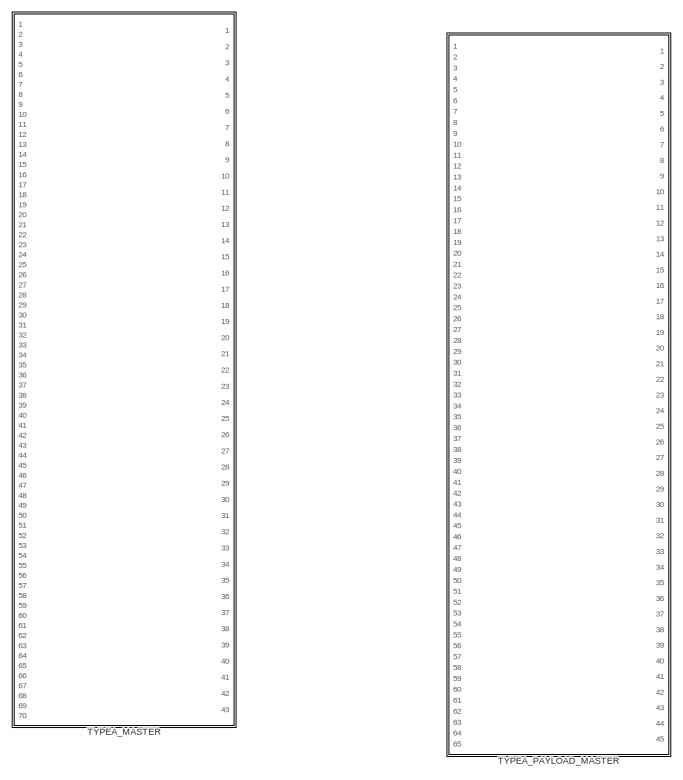
[diagram: root canvas - part 1/2, left side, full height]
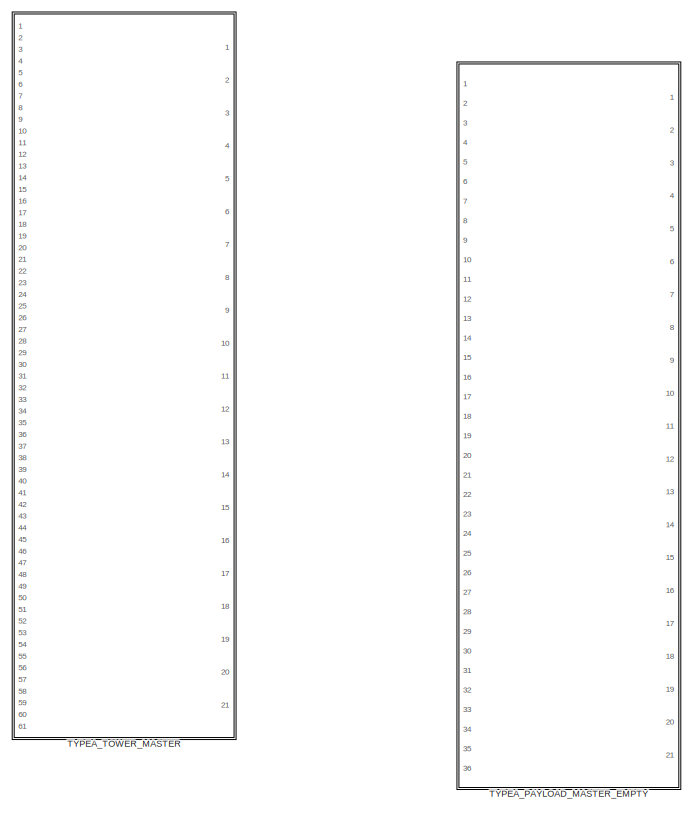
[diagram: root canvas - part 2/2, right side, full height]
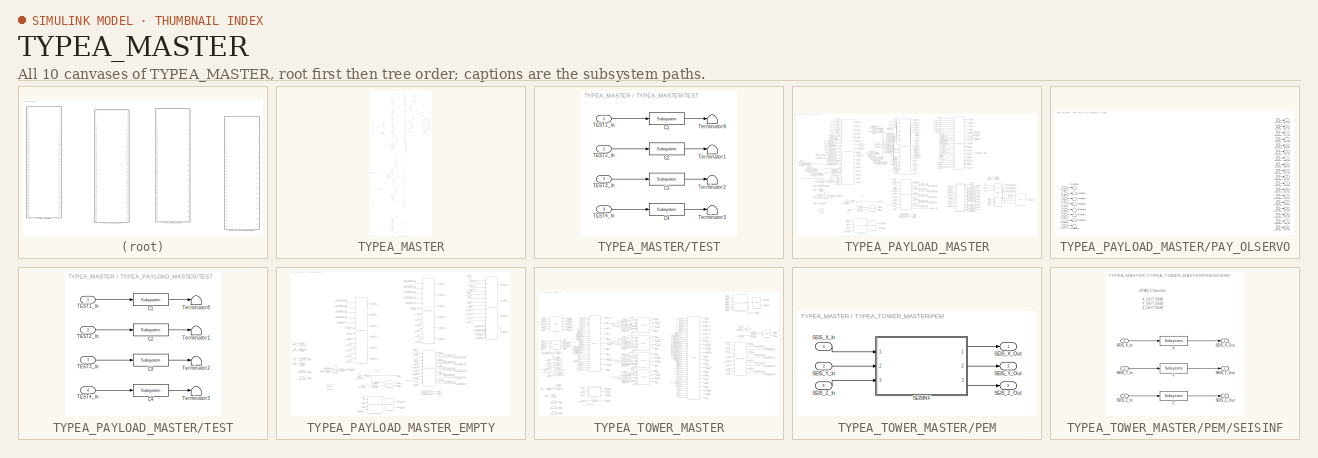
[diagram: thumbnail index - all 10 canvases of the model, root first then tree order]
MODEL TYPEA_MASTER
KIND library
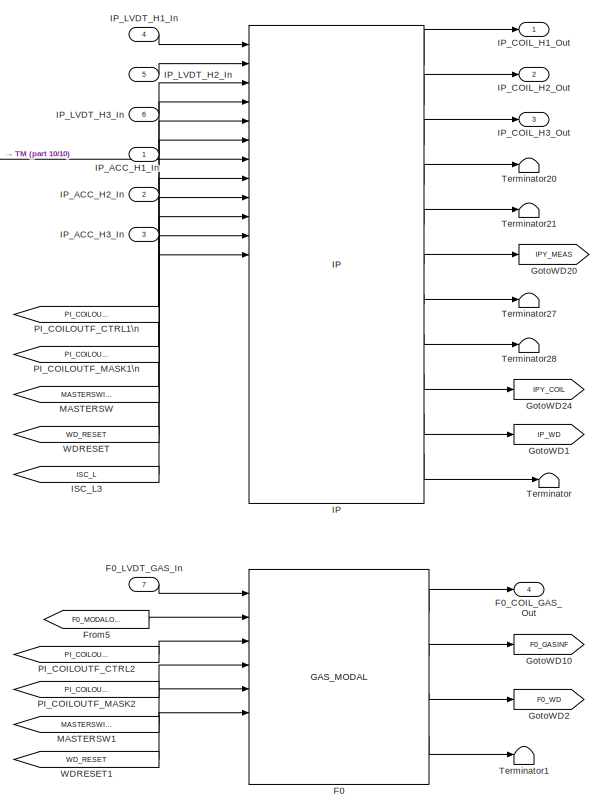
[diagram: TYPEA_MASTER - part 1/10, top center region]
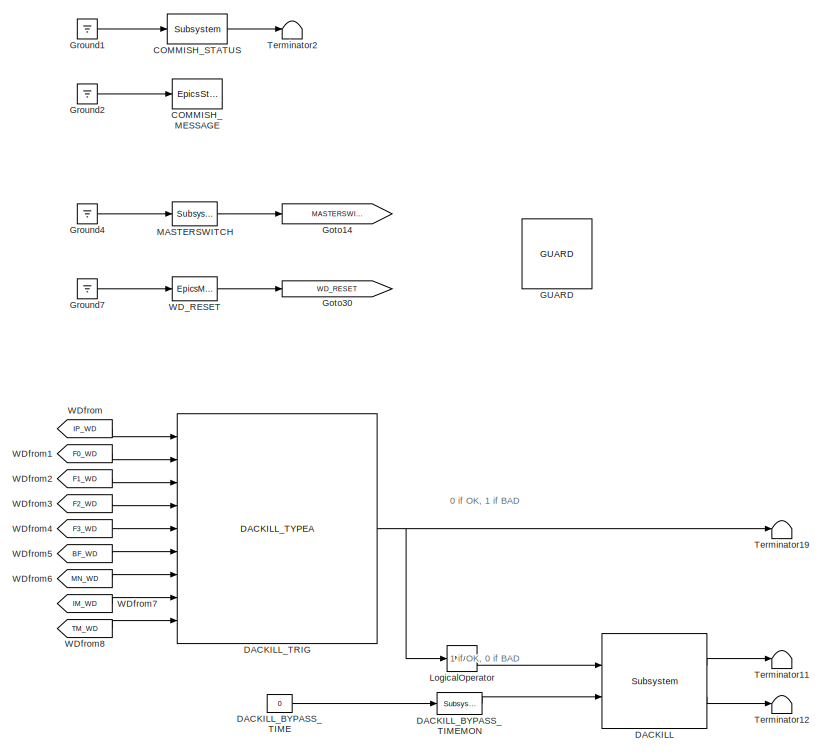
[diagram: TYPEA_MASTER - part 2/10, top right region]
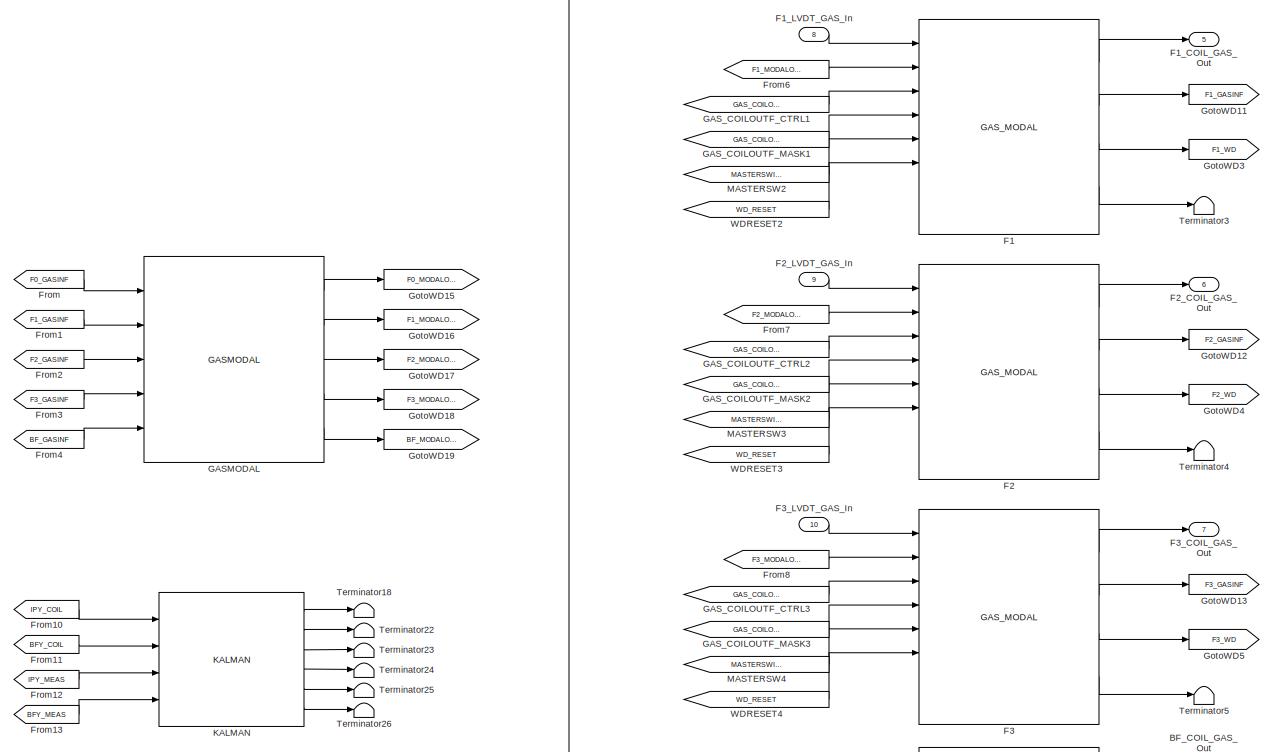
[diagram: TYPEA_MASTER - part 3/10, top left region]
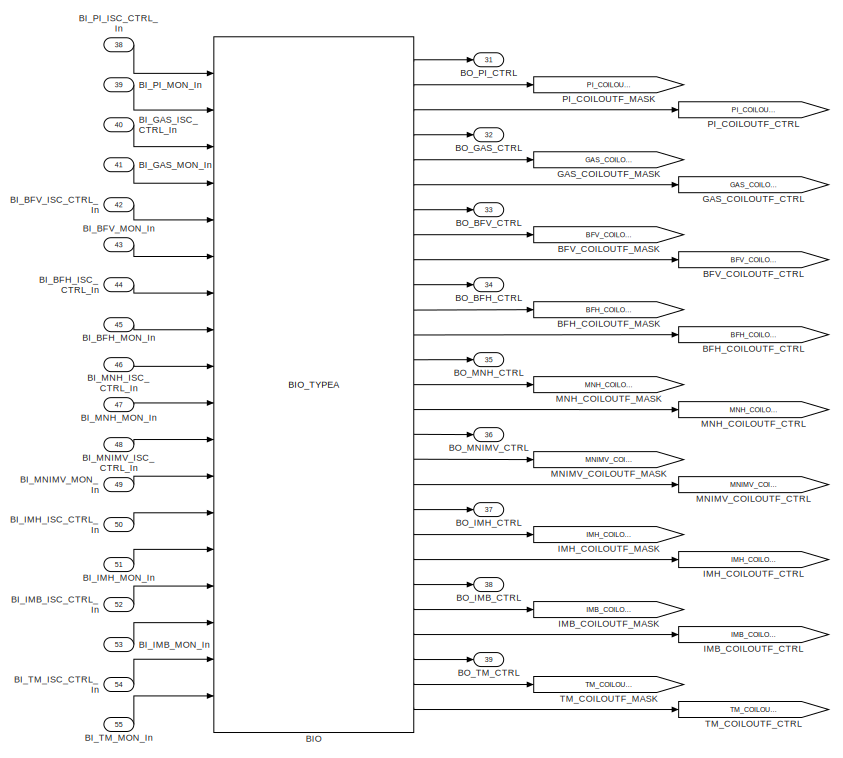
[diagram: TYPEA_MASTER - part 4/10, top right region]
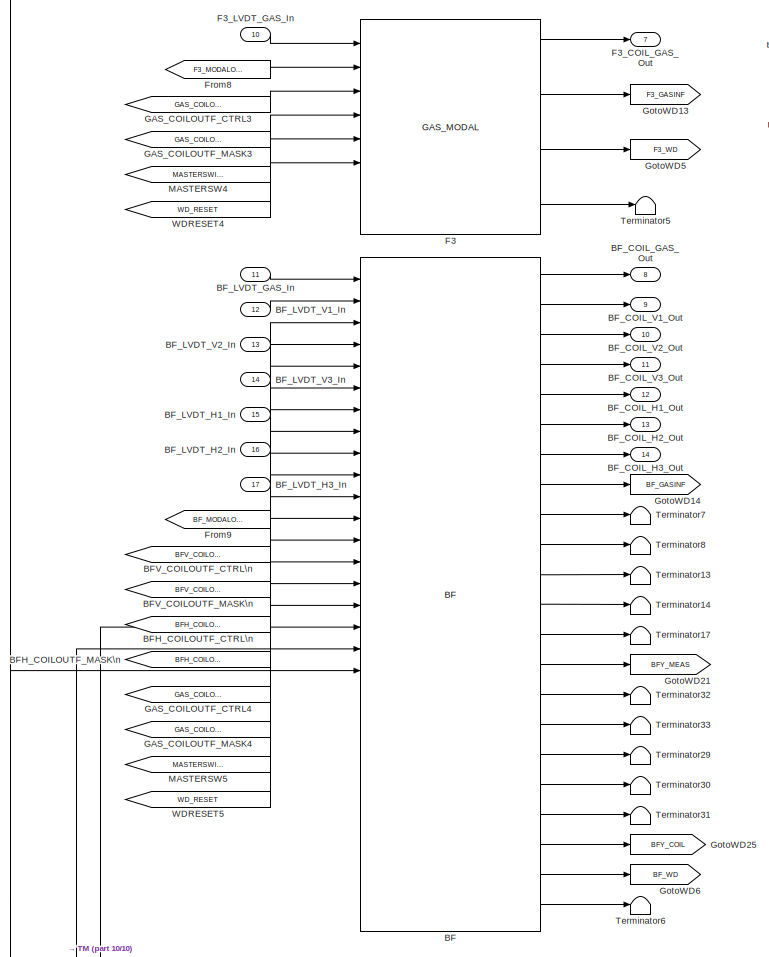
[diagram: TYPEA_MASTER - part 5/10, central region]
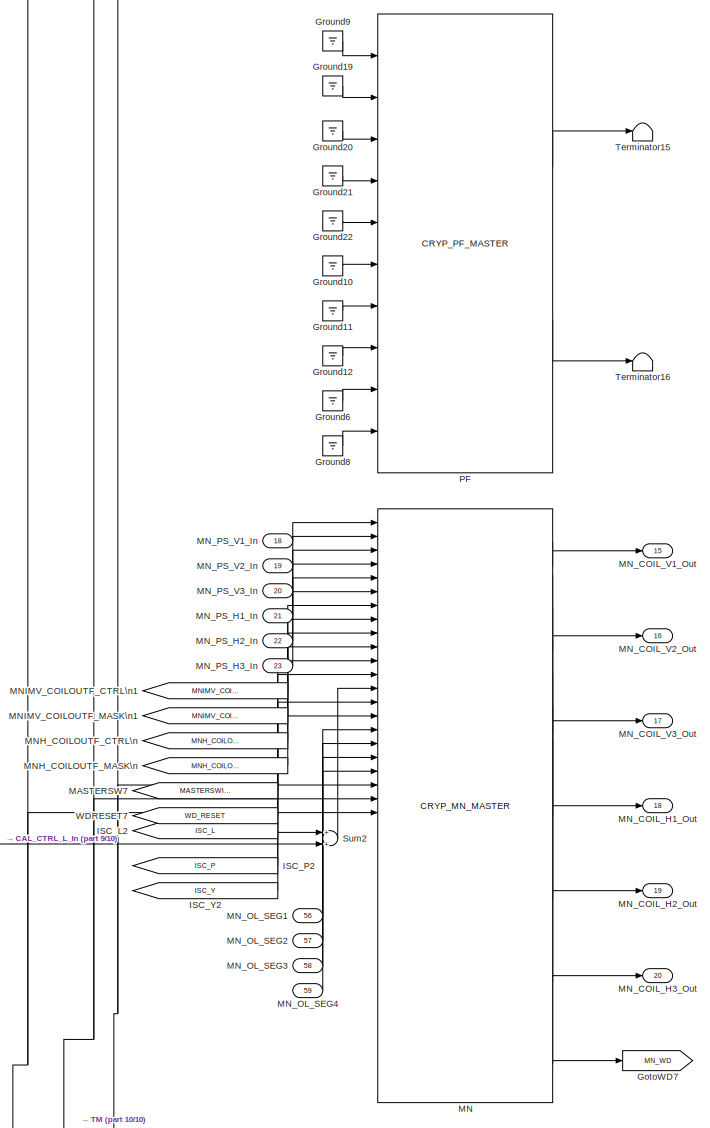
[diagram: TYPEA_MASTER - part 6/10, central region]
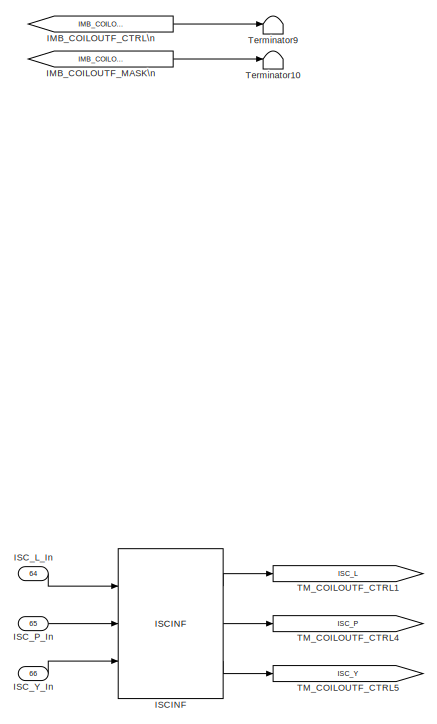
[diagram: TYPEA_MASTER - part 7/10, middle left region]
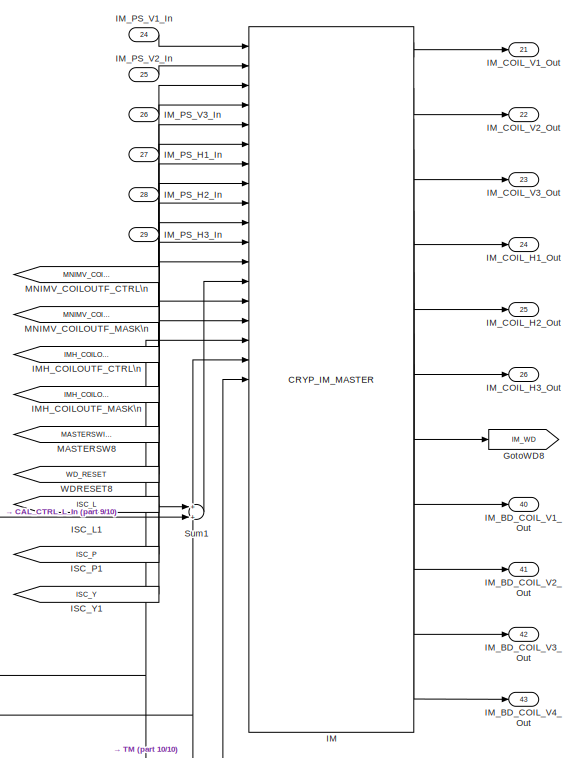
[diagram: TYPEA_MASTER - part 8/10, bottom center region]
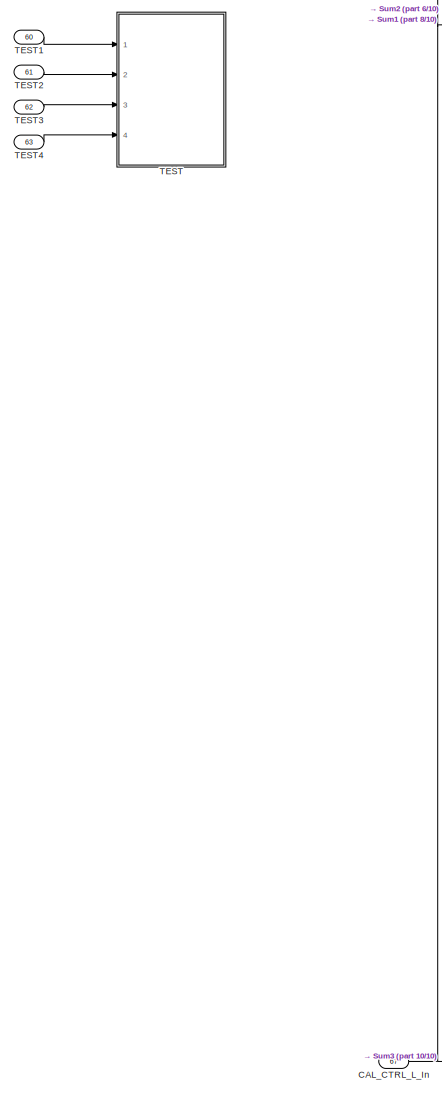
[diagram: TYPEA_MASTER - part 9/10, bottom left region]
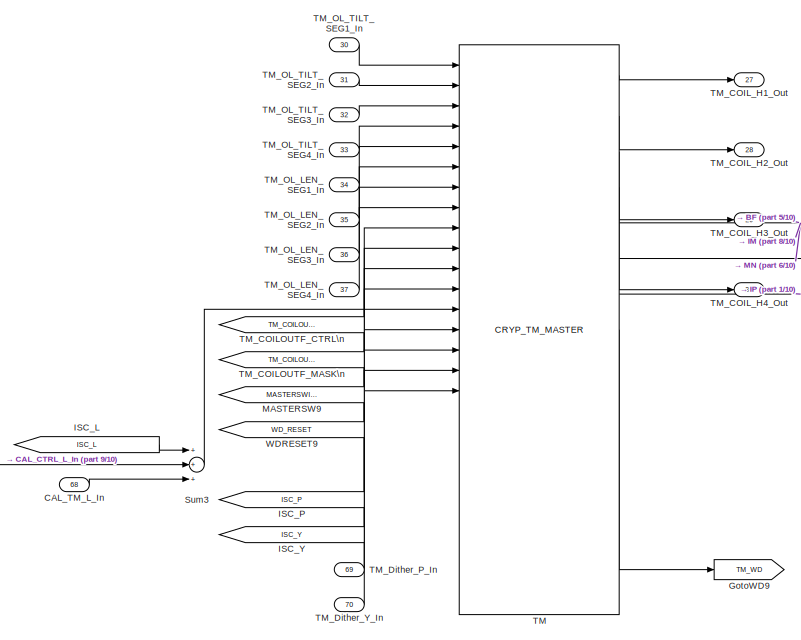
[diagram: TYPEA_MASTER - part 10/10, bottom center region]
BLOCK [SubSystem] TYPEA_MASTER
  Ports = [70, 43]
  RequestExecContextInheritance = off
  SID = 1
  Variant = off
BLOCK [Reference] TYPEA_MASTER/BF  REF=ADV_BF_MASTER/BF
  Ports = [30, 22]
  SID = 2873
  SourceBlock = ADV_BF_MASTER/BF
  SourceType = SubSystem
BLOCK [Goto] TYPEA_MASTER/BFH_COILOUTF_CTRL
  GotoTag = BFH_COILOUTF_CTRL
  SID = 179
BLOCK [From] TYPEA_MASTER/BFH_COILOUTF_CTRL\n
  CloseFcn = tagdialog Close
  GotoTag = BFH_COILOUTF_CTRL
  SID = 184
BLOCK [Goto] TYPEA_MASTER/BFH_COILOUTF_MASK
  GotoTag = BFH_COILOUTF_MASK
  SID = 180
BLOCK [From] TYPEA_MASTER/BFH_COILOUTF_MASK\n
  CloseFcn = tagdialog Close
  GotoTag = BFH_COILOUTF_MASK
  SID = 185
BLOCK [Goto] TYPEA_MASTER/BFV_COILOUTF_CTRL
  GotoTag = BFV_COILOUTF_CTRL
  SID = 148
BLOCK [From] TYPEA_MASTER/BFV_COILOUTF_CTRL\n
  CloseFcn = tagdialog Close
  GotoTag = BFV_COILOUTF_CTRL
  SID = 164
BLOCK [Goto] TYPEA_MASTER/BFV_COILOUTF_MASK
  GotoTag = BFV_COILOUTF_MASK
  SID = 149
BLOCK [From] TYPEA_MASTER/BFV_COILOUTF_MASK\n
  CloseFcn = tagdialog Close
  GotoTag = BFV_COILOUTF_MASK
  SID = 165
BLOCK [Outport] TYPEA_MASTER/BF_COIL_GAS_Out
  IconDisplay = Port number
  Port = 8
  SID = 79
BLOCK [Outport] TYPEA_MASTER/BF_COIL_H1_Out
  IconDisplay = Port number
  Port = 12
  SID = 84
BLOCK [Outport] TYPEA_MASTER/BF_COIL_H2_Out
  IconDisplay = Port number
  Port = 13
  SID = 85
BLOCK [Outport] TYPEA_MASTER/BF_COIL_H3_Out
  IconDisplay = Port number
  Port = 14
  SID = 86
BLOCK [Outport] TYPEA_MASTER/BF_COIL_V1_Out
  IconDisplay = Port number
  Port = 9
  SID = 80
BLOCK [Outport] TYPEA_MASTER/BF_COIL_V2_Out
  IconDisplay = Port number
  Port = 10
  SID = 81
BLOCK [Outport] TYPEA_MASTER/BF_COIL_V3_Out
  IconDisplay = Port number
  Port = 11
  SID = 82
BLOCK [Inport] TYPEA_MASTER/BF_LVDT_GAS_In
  IconDisplay = Port number
  Port = 11
  SID = 42
BLOCK [Inport] TYPEA_MASTER/BF_LVDT_H1_In
  IconDisplay = Port number
  Port = 15
  SID = 46
BLOCK [Inport] TYPEA_MASTER/BF_LVDT_H2_In
  IconDisplay = Port number
  Port = 16
  SID = 47
BLOCK [Inport] TYPEA_MASTER/BF_LVDT_H3_In
  IconDisplay = Port number
  Port = 17
  SID = 48
BLOCK [Inport] TYPEA_MASTER/BF_LVDT_V1_In
  IconDisplay = Port number
  Port = 12
  SID = 43
BLOCK [Inport] TYPEA_MASTER/BF_LVDT_V2_In
  IconDisplay = Port number
  Port = 13
  SID = 44
BLOCK [Inport] TYPEA_MASTER/BF_LVDT_V3_In
  IconDisplay = Port number
  Port = 14
  SID = 45
BLOCK [Reference] TYPEA_MASTER/BIO  REF=BIO_TYPEA_MASTER/BIO_TYPEA
  Ports = [18, 27]
  SID = 122
  SourceBlock = BIO_TYPEA_MASTER/BIO_TYPEA
  SourceType = SubSystem
BLOCK [Inport] TYPEA_MASTER/BI_BFH_ISC_CTRL_In
  IconDisplay = Port number
  Port = 44
  SID = 182
BLOCK [Inport] TYPEA_MASTER/BI_BFH_MON_In
  IconDisplay = Port number
  Port = 45
  SID = 183
BLOCK [Inport] TYPEA_MASTER/BI_BFV_ISC_CTRL_In
  IconDisplay = Port number
  Port = 42
  SID = 127
BLOCK [Inport] TYPEA_MASTER/BI_BFV_MON_In
  IconDisplay = Port number
  Port = 43
  SID = 128
BLOCK [Inport] TYPEA_MASTER/BI_GAS_ISC_CTRL_In
  IconDisplay = Port number
  Port = 40
  SID = 129
BLOCK [Inport] TYPEA_MASTER/BI_GAS_MON_In
  IconDisplay = Port number
  Port = 41
  SID = 130
BLOCK [Inport] TYPEA_MASTER/BI_IMB_ISC_CTRL_In
  IconDisplay = Port number
  Port = 52
  SID = 131
BLOCK [Inport] TYPEA_MASTER/BI_IMB_MON_In
  IconDisplay = Port number
  Port = 53
  SID = 132
BLOCK [Inport] TYPEA_MASTER/BI_IMH_ISC_CTRL_In
  IconDisplay = Port number
  Port = 50
  SID = 1981
BLOCK [Inport] TYPEA_MASTER/BI_IMH_MON_In
  IconDisplay = Port number
  Port = 51
  SID = 1982
BLOCK [Inport] TYPEA_MASTER/BI_MNH_ISC_CTRL_In
  IconDisplay = Port number
  Port = 46
  SID = 133
BLOCK [Inport] TYPEA_MASTER/BI_MNH_MON_In
  IconDisplay = Port number
  Port = 47
  SID = 134
BLOCK [Inport] TYPEA_MASTER/BI_MNIMV_ISC_CTRL_In
  IconDisplay = Port number
  Port = 48
  SID = 1977
BLOCK [Inport] TYPEA_MASTER/BI_MNIMV_MON_In
  IconDisplay = Port number
  Port = 49
  SID = 1978
BLOCK [Inport] TYPEA_MASTER/BI_PI_ISC_CTRL_In
  IconDisplay = Port number
  Port = 38
  SID = 125
BLOCK [Inport] TYPEA_MASTER/BI_PI_MON_In
  IconDisplay = Port number
  Port = 39
  SID = 126
BLOCK [Inport] TYPEA_MASTER/BI_TM_ISC_CTRL_In
  IconDisplay = Port number
  Port = 54
  SID = 123
BLOCK [Inport] TYPEA_MASTER/BI_TM_MON_In
  IconDisplay = Port number
  Port = 55
  SID = 124
BLOCK [Outport] TYPEA_MASTER/BO_BFH_CTRL
  IconDisplay = Port number
  Port = 34
  SID = 181
BLOCK [Outport] TYPEA_MASTER/BO_BFV_CTRL
  IconDisplay = Port number
  Port = 33
  SID = 138
BLOCK [Outport] TYPEA_MASTER/BO_GAS_CTRL
  IconDisplay = Port number
  Port = 32
  SID = 139
BLOCK [Outport] TYPEA_MASTER/BO_IMB_CTRL
  IconDisplay = Port number
  Port = 38
  SID = 137
BLOCK [Outport] TYPEA_MASTER/BO_IMH_CTRL
  IconDisplay = Port number
  Port = 37
  SID = 1986
BLOCK [Outport] TYPEA_MASTER/BO_MNH_CTRL
  IconDisplay = Port number
  Port = 35
  SID = 141
BLOCK [Outport] TYPEA_MASTER/BO_MNIMV_CTRL
  IconDisplay = Port number
  Port = 36
  SID = 1985
BLOCK [Outport] TYPEA_MASTER/BO_PI_CTRL
  IconDisplay = Port number
  Port = 31
  SID = 140
BLOCK [Outport] TYPEA_MASTER/BO_TM_CTRL
  IconDisplay = Port number
  Port = 39
  SID = 136
BLOCK [Inport] TYPEA_MASTER/CAL_CTRL_L_In
  IconDisplay = Port number
  Port = 67
  SID = 2955
BLOCK [Inport] TYPEA_MASTER/CAL_TM_L_In
  IconDisplay = Port number
  Port = 68
  SID = 2945
BLOCK [Reference] TYPEA_MASTER/COMMISH_MESSAGE  REF=cdsEpicsStringIn/EpicsStringIn
  AttributesFormatString = %<Tag>
  Description = cdsEpicsStringIn
  Ports = [1]
  SID = 25
  SourceBlock = cdsEpicsStringIn/EpicsStringIn
  SourceType = SubSystem
  Tag = cdsEpicsStringIn
BLOCK [Reference] TYPEA_MASTER/COMMISH_STATUS  REF=cdsEpicsBinIn/Subsystem
  AttributesFormatString = %<Tag>
  Description = Purpose:                                                                            \nCreate an EPICS binary (0 or 1) input channel to the FE realtime controls.          \n                                                                                    \nOperation:                                                                          \nOutputs value from an EPICS ai record. Value is binary i...<+252ch>  <repeated x8 — deduplicated; at blocks: COMMISH_STATUS, MASTERSWITCH, HIER_SWITCH, PAY_MASTERSWITCH>
  Ports = [1, 1]
  SID = 26
  SourceBlock = cdsEpicsBinIn/Subsystem
  SourceType = SubSystem
  Tag = cdsEpicsBinIn
BLOCK [Reference] TYPEA_MASTER/DACKILL  REF=cdsDacKill/Subsystem
  AttributesFormatString = %<Description>
  Description = cdsDacKill
  Ports = [2, 2]
  SID = 60
  SourceBlock = cdsDacKill/Subsystem
  SourceType = SubSystem
BLOCK [Constant] TYPEA_MASTER/DACKILL_BYPASS_TIME
  SID = 61
  Value = 0
BLOCK [Reference] TYPEA_MASTER/DACKILL_BYPASS_TIMEMON  REF=cdsEpicsOut/Subsystem
  AttributesFormatString = %<Tag>
  Description = Purpose:                                          \nOutput a FE signal to an EPICS channel.           \n                                                  \nOperation:                                        \nTakes input value and passes it to EPICS record.  \n                                                  \nUsage:                                            \nName the part with the desired EPICS...<+14ch>  <repeated x6 — deduplicated; at blocks: DACKILL_BYPASS_TIMEMON, PAY_DACKILL_BYPASS_TIMEMON, PAY_MASTERSW_MON, TWR_DACKILL_BYPASS_TIMEMON>
  Ports = [1, 1]
  SID = 62
  SourceBlock = cdsEpicsOut/Subsystem
  SourceType = SubSystem
  Tag = cdsEpicsOutput
BLOCK [Reference] TYPEA_MASTER/DACKILL_TRIG  REF=VIS_LIB/DACKILL_TYPEA
  Ports = [9, 1]
  SID = 59
  SourceBlock = VIS_LIB/DACKILL_TYPEA
  SourceType = SubSystem
BLOCK [Reference] TYPEA_MASTER/F0  REF=GAS_MODAL_MASTER/GAS_MODAL
  Ports = [8, 4]
  SID = 2458
  SourceBlock = GAS_MODAL_MASTER/GAS_MODAL
  SourceType = SubSystem
BLOCK [Outport] TYPEA_MASTER/F0_COIL_GAS_Out
  IconDisplay = Port number
  Port = 4
  SID = 74
BLOCK [Inport] TYPEA_MASTER/F0_LVDT_GAS_In
  IconDisplay = Port number
  Port = 7
  SID = 38
BLOCK [Reference] TYPEA_MASTER/F1  REF=GAS_MODAL_MASTER/GAS_MODAL
  Ports = [8, 4]
  SID = 2459
  SourceBlock = GAS_MODAL_MASTER/GAS_MODAL
  SourceType = SubSystem
BLOCK [Outport] TYPEA_MASTER/F1_COIL_GAS_Out
  IconDisplay = Port number
  Port = 5
  SID = 75
BLOCK [Inport] TYPEA_MASTER/F1_LVDT_GAS_In
  IconDisplay = Port number
  Port = 8
  SID = 39
BLOCK [Reference] TYPEA_MASTER/F2  REF=GAS_MODAL_MASTER/GAS_MODAL
  Ports = [8, 4]
  SID = 2460
  SourceBlock = GAS_MODAL_MASTER/GAS_MODAL
  SourceType = SubSystem
BLOCK [Outport] TYPEA_MASTER/F2_COIL_GAS_Out
  IconDisplay = Port number
  Port = 6
  SID = 76
BLOCK [Inport] TYPEA_MASTER/F2_LVDT_GAS_In
  IconDisplay = Port number
  Port = 9
  SID = 40
BLOCK [Reference] TYPEA_MASTER/F3  REF=GAS_MODAL_MASTER/GAS_MODAL
  Ports = [8, 4]
  SID = 2461
  SourceBlock = GAS_MODAL_MASTER/GAS_MODAL
  SourceType = SubSystem
BLOCK [Outport] TYPEA_MASTER/F3_COIL_GAS_Out
  IconDisplay = Port number
  Port = 7
  SID = 77
BLOCK [Inport] TYPEA_MASTER/F3_LVDT_GAS_In
  IconDisplay = Port number
  Port = 10
  SID = 41
BLOCK [From] TYPEA_MASTER/From
  GotoTag = F0_GASINF
  SID = 2857
BLOCK [From] TYPEA_MASTER/From1
  GotoTag = F1_GASINF
  SID = 2858
BLOCK [From] TYPEA_MASTER/From10
  GotoTag = IPY_COIL
  SID = 2889
BLOCK [From] TYPEA_MASTER/From11
  GotoTag = BFY_COIL
  SID = 2890
BLOCK [From] TYPEA_MASTER/From12
  GotoTag = IPY_MEAS
  SID = 2914
BLOCK [From] TYPEA_MASTER/From13
  GotoTag = BFY_MEAS
  SID = 2915
BLOCK [From] TYPEA_MASTER/From2
  GotoTag = F2_GASINF
  SID = 2859
BLOCK [From] TYPEA_MASTER/From3
  GotoTag = F3_GASINF
  SID = 2860
BLOCK [From] TYPEA_MASTER/From4
  GotoTag = BF_GASINF
  SID = 2861
BLOCK [From] TYPEA_MASTER/From5
  GotoTag = F0_MODALOUT
  SID = 2868
BLOCK [From] TYPEA_MASTER/From6
  GotoTag = F1_MODALOUT
  SID = 2869
BLOCK [From] TYPEA_MASTER/From7
  GotoTag = F2_MODALOUT
  SID = 2870
BLOCK [From] TYPEA_MASTER/From8
  GotoTag = F3_MODALOUT
  SID = 2871
BLOCK [From] TYPEA_MASTER/From9
  GotoTag = BF_MODALOUT
  SID = 2872
BLOCK [Reference] TYPEA_MASTER/GASMODAL  REF=TYPEA_GAS_MODAL_MASTER/GASMODAL
  Ports = [5, 5]
  SID = 2457
  SourceBlock = TYPEA_GAS_MODAL_MASTER/GASMODAL
  SourceType = SubSystem
BLOCK [Goto] TYPEA_MASTER/GAS_COILOUTF_CTRL
  GotoTag = GAS_COILOUTF_CTRL
  SID = 142
BLOCK [From] TYPEA_MASTER/GAS_COILOUTF_CTRL1
  CloseFcn = tagdialog Close
  GotoTag = GAS_COILOUTF_CTRL
  SID = 158
BLOCK [From] TYPEA_MASTER/GAS_COILOUTF_CTRL2
  CloseFcn = tagdialog Close
  GotoTag = GAS_COILOUTF_CTRL
  SID = 160
BLOCK [From] TYPEA_MASTER/GAS_COILOUTF_CTRL3
  CloseFcn = tagdialog Close
  GotoTag = GAS_COILOUTF_CTRL
  SID = 162
BLOCK [From] TYPEA_MASTER/GAS_COILOUTF_CTRL4
  CloseFcn = tagdialog Close
  GotoTag = GAS_COILOUTF_CTRL
  SID = 192
BLOCK [Goto] TYPEA_MASTER/GAS_COILOUTF_MASK
  GotoTag = GAS_COILOUTF_MASK
  SID = 143
BLOCK [From] TYPEA_MASTER/GAS_COILOUTF_MASK1
  CloseFcn = tagdialog Close
  GotoTag = GAS_COILOUTF_MASK
  SID = 159
BLOCK [From] TYPEA_MASTER/GAS_COILOUTF_MASK2
  CloseFcn = tagdialog Close
  GotoTag = GAS_COILOUTF_MASK
  SID = 161
BLOCK [From] TYPEA_MASTER/GAS_COILOUTF_MASK3
  CloseFcn = tagdialog Close
  GotoTag = GAS_COILOUTF_MASK
  SID = 163
BLOCK [From] TYPEA_MASTER/GAS_COILOUTF_MASK4
  CloseFcn = tagdialog Close
  GotoTag = GAS_COILOUTF_MASK
  SID = 193
BLOCK [Reference] TYPEA_MASTER/GUARD  REF=ISC_common/GUARD
  Ports = []
  SID = 27
  SourceBlock = ISC_common/GUARD
  SourceType = SubSystem
BLOCK [Goto] TYPEA_MASTER/Goto14
  GotoTag = MASTERSWITCH
  SID = 28
BLOCK [Goto] TYPEA_MASTER/Goto30
  GotoTag = WD_RESET
  SID = 29
BLOCK [Goto] TYPEA_MASTER/GotoWD1
  GotoTag = IP_WD
  SID = 24
BLOCK [Goto] TYPEA_MASTER/GotoWD10
  GotoTag = F0_GASINF
  SID = 2852
BLOCK [Goto] TYPEA_MASTER/GotoWD11
  GotoTag = F1_GASINF
  SID = 2853
BLOCK [Goto] TYPEA_MASTER/GotoWD12
  GotoTag = F2_GASINF
  SID = 2854
BLOCK [Goto] TYPEA_MASTER/GotoWD13
  GotoTag = F3_GASINF
  SID = 2855
BLOCK [Goto] TYPEA_MASTER/GotoWD14
  GotoTag = BF_GASINF
  SID = 2856
BLOCK [Goto] TYPEA_MASTER/GotoWD15
  GotoTag = F0_MODALOUT
  SID = 2863
BLOCK [Goto] TYPEA_MASTER/GotoWD16
  GotoTag = F1_MODALOUT
  SID = 2864
BLOCK [Goto] TYPEA_MASTER/GotoWD17
  GotoTag = F2_MODALOUT
  SID = 2865
BLOCK [Goto] TYPEA_MASTER/GotoWD18
  GotoTag = F3_MODALOUT
  SID = 2866
BLOCK [Goto] TYPEA_MASTER/GotoWD19
  GotoTag = BF_MODALOUT
  SID = 2867
BLOCK [Goto] TYPEA_MASTER/GotoWD2
  GotoTag = F0_WD
  SID = 69
BLOCK [Goto] TYPEA_MASTER/GotoWD20
  GotoTag = IPY_MEAS
  SID = 2887
BLOCK [Goto] TYPEA_MASTER/GotoWD21
  GotoTag = BFY_MEAS
  SID = 2888
BLOCK [Goto] TYPEA_MASTER/GotoWD24
  GotoTag = IPY_COIL
  SID = 2899
BLOCK [Goto] TYPEA_MASTER/GotoWD25
  GotoTag = BFY_COIL
  SID = 2900
BLOCK [Goto] TYPEA_MASTER/GotoWD3
  GotoTag = F1_WD
  SID = 70
BLOCK [Goto] TYPEA_MASTER/GotoWD4
  GotoTag = F2_WD
  SID = 71
BLOCK [Goto] TYPEA_MASTER/GotoWD5
  GotoTag = F3_WD
  SID = 72
BLOCK [Goto] TYPEA_MASTER/GotoWD6
  GotoTag = BF_WD
  SID = 73
BLOCK [Goto] TYPEA_MASTER/GotoWD7
  GotoTag = MN_WD
  SID = 116
BLOCK [Goto] TYPEA_MASTER/GotoWD8
  GotoTag = IM_WD
  SID = 117
BLOCK [Goto] TYPEA_MASTER/GotoWD9
  GotoTag = TM_WD
  SID = 118
BLOCK [Ground] TYPEA_MASTER/Ground1
  SID = 30
BLOCK [Ground] TYPEA_MASTER/Ground10
  SID = 1943
BLOCK [Ground] TYPEA_MASTER/Ground11
  SID = 1944
BLOCK [Ground] TYPEA_MASTER/Ground12
  SID = 1945
BLOCK [Ground] TYPEA_MASTER/Ground19
  SID = 1933
BLOCK [Ground] TYPEA_MASTER/Ground2
  SID = 31
BLOCK [Ground] TYPEA_MASTER/Ground20
  SID = 1946
BLOCK [Ground] TYPEA_MASTER/Ground21
  SID = 1947
BLOCK [Ground] TYPEA_MASTER/Ground22
  SID = 1948
BLOCK [Ground] TYPEA_MASTER/Ground4
  SID = 32
BLOCK [Ground] TYPEA_MASTER/Ground6
  SID = 1949
BLOCK [Ground] TYPEA_MASTER/Ground7
  SID = 33
BLOCK [Ground] TYPEA_MASTER/Ground8
  SID = 1950
BLOCK [Ground] TYPEA_MASTER/Ground9
  SID = 1939
BLOCK [Reference] TYPEA_MASTER/IM  REF=CRYP_IM_MASTER/CRYP_IM_MASTER
  Description = SIXOSEMSTAGE_FACE_MASTER
  Ports = [35, 22]
  SID = 1874
  SourceBlock = CRYP_IM_MASTER/CRYP_IM_MASTER
  SourceType = SubSystem
BLOCK [Goto] TYPEA_MASTER/IMB_COILOUTF_CTRL
  GotoTag = IMB_COILOUTF_CTRL
  SID = 145
BLOCK [From] TYPEA_MASTER/IMB_COILOUTF_CTRL\n
  CloseFcn = tagdialog Close
  GotoTag = IMB_COILOUTF_CTRL
  SID = 168
BLOCK [Goto] TYPEA_MASTER/IMB_COILOUTF_MASK
  GotoTag = IMB_COILOUTF_MASK
  SID = 147
BLOCK [From] TYPEA_MASTER/IMB_COILOUTF_MASK\n
  CloseFcn = tagdialog Close
  GotoTag = IMB_COILOUTF_MASK
  SID = 169
BLOCK [Goto] TYPEA_MASTER/IMH_COILOUTF_CTRL
  GotoTag = IMH_COILOUTF_CTRL
  SID = 1989
BLOCK [From] TYPEA_MASTER/IMH_COILOUTF_CTRL\n
  CloseFcn = tagdialog Close
  GotoTag = IMH_COILOUTF_CTRL
  SID = 1995
BLOCK [Goto] TYPEA_MASTER/IMH_COILOUTF_MASK
  GotoTag = IMH_COILOUTF_MASK
  SID = 1990
BLOCK [From] TYPEA_MASTER/IMH_COILOUTF_MASK\n
  CloseFcn = tagdialog Close
  GotoTag = IMH_COILOUTF_MASK
  SID = 1996
BLOCK [Outport] TYPEA_MASTER/IM_BD_COIL_V1_Out
  IconDisplay = Port number
  Port = 40
  SID = 2950
BLOCK [Outport] TYPEA_MASTER/IM_BD_COIL_V2_Out
  IconDisplay = Port number
  Port = 41
  SID = 2951
BLOCK [Outport] TYPEA_MASTER/IM_BD_COIL_V3_Out
  IconDisplay = Port number
  Port = 42
  SID = 2952
BLOCK [Outport] TYPEA_MASTER/IM_BD_COIL_V4_Out
  IconDisplay = Port number
  Port = 43
  SID = 2953
BLOCK [Outport] TYPEA_MASTER/IM_COIL_H1_Out
  IconDisplay = Port number
  Port = 24
  SID = 1908
BLOCK [Outport] TYPEA_MASTER/IM_COIL_H2_Out
  IconDisplay = Port number
  Port = 25
  SID = 1909
BLOCK [Outport] TYPEA_MASTER/IM_COIL_H3_Out
  IconDisplay = Port number
  Port = 26
  SID = 1910
BLOCK [Outport] TYPEA_MASTER/IM_COIL_V1_Out
  IconDisplay = Port number
  Port = 21
  SID = 1905
BLOCK [Outport] TYPEA_MASTER/IM_COIL_V2_Out
  IconDisplay = Port number
  Port = 22
  SID = 1906
BLOCK [Outport] TYPEA_MASTER/IM_COIL_V3_Out
  IconDisplay = Port number
  Port = 23
  SID = 1907
BLOCK [Inport] TYPEA_MASTER/IM_PS_H1_In
  IconDisplay = Port number
  Port = 27
  SID = 1896
BLOCK [Inport] TYPEA_MASTER/IM_PS_H2_In
  IconDisplay = Port number
  Port = 28
  SID = 1897
BLOCK [Inport] TYPEA_MASTER/IM_PS_H3_In
  IconDisplay = Port number
  Port = 29
  SID = 1898
BLOCK [Inport] TYPEA_MASTER/IM_PS_V1_In
  IconDisplay = Port number
  Port = 24
  SID = 1899
BLOCK [Inport] TYPEA_MASTER/IM_PS_V2_In
  IconDisplay = Port number
  Port = 25
  SID = 1900
BLOCK [Inport] TYPEA_MASTER/IM_PS_V3_In
  IconDisplay = Port number
  Port = 26
  SID = 1895
BLOCK [Reference] TYPEA_MASTER/IP  REF=ADV_IP_MASTER/IP
  Ports = [24, 11]
  SID = 2880
  SourceBlock = ADV_IP_MASTER/IP
  SourceType = SubSystem
BLOCK [Inport] TYPEA_MASTER/IP_ACC_H1_In
  IconDisplay = Port number
  SID = 16
BLOCK [Inport] TYPEA_MASTER/IP_ACC_H2_In
  IconDisplay = Port number
  Port = 2
  SID = 17
BLOCK [Inport] TYPEA_MASTER/IP_ACC_H3_In
  IconDisplay = Port number
  Port = 3
  SID = 18
BLOCK [Outport] TYPEA_MASTER/IP_COIL_H1_Out
  IconDisplay = Port number
  SID = 21
BLOCK [Outport] TYPEA_MASTER/IP_COIL_H2_Out
  IconDisplay = Port number
  Port = 2
  SID = 22
BLOCK [Outport] TYPEA_MASTER/IP_COIL_H3_Out
  IconDisplay = Port number
  Port = 3
  SID = 23
BLOCK [Inport] TYPEA_MASTER/IP_LVDT_H1_In
  IconDisplay = Port number
  Port = 4
  SID = 13
BLOCK [Inport] TYPEA_MASTER/IP_LVDT_H2_In
  IconDisplay = Port number
  Port = 5
  SID = 14
BLOCK [Inport] TYPEA_MASTER/IP_LVDT_H3_In
  IconDisplay = Port number
  Port = 6
  SID = 15
BLOCK [Reference] TYPEA_MASTER/ISCINF  REF=VIS_LIB/ISCINF
  Ports = [3, 3]
  SID = 2002
  SourceBlock = VIS_LIB/ISCINF
  SourceType = SubSystem
BLOCK [From] TYPEA_MASTER/ISC_L
  CloseFcn = tagdialog Close
  GotoTag = ISC_L
  SID = 2007
BLOCK [From] TYPEA_MASTER/ISC_L1
  CloseFcn = tagdialog Close
  GotoTag = ISC_L
  SID = 2013
BLOCK [From] TYPEA_MASTER/ISC_L2
  CloseFcn = tagdialog Close
  GotoTag = ISC_L
  SID = 2016
BLOCK [From] TYPEA_MASTER/ISC_L3
  CloseFcn = tagdialog Close
  GotoTag = ISC_L
  SID = 2954
BLOCK [Inport] TYPEA_MASTER/ISC_L_In
  IconDisplay = Port number
  Port = 64
  SID = 2942
BLOCK [From] TYPEA_MASTER/ISC_P
  CloseFcn = tagdialog Close
  GotoTag = ISC_P
  SID = 2011
BLOCK [From] TYPEA_MASTER/ISC_P1
  CloseFcn = tagdialog Close
  GotoTag = ISC_P
  SID = 2014
BLOCK [From] TYPEA_MASTER/ISC_P2
  CloseFcn = tagdialog Close
  GotoTag = ISC_P
  SID = 2017
BLOCK [Inport] TYPEA_MASTER/ISC_P_In
  IconDisplay = Port number
  Port = 65
  SID = 2965
BLOCK [From] TYPEA_MASTER/ISC_Y
  CloseFcn = tagdialog Close
  GotoTag = ISC_Y
  SID = 2012
BLOCK [From] TYPEA_MASTER/ISC_Y1
  CloseFcn = tagdialog Close
  GotoTag = ISC_Y
  SID = 2015
BLOCK [From] TYPEA_MASTER/ISC_Y2
  CloseFcn = tagdialog Close
  GotoTag = ISC_Y
  SID = 2018
BLOCK [Inport] TYPEA_MASTER/ISC_Y_In
  IconDisplay = Port number
  Port = 66
  SID = 2966
BLOCK [Reference] TYPEA_MASTER/KALMAN  REF=KALMAN_MASTER/KALMAN
  Ports = [4, 6]
  SID = 2884
  SourceBlock = KALMAN_MASTER/KALMAN
  SourceType = SubSystem
BLOCK [Logic] TYPEA_MASTER/LogicalOperator
  AllPortsSameDT = off
  Operator = NOT
  OutDataTypeStr = boolean
  Ports = [1, 1]
  SID = 63
BLOCK [From] TYPEA_MASTER/MASTERSW
  CloseFcn = tagdialog Close
  GotoTag = MASTERSWITCH
  SID = 19
BLOCK [From] TYPEA_MASTER/MASTERSW1
  CloseFcn = tagdialog Close
  GotoTag = MASTERSWITCH
  SID = 49
BLOCK [From] TYPEA_MASTER/MASTERSW2
  CloseFcn = tagdialog Close
  GotoTag = MASTERSWITCH
  SID = 51
BLOCK [From] TYPEA_MASTER/MASTERSW3
  CloseFcn = tagdialog Close
  GotoTag = MASTERSWITCH
  SID = 53
BLOCK [From] TYPEA_MASTER/MASTERSW4
  CloseFcn = tagdialog Close
  GotoTag = MASTERSWITCH
  SID = 55
BLOCK [From] TYPEA_MASTER/MASTERSW5
  CloseFcn = tagdialog Close
  GotoTag = MASTERSWITCH
  SID = 57
BLOCK [From] TYPEA_MASTER/MASTERSW7
  CloseFcn = tagdialog Close
  GotoTag = MASTERSWITCH
  SID = 1921
BLOCK [From] TYPEA_MASTER/MASTERSW8
  CloseFcn = tagdialog Close
  GotoTag = MASTERSWITCH
  SID = 1893
BLOCK [From] TYPEA_MASTER/MASTERSW9
  CloseFcn = tagdialog Close
  GotoTag = MASTERSWITCH
  SID = 1961
BLOCK [Reference] TYPEA_MASTER/MASTERSWITCH  REF=cdsEpicsBinIn/Subsystem
  AttributesFormatString = %<Tag>
  Ports = [1, 1]
  SID = 34
  SourceBlock = cdsEpicsBinIn/Subsystem
  SourceType = SubSystem
  Tag = cdsEpicsBinIn
BLOCK [Reference] TYPEA_MASTER/MN  REF=CRYP_MN_MASTER/CRYP_MN_MASTER
  Description = SIXOSEMSTAGE_FACE_MASTER
  Ports = [42, 17]
  SID = 1922
  SourceBlock = CRYP_MN_MASTER/CRYP_MN_MASTER
  SourceType = SubSystem
BLOCK [Goto] TYPEA_MASTER/MNH_COILOUTF_CTRL
  GotoTag = MNH_COILOUTF_CTRL
  SID = 150
BLOCK [From] TYPEA_MASTER/MNH_COILOUTF_CTRL\n
  CloseFcn = tagdialog Close
  GotoTag = MNH_COILOUTF_CTRL
  SID = 166
BLOCK [Goto] TYPEA_MASTER/MNH_COILOUTF_MASK
  GotoTag = MNH_COILOUTF_MASK
  SID = 151
BLOCK [From] TYPEA_MASTER/MNH_COILOUTF_MASK\n
  CloseFcn = tagdialog Close
  GotoTag = MNH_COILOUTF_MASK
  SID = 167
BLOCK [Goto] TYPEA_MASTER/MNIMV_COILOUTF_CTRL
  GotoTag = MNIMV_COILOUTF_CTRL
  SID = 1987
BLOCK [From] TYPEA_MASTER/MNIMV_COILOUTF_CTRL\n
  CloseFcn = tagdialog Close
  GotoTag = MNIMV_COILOUTF_CTRL
  SID = 1991
BLOCK [From] TYPEA_MASTER/MNIMV_COILOUTF_CTRL\n1
  CloseFcn = tagdialog Close
  GotoTag = MNIMV_COILOUTF_CTRL
  SID = 2041
BLOCK [Goto] TYPEA_MASTER/MNIMV_COILOUTF_MASK
  GotoTag = MNIMV_COILOUTF_MASK
  SID = 1988
BLOCK [From] TYPEA_MASTER/MNIMV_COILOUTF_MASK\n
  CloseFcn = tagdialog Close
  GotoTag = MNIMV_COILOUTF_MASK
  SID = 1992
BLOCK [From] TYPEA_MASTER/MNIMV_COILOUTF_MASK\n1
  CloseFcn = tagdialog Close
  GotoTag = MNIMV_COILOUTF_MASK
  SID = 2042
BLOCK [Outport] TYPEA_MASTER/MN_COIL_H1_Out
  IconDisplay = Port number
  Port = 18
  SID = 1969
BLOCK [Outport] TYPEA_MASTER/MN_COIL_H2_Out
  IconDisplay = Port number
  Port = 19
  SID = 1970
BLOCK [Outport] TYPEA_MASTER/MN_COIL_H3_Out
  IconDisplay = Port number
  Port = 20
  SID = 1971
BLOCK [Outport] TYPEA_MASTER/MN_COIL_V1_Out
  IconDisplay = Port number
  Port = 15
  SID = 1966
BLOCK [Outport] TYPEA_MASTER/MN_COIL_V2_Out
  IconDisplay = Port number
  Port = 16
  SID = 1967
BLOCK [Outport] TYPEA_MASTER/MN_COIL_V3_Out
  IconDisplay = Port number
  Port = 17
  SID = 1968
BLOCK [Inport] TYPEA_MASTER/MN_OL_SEG1
  IconDisplay = Port number
  Port = 56
  SID = 2033
BLOCK [Inport] TYPEA_MASTER/MN_OL_SEG2
  IconDisplay = Port number
  Port = 57
  SID = 2034
BLOCK [Inport] TYPEA_MASTER/MN_OL_SEG3
  IconDisplay = Port number
  Port = 58
  SID = 2035
BLOCK [Inport] TYPEA_MASTER/MN_OL_SEG4
  IconDisplay = Port number
  Port = 59
  SID = 2036
BLOCK [Inport] TYPEA_MASTER/MN_PS_H1_In
  IconDisplay = Port number
  Port = 21
  SID = 1914
BLOCK [Inport] TYPEA_MASTER/MN_PS_H2_In
  IconDisplay = Port number
  Port = 22
  SID = 1915
BLOCK [Inport] TYPEA_MASTER/MN_PS_H3_In
  IconDisplay = Port number
  Port = 23
  SID = 1916
BLOCK [Inport] TYPEA_MASTER/MN_PS_V1_In
  IconDisplay = Port number
  Port = 18
  SID = 1911
BLOCK [Inport] TYPEA_MASTER/MN_PS_V2_In
  IconDisplay = Port number
  Port = 19
  SID = 1912
BLOCK [Inport] TYPEA_MASTER/MN_PS_V3_In
  IconDisplay = Port number
  Port = 20
  SID = 1913
BLOCK [Reference] TYPEA_MASTER/PF  REF=CRYP_PF_MASTER/CRYP_PF_MASTER
  Ports = [10, 2]
  SID = 1940
  SourceBlock = CRYP_PF_MASTER/CRYP_PF_MASTER
  SourceType = SubSystem
BLOCK [Goto] TYPEA_MASTER/PI_COILOUTF_CTRL
  GotoTag = PI_COILOUTF_CTRL
  SID = 152
BLOCK [From] TYPEA_MASTER/PI_COILOUTF_CTRL1\n
  CloseFcn = tagdialog Close
  GotoTag = PI_COILOUTF_CTRL
  SID = 154
BLOCK [From] TYPEA_MASTER/PI_COILOUTF_CTRL2
  CloseFcn = tagdialog Close
  GotoTag = PI_COILOUTF_CTRL
  SID = 190
BLOCK [Goto] TYPEA_MASTER/PI_COILOUTF_MASK
  GotoTag = PI_COILOUTF_MASK
  SID = 153
BLOCK [From] TYPEA_MASTER/PI_COILOUTF_MASK1\n
  CloseFcn = tagdialog Close
  GotoTag = PI_COILOUTF_MASK
  SID = 155
BLOCK [From] TYPEA_MASTER/PI_COILOUTF_MASK2
  CloseFcn = tagdialog Close
  GotoTag = PI_COILOUTF_MASK
  SID = 191
BLOCK [Sum] TYPEA_MASTER/Sum1
  InputSameDT = off
  OutDataTypeStr = Inherit: Inherit via internal rule
  Ports = [2, 1]
  SID = 2958
  SaturateOnIntegerOverflow = off
BLOCK [Sum] TYPEA_MASTER/Sum2
  InputSameDT = off
  OutDataTypeStr = Inherit: Inherit via internal rule
  Ports = [2, 1]
  SID = 2960
  SaturateOnIntegerOverflow = off
BLOCK [Sum] TYPEA_MASTER/Sum3
  InputSameDT = off
  Inputs = +++
  OutDataTypeStr = Inherit: Inherit via internal rule
  Ports = [3, 1]
  SID = 2962
  SaturateOnIntegerOverflow = off
BLOCK [SubSystem] TYPEA_MASTER/TEST
  Ports = [4]
  RequestExecContextInheritance = off
  SID = 2045
  Variant = off
BLOCK [Reference] TYPEA_MASTER/TEST/C1  REF=cdsFilt/Subsystem
  AttributesFormatString = %<Tag>
  Description = Purpose:                                                                                                                                                                                                                                  \nStandard CDS IIR filter module.                                                                                                                                     ...<+1302ch>  <repeated x12 — deduplicated; at blocks: C1, C2, C3, C4, GIF_ARM_L, X, Y, Z>
  Ports = [1, 1]
  SID = 2049
  SourceBlock = cdsFilt/Subsystem
  SourceType = SubSystem
  Tag = cdsFilt
BLOCK [Reference] TYPEA_MASTER/TEST/C2  REF=cdsFilt/Subsystem
  AttributesFormatString = %<Tag>
  Ports = [1, 1]
  SID = 2050
  SourceBlock = cdsFilt/Subsystem
  SourceType = SubSystem
  Tag = cdsFilt
BLOCK [Reference] TYPEA_MASTER/TEST/C3  REF=cdsFilt/Subsystem
  AttributesFormatString = %<Tag>
  Ports = [1, 1]
  SID = 2051
  SourceBlock = cdsFilt/Subsystem
  SourceType = SubSystem
  Tag = cdsFilt
BLOCK [Reference] TYPEA_MASTER/TEST/C4  REF=cdsFilt/Subsystem
  AttributesFormatString = %<Tag>
  Ports = [1, 1]
  SID = 2055
  SourceBlock = cdsFilt/Subsystem
  SourceType = SubSystem
  Tag = cdsFilt
BLOCK [Inport] TYPEA_MASTER/TEST/TEST1_In
  IconDisplay = Port number
  SID = 2046
BLOCK [Inport] TYPEA_MASTER/TEST/TEST2_In
  IconDisplay = Port number
  Port = 2
  SID = 2047
BLOCK [Inport] TYPEA_MASTER/TEST/TEST3_In
  IconDisplay = Port number
  Port = 3
  SID = 2048
BLOCK [Inport] TYPEA_MASTER/TEST/TEST4_In
  IconDisplay = Port number
  Port = 4
  SID = 2060
BLOCK [Terminator] TYPEA_MASTER/TEST/Terminator1
  SID = 2057
BLOCK [Terminator] TYPEA_MASTER/TEST/Terminator2
  SID = 2058
BLOCK [Terminator] TYPEA_MASTER/TEST/Terminator3
  SID = 2059
BLOCK [Terminator] TYPEA_MASTER/TEST/Terminator8
  SID = 2056
BLOCK [Inport] TYPEA_MASTER/TEST1
  IconDisplay = Port number
  Port = 60
  SID = 2061
BLOCK [Inport] TYPEA_MASTER/TEST2
  IconDisplay = Port number
  Port = 61
  SID = 2062
BLOCK [Inport] TYPEA_MASTER/TEST3
  IconDisplay = Port number
  Port = 62
  SID = 2063
BLOCK [Inport] TYPEA_MASTER/TEST4
  IconDisplay = Port number
  Port = 63
  SID = 2064
BLOCK [Reference] TYPEA_MASTER/TM  REF=CRYP_TM_MASTER/CRYP_TM_MASTER
  Ports = [27, 15]
  SID = 1962
  SourceBlock = CRYP_TM_MASTER/CRYP_TM_MASTER
  SourceType = SubSystem
BLOCK [Goto] TYPEA_MASTER/TM_COILOUTF_CTRL
  GotoTag = TM_COILOUTF_CTRL
  SID = 144
BLOCK [Goto] TYPEA_MASTER/TM_COILOUTF_CTRL1
  GotoTag = ISC_L
  SID = 2003
BLOCK [Goto] TYPEA_MASTER/TM_COILOUTF_CTRL4
  GotoTag = ISC_P
  SID = 2009
BLOCK [Goto] TYPEA_MASTER/TM_COILOUTF_CTRL5
  GotoTag = ISC_Y
  SID = 2010
BLOCK [From] TYPEA_MASTER/TM_COILOUTF_CTRL\n
  CloseFcn = tagdialog Close
  GotoTag = TM_COILOUTF_CTRL
  SID = 170
BLOCK [Goto] TYPEA_MASTER/TM_COILOUTF_MASK
  GotoTag = TM_COILOUTF_MASK
  SID = 146
BLOCK [From] TYPEA_MASTER/TM_COILOUTF_MASK\n
  CloseFcn = tagdialog Close
  GotoTag = TM_COILOUTF_MASK
  SID = 171
BLOCK [Outport] TYPEA_MASTER/TM_COIL_H1_Out
  IconDisplay = Port number
  Port = 27
  SID = 1973
BLOCK [Outport] TYPEA_MASTER/TM_COIL_H2_Out
  IconDisplay = Port number
  Port = 28
  SID = 1974
BLOCK [Outport] TYPEA_MASTER/TM_COIL_H3_Out
  IconDisplay = Port number
  Port = 29
  SID = 1975
BLOCK [Outport] TYPEA_MASTER/TM_COIL_H4_Out
  IconDisplay = Port number
  Port = 30
  SID = 1976
BLOCK [Inport] TYPEA_MASTER/TM_Dither_P_In
  IconDisplay = Port number
  Port = 69
  SID = 2963
BLOCK [Inport] TYPEA_MASTER/TM_Dither_Y_In
  IconDisplay = Port number
  Port = 70
  SID = 2964
BLOCK [Inport] TYPEA_MASTER/TM_OL_LEN_SEG1_In
  IconDisplay = Port number
  Port = 34
  SID = 1957
BLOCK [Inport] TYPEA_MASTER/TM_OL_LEN_SEG2_In
  IconDisplay = Port number
  Port = 35
  SID = 1958
BLOCK [Inport] TYPEA_MASTER/TM_OL_LEN_SEG3_In
  IconDisplay = Port number
  Port = 36
  SID = 1959
BLOCK [Inport] TYPEA_MASTER/TM_OL_LEN_SEG4_In
  IconDisplay = Port number
  Port = 37
  SID = 1960
BLOCK [Inport] TYPEA_MASTER/TM_OL_TILT_SEG1_In
  IconDisplay = Port number
  Port = 30
  SID = 1953
BLOCK [Inport] TYPEA_MASTER/TM_OL_TILT_SEG2_In
  IconDisplay = Port number
  Port = 31
  SID = 1954
BLOCK [Inport] TYPEA_MASTER/TM_OL_TILT_SEG3_In
  IconDisplay = Port number
  Port = 32
  SID = 1955
BLOCK [Inport] TYPEA_MASTER/TM_OL_TILT_SEG4_In
  IconDisplay = Port number
  Port = 33
  SID = 1956
BLOCK [Terminator] TYPEA_MASTER/Terminator
  SID = 87
BLOCK [Terminator] TYPEA_MASTER/Terminator1
  SID = 88
BLOCK [Terminator] TYPEA_MASTER/Terminator10
  SID = 176
BLOCK [Terminator] TYPEA_MASTER/Terminator11
  SID = 64
BLOCK [Terminator] TYPEA_MASTER/Terminator12
  SID = 65
BLOCK [Terminator] TYPEA_MASTER/Terminator13
  SID = 2876
BLOCK [Terminator] TYPEA_MASTER/Terminator14
  SID = 2877
BLOCK [Terminator] TYPEA_MASTER/Terminator15
  SID = 1951
BLOCK [Terminator] TYPEA_MASTER/Terminator16
  SID = 1952
BLOCK [Terminator] TYPEA_MASTER/Terminator17
  SID = 2878
BLOCK [Terminator] TYPEA_MASTER/Terminator18
  SID = 2935
BLOCK [Terminator] TYPEA_MASTER/Terminator19
  SID = 66
BLOCK [Terminator] TYPEA_MASTER/Terminator2
  SID = 35
BLOCK [Terminator] TYPEA_MASTER/Terminator20
  SID = 2903
BLOCK [Terminator] TYPEA_MASTER/Terminator21
  SID = 2904
BLOCK [Terminator] TYPEA_MASTER/Terminator22
  SID = 2936
BLOCK [Terminator] TYPEA_MASTER/Terminator23
  SID = 2937
BLOCK [Terminator] TYPEA_MASTER/Terminator24
  SID = 2938
BLOCK [Terminator] TYPEA_MASTER/Terminator25
  SID = 2939
BLOCK [Terminator] TYPEA_MASTER/Terminator26
  SID = 2940
BLOCK [Terminator] TYPEA_MASTER/Terminator27
  SID = 2905
BLOCK [Terminator] TYPEA_MASTER/Terminator28
  SID = 2906
BLOCK [Terminator] TYPEA_MASTER/Terminator29
  SID = 2907
BLOCK [Terminator] TYPEA_MASTER/Terminator3
  SID = 89
BLOCK [Terminator] TYPEA_MASTER/Terminator30
  SID = 2908
BLOCK [Terminator] TYPEA_MASTER/Terminator31
  SID = 2909
BLOCK [Terminator] TYPEA_MASTER/Terminator32
  SID = 2910
BLOCK [Terminator] TYPEA_MASTER/Terminator33
  SID = 2911
BLOCK [Terminator] TYPEA_MASTER/Terminator4
  SID = 90
BLOCK [Terminator] TYPEA_MASTER/Terminator5
  SID = 91
BLOCK [Terminator] TYPEA_MASTER/Terminator6
  SID = 92
BLOCK [Terminator] TYPEA_MASTER/Terminator7
  SID = 2874
BLOCK [Terminator] TYPEA_MASTER/Terminator8
  SID = 2875
BLOCK [Terminator] TYPEA_MASTER/Terminator9
  SID = 175
BLOCK [From] TYPEA_MASTER/WDRESET
  CloseFcn = tagdialog Close
  GotoTag = WD_RESET
  SID = 20
BLOCK [From] TYPEA_MASTER/WDRESET1
  CloseFcn = tagdialog Close
  GotoTag = WD_RESET
  SID = 50
BLOCK [From] TYPEA_MASTER/WDRESET2
  CloseFcn = tagdialog Close
  GotoTag = WD_RESET
  SID = 52
BLOCK [From] TYPEA_MASTER/WDRESET3
  CloseFcn = tagdialog Close
  GotoTag = WD_RESET
  SID = 54
BLOCK [From] TYPEA_MASTER/WDRESET4
  CloseFcn = tagdialog Close
  GotoTag = WD_RESET
  SID = 56
BLOCK [From] TYPEA_MASTER/WDRESET5
  CloseFcn = tagdialog Close
  GotoTag = WD_RESET
  SID = 58
BLOCK [From] TYPEA_MASTER/WDRESET7
  CloseFcn = tagdialog Close
  GotoTag = WD_RESET
  SID = 1929
BLOCK [From] TYPEA_MASTER/WDRESET8
  CloseFcn = tagdialog Close
  GotoTag = WD_RESET
  SID = 1894
BLOCK [From] TYPEA_MASTER/WDRESET9
  CloseFcn = tagdialog Close
  GotoTag = WD_RESET
  SID = 1965
BLOCK [Reference] TYPEA_MASTER/WD_RESET  REF=cdsEpicsMomentary/EpicsMomentary
  AttributesFormatString = %<Tag>
  Ports = [1, 1]
  SID = 36
  SourceBlock = cdsEpicsMomentary/EpicsMomentary
  SourceType = SubSystem
  Tag = cdsEpicsMomentary
BLOCK [From] TYPEA_MASTER/WDfrom
  GotoTag = IP_WD
  SID = 106
BLOCK [From] TYPEA_MASTER/WDfrom1
  GotoTag = F0_WD
  SID = 108
BLOCK [From] TYPEA_MASTER/WDfrom2
  GotoTag = F1_WD
  SID = 109
BLOCK [From] TYPEA_MASTER/WDfrom3
  GotoTag = F2_WD
  SID = 110
BLOCK [From] TYPEA_MASTER/WDfrom4
  GotoTag = F3_WD
  SID = 111
BLOCK [From] TYPEA_MASTER/WDfrom5
  GotoTag = BF_WD
  SID = 112
BLOCK [From] TYPEA_MASTER/WDfrom6
  GotoTag = MN_WD
  SID = 113
BLOCK [From] TYPEA_MASTER/WDfrom7
  GotoTag = IM_WD
  SID = 114
BLOCK [From] TYPEA_MASTER/WDfrom8
  GotoTag = TM_WD
  SID = 115
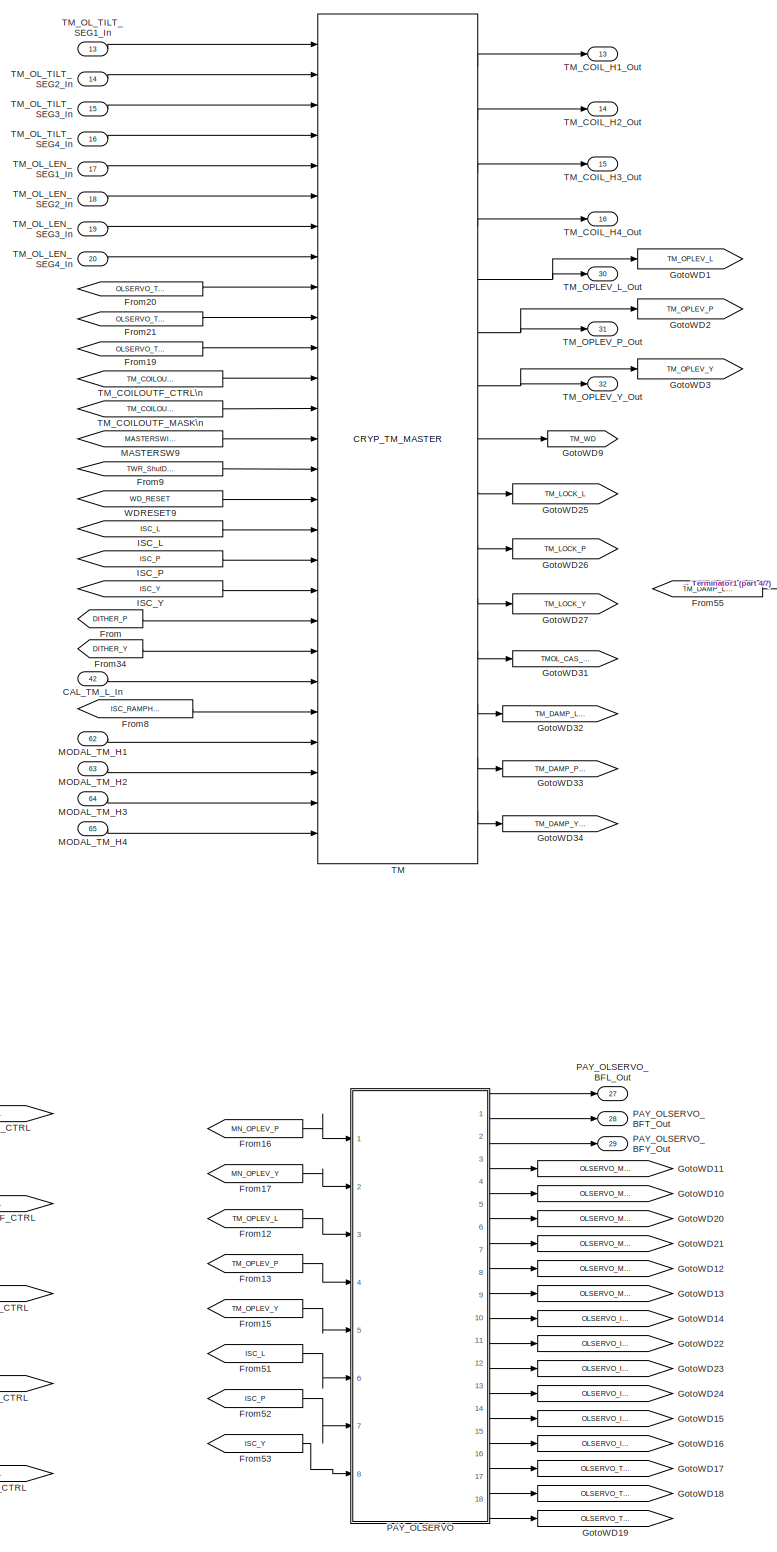
[diagram: TYPEA_PAYLOAD_MASTER - part 1/7, right side, full height]
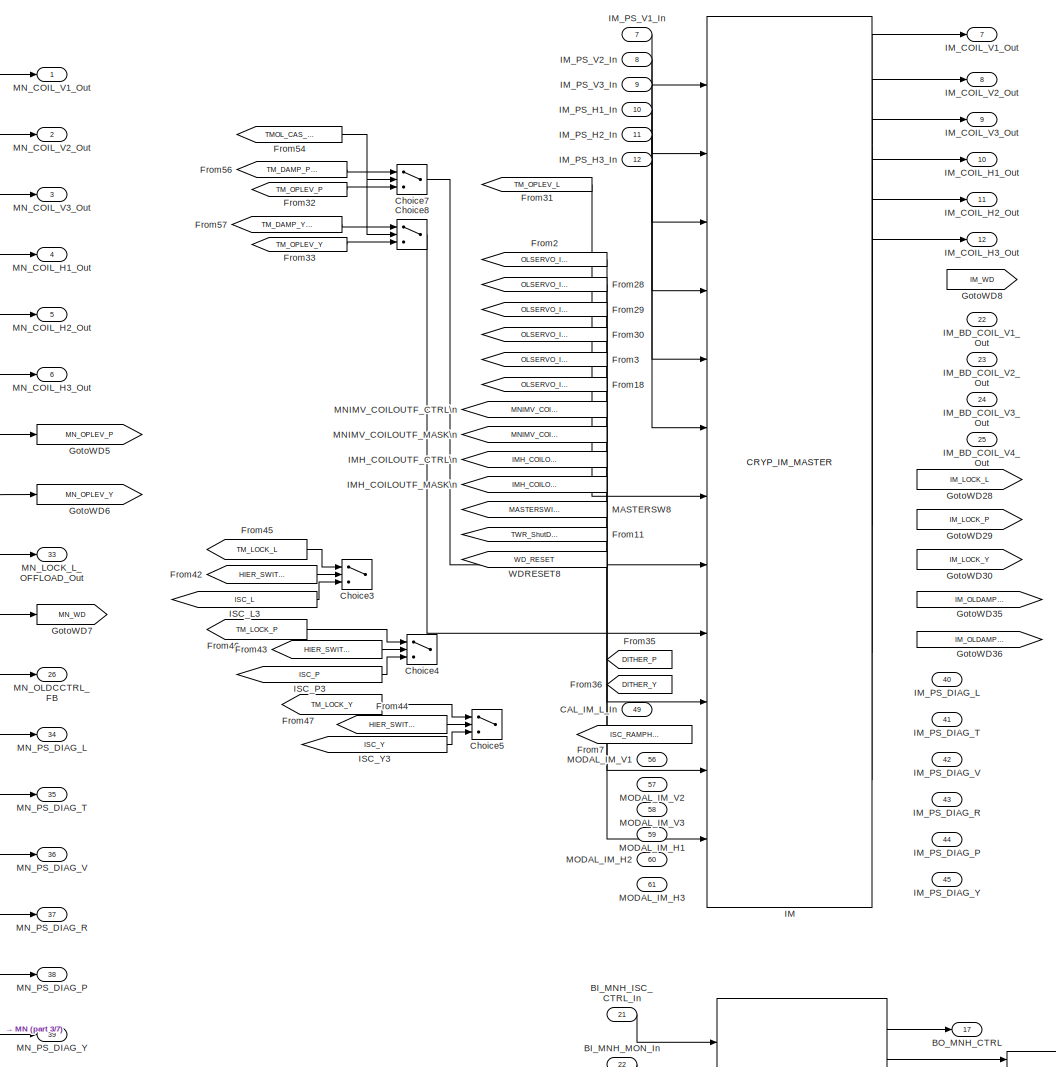
[diagram: TYPEA_PAYLOAD_MASTER - part 2/7, top center region]
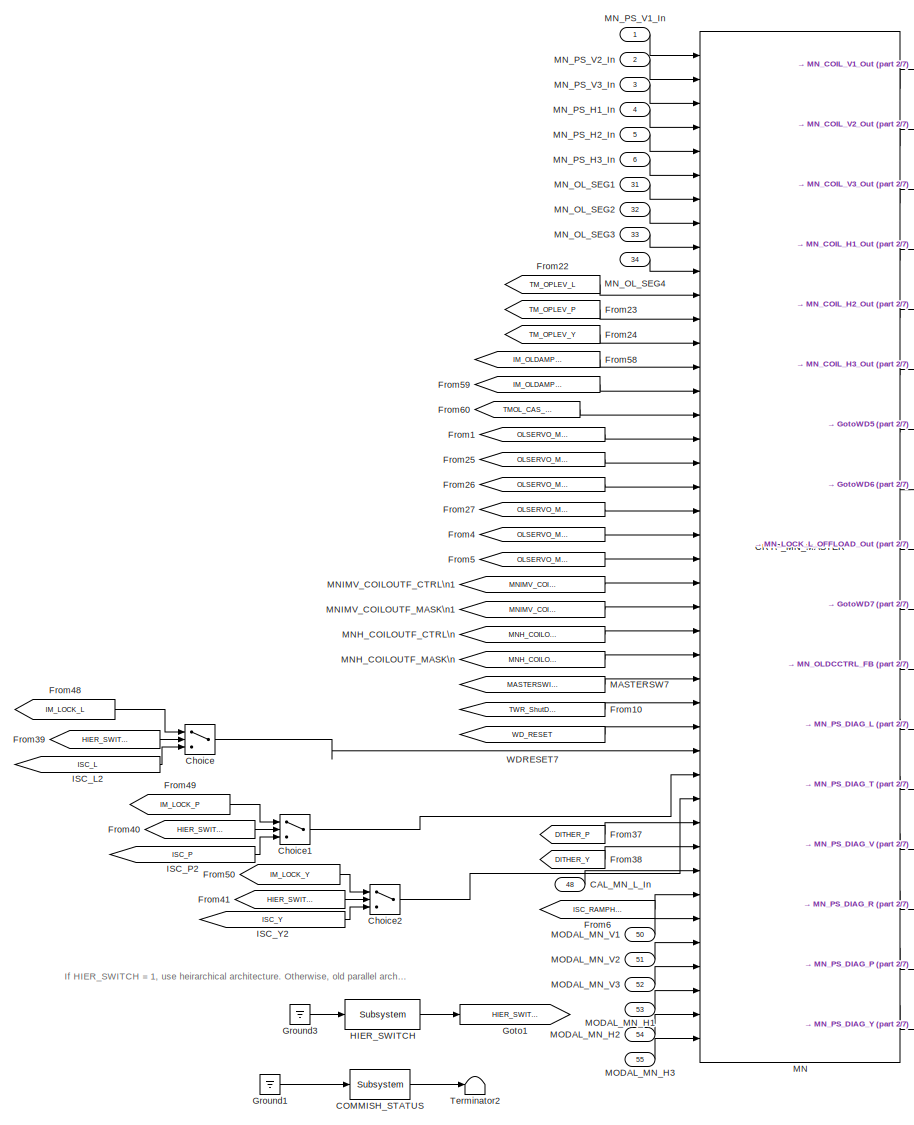
[diagram: TYPEA_PAYLOAD_MASTER - part 3/7, top left region]
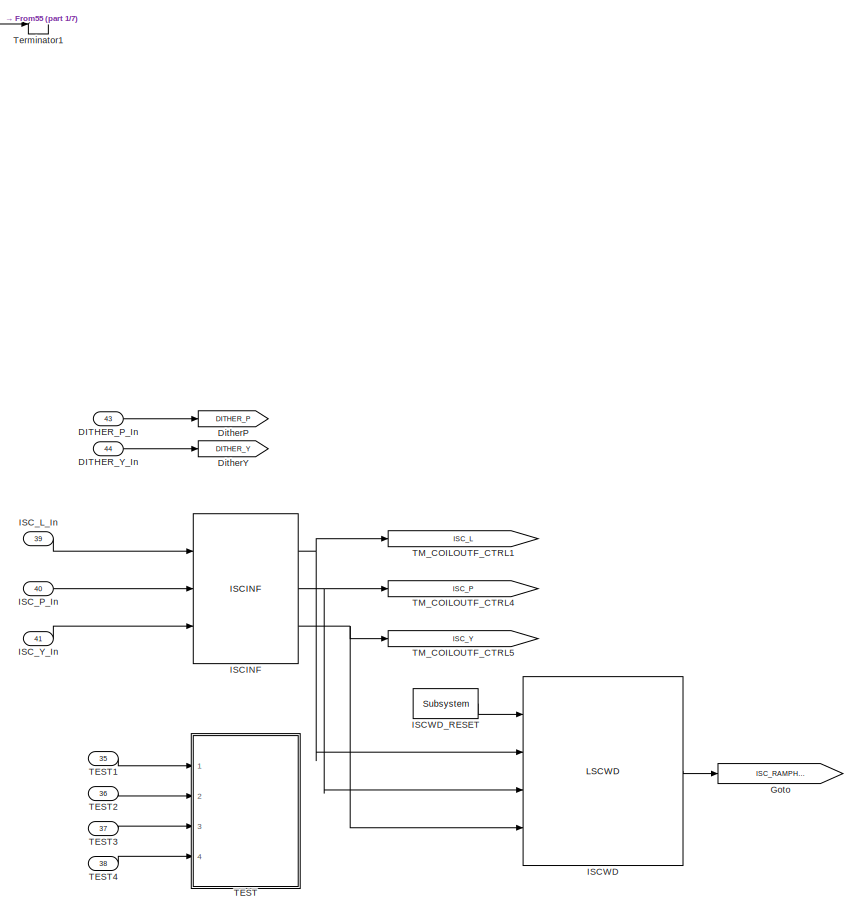
[diagram: TYPEA_PAYLOAD_MASTER - part 4/7, middle right region]
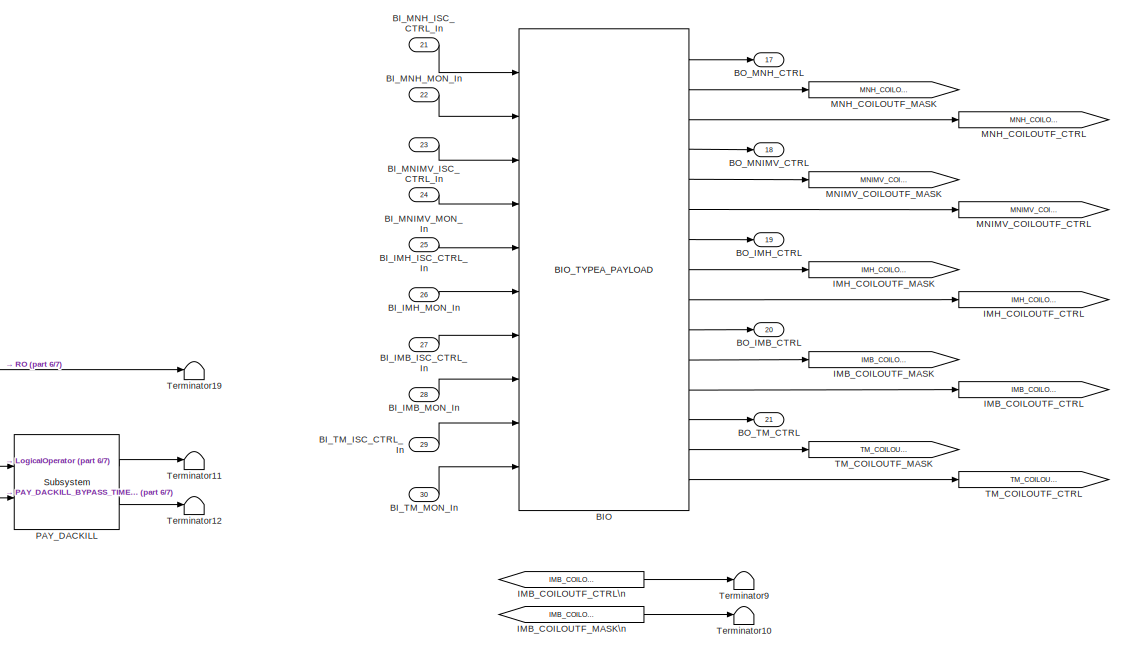
[diagram: TYPEA_PAYLOAD_MASTER - part 5/7, bottom center region]
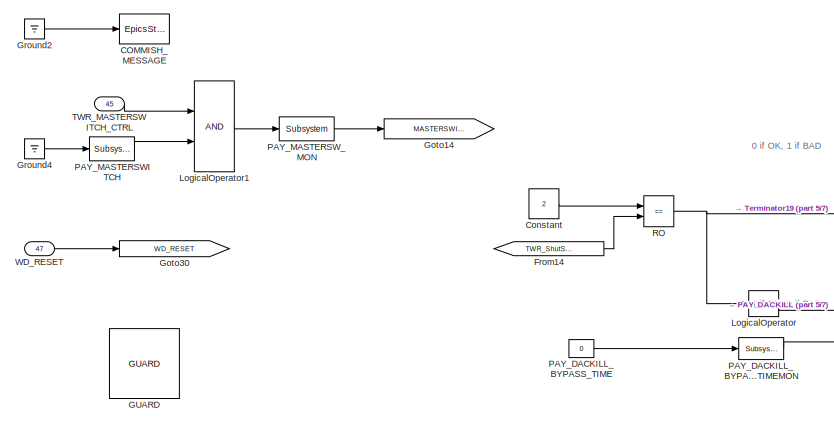
[diagram: TYPEA_PAYLOAD_MASTER - part 6/7, bottom left region]
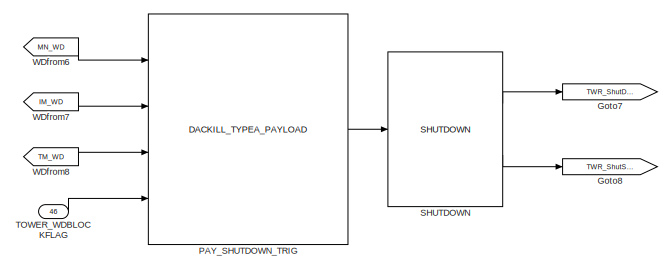
[diagram: TYPEA_PAYLOAD_MASTER - part 7/7, bottom left region]
BLOCK [SubSystem] TYPEA_PAYLOAD_MASTER
  Ports = [65, 45]
  RequestExecContextInheritance = off
  SID = 2967
  Variant = off
BLOCK [Reference] TYPEA_PAYLOAD_MASTER/BIO  REF=BIO_TYPEA_MASTER/BIO_TYPEA_PAYLOAD
  Ports = [10, 15]
  SID = 3298
  SourceBlock = BIO_TYPEA_MASTER/BIO_TYPEA_PAYLOAD
  SourceType = SubSystem
BLOCK [Inport] TYPEA_PAYLOAD_MASTER/BI_IMB_ISC_CTRL_In
  IconDisplay = Port number
  Port = 27
  SID = 3019
BLOCK [Inport] TYPEA_PAYLOAD_MASTER/BI_IMB_MON_In
  IconDisplay = Port number
  Port = 28
  SID = 3020
BLOCK [Inport] TYPEA_PAYLOAD_MASTER/BI_IMH_ISC_CTRL_In
  IconDisplay = Port number
  Port = 25
  SID = 3017
BLOCK [Inport] TYPEA_PAYLOAD_MASTER/BI_IMH_MON_In
  IconDisplay = Port number
  Port = 26
  SID = 3018
BLOCK [Inport] TYPEA_PAYLOAD_MASTER/BI_MNH_ISC_CTRL_In
  IconDisplay = Port number
  Port = 21
  SID = 3013
BLOCK [Inport] TYPEA_PAYLOAD_MASTER/BI_MNH_MON_In
  IconDisplay = Port number
  Port = 22
  SID = 3014
BLOCK [Inport] TYPEA_PAYLOAD_MASTER/BI_MNIMV_ISC_CTRL_In
  IconDisplay = Port number
  Port = 23
  SID = 3015
BLOCK [Inport] TYPEA_PAYLOAD_MASTER/BI_MNIMV_MON_In
  IconDisplay = Port number
  Port = 24
  SID = 3016
BLOCK [Inport] TYPEA_PAYLOAD_MASTER/BI_TM_ISC_CTRL_In
  IconDisplay = Port number
  Port = 29
  SID = 3021
BLOCK [Inport] TYPEA_PAYLOAD_MASTER/BI_TM_MON_In
  IconDisplay = Port number
  Port = 30
  SID = 3022
BLOCK [Outport] TYPEA_PAYLOAD_MASTER/BO_IMB_CTRL
  IconDisplay = Port number
  Port = 20
  SID = 3288
BLOCK [Outport] TYPEA_PAYLOAD_MASTER/BO_IMH_CTRL
  IconDisplay = Port number
  Port = 19
  SID = 3287
BLOCK [Outport] TYPEA_PAYLOAD_MASTER/BO_MNH_CTRL
  IconDisplay = Port number
  Port = 17
  SID = 3285
BLOCK [Outport] TYPEA_PAYLOAD_MASTER/BO_MNIMV_CTRL
  IconDisplay = Port number
  Port = 18
  SID = 3286
BLOCK [Outport] TYPEA_PAYLOAD_MASTER/BO_TM_CTRL
  IconDisplay = Port number
  Port = 21
  SID = 3289
BLOCK [Inport] TYPEA_PAYLOAD_MASTER/CAL_IM_L_In
  IconDisplay = Port number
  Port = 49
  SID = 3674
BLOCK [Inport] TYPEA_PAYLOAD_MASTER/CAL_MN_L_In
  IconDisplay = Port number
  Port = 48
  SID = 3673
BLOCK [Inport] TYPEA_PAYLOAD_MASTER/CAL_TM_L_In
  IconDisplay = Port number
  Port = 42
  SID = 3035
BLOCK [Reference] TYPEA_PAYLOAD_MASTER/COMMISH_MESSAGE  REF=cdsEpicsStringIn/EpicsStringIn
  AttributesFormatString = %<Tag>
  Description = cdsEpicsStringIn
  Ports = [1]
  SID = 3048
  SourceBlock = cdsEpicsStringIn/EpicsStringIn
  SourceType = SubSystem
  Tag = cdsEpicsStringIn
BLOCK [Reference] TYPEA_PAYLOAD_MASTER/COMMISH_STATUS  REF=cdsEpicsBinIn/Subsystem
  AttributesFormatString = %<Tag>
  Ports = [1, 1]
  SID = 3049
  SourceBlock = cdsEpicsBinIn/Subsystem
  SourceType = SubSystem
  Tag = cdsEpicsBinIn
BLOCK [Switch] TYPEA_PAYLOAD_MASTER/Choice
  InputSameDT = off
  SID = 4029
  SaturateOnIntegerOverflow = off
  Threshold = .5
BLOCK [Switch] TYPEA_PAYLOAD_MASTER/Choice1
  InputSameDT = off
  SID = 4031
  SaturateOnIntegerOverflow = off
  Threshold = .5
BLOCK [Switch] TYPEA_PAYLOAD_MASTER/Choice2
  InputSameDT = off
  SID = 4033
  SaturateOnIntegerOverflow = off
  Threshold = .5
BLOCK [Switch] TYPEA_PAYLOAD_MASTER/Choice3
  InputSameDT = off
  SID = 4035
  SaturateOnIntegerOverflow = off
  Threshold = .5
BLOCK [Switch] TYPEA_PAYLOAD_MASTER/Choice4
  InputSameDT = off
  SID = 4038
  SaturateOnIntegerOverflow = off
  Threshold = .5
BLOCK [Switch] TYPEA_PAYLOAD_MASTER/Choice5
  InputSameDT = off
  SID = 4041
  SaturateOnIntegerOverflow = off
  Threshold = .5
BLOCK [Switch] TYPEA_PAYLOAD_MASTER/Choice7
  InputSameDT = off
  SID = 4093
  SaturateOnIntegerOverflow = off
  Threshold = .5
BLOCK [Switch] TYPEA_PAYLOAD_MASTER/Choice8
  InputSameDT = off
  SID = 4094
  SaturateOnIntegerOverflow = off
  Threshold = .5
BLOCK [Constant] TYPEA_PAYLOAD_MASTER/Constant
  SID = 3700
  Value = 2
BLOCK [Inport] TYPEA_PAYLOAD_MASTER/DITHER_P_In
  IconDisplay = Port number
  Port = 43
  SID = 3036
BLOCK [Inport] TYPEA_PAYLOAD_MASTER/DITHER_Y_In
  IconDisplay = Port number
  Port = 44
  SID = 3037
BLOCK [Goto] TYPEA_PAYLOAD_MASTER/DitherP
  GotoTag = DITHER_P
  SID = 3840
BLOCK [Goto] TYPEA_PAYLOAD_MASTER/DitherY
  GotoTag = DITHER_Y
  SID = 3841
BLOCK [From] TYPEA_PAYLOAD_MASTER/From
  GotoTag = DITHER_P
  SID = 3842
BLOCK [From] TYPEA_PAYLOAD_MASTER/From1
  GotoTag = OLSERVO_MNL_Out
  SID = 3726
BLOCK [From] TYPEA_PAYLOAD_MASTER/From10
  GotoTag = TWR_ShutDown
  SID = 3703
BLOCK [From] TYPEA_PAYLOAD_MASTER/From11
  GotoTag = TWR_ShutDown
  SID = 3704
BLOCK [From] TYPEA_PAYLOAD_MASTER/From12
  GotoTag = TM_OPLEV_L
  SID = 3708
BLOCK [From] TYPEA_PAYLOAD_MASTER/From13
  GotoTag = TM_OPLEV_P
  SID = 3709
BLOCK [From] TYPEA_PAYLOAD_MASTER/From14
  GotoTag = TWR_ShutState
  SID = 3699
BLOCK [From] TYPEA_PAYLOAD_MASTER/From15
  GotoTag = TM_OPLEV_Y
  SID = 3710
BLOCK [From] TYPEA_PAYLOAD_MASTER/From16
  GotoTag = MN_OPLEV_P
  SID = 3711
BLOCK [From] TYPEA_PAYLOAD_MASTER/From17
  GotoTag = MN_OPLEV_Y
  SID = 3712
BLOCK [From] TYPEA_PAYLOAD_MASTER/From18
  GotoTag = OLSERVO_IMY_Out
  SID = 3732
BLOCK [From] TYPEA_PAYLOAD_MASTER/From19
  GotoTag = OLSERVO_TMY_Out
  SID = 3733
BLOCK [From] TYPEA_PAYLOAD_MASTER/From2
  GotoTag = OLSERVO_IML_Out
  SID = 3730
BLOCK [From] TYPEA_PAYLOAD_MASTER/From20
  GotoTag = OLSERVO_TML_Out
  SID = 3734
BLOCK [From] TYPEA_PAYLOAD_MASTER/From21
  GotoTag = OLSERVO_TMP_Out
  SID = 3735
BLOCK [From] TYPEA_PAYLOAD_MASTER/From22
  GotoTag = TM_OPLEV_L
  SID = 3742
BLOCK [From] TYPEA_PAYLOAD_MASTER/From23
  GotoTag = TM_OPLEV_P
  SID = 3743
BLOCK [From] TYPEA_PAYLOAD_MASTER/From24
  GotoTag = TM_OPLEV_Y
  SID = 3744
BLOCK [From] TYPEA_PAYLOAD_MASTER/From25
  GotoTag = OLSERVO_MNT_Out
  SID = 3756
BLOCK [From] TYPEA_PAYLOAD_MASTER/From26
  GotoTag = OLSERVO_MNV_Out
  SID = 3757
BLOCK [From] TYPEA_PAYLOAD_MASTER/From27
  GotoTag = OLSERVO_MNR_Out
  SID = 3758
BLOCK [From] TYPEA_PAYLOAD_MASTER/From28
  GotoTag = OLSERVO_IMT_Out
  SID = 3761
BLOCK [From] TYPEA_PAYLOAD_MASTER/From29
  GotoTag = OLSERVO_IMV_Out
  SID = 3762
BLOCK [From] TYPEA_PAYLOAD_MASTER/From3
  GotoTag = OLSERVO_IMP_Out
  SID = 3731
BLOCK [From] TYPEA_PAYLOAD_MASTER/From30
  GotoTag = OLSERVO_IMR_Out
  SID = 3763
BLOCK [From] TYPEA_PAYLOAD_MASTER/From31
  GotoTag = TM_OPLEV_L
  SID = 3833
BLOCK [From] TYPEA_PAYLOAD_MASTER/From32
  GotoTag = TM_OPLEV_P
  SID = 3834
BLOCK [From] TYPEA_PAYLOAD_MASTER/From33
  GotoTag = TM_OPLEV_Y
  SID = 3835
BLOCK [From] TYPEA_PAYLOAD_MASTER/From34
  GotoTag = DITHER_Y
  SID = 3843
BLOCK [From] TYPEA_PAYLOAD_MASTER/From35
  GotoTag = DITHER_P
  SID = 3844
BLOCK [From] TYPEA_PAYLOAD_MASTER/From36
  GotoTag = DITHER_Y
  SID = 3845
BLOCK [From] TYPEA_PAYLOAD_MASTER/From37
  GotoTag = DITHER_P
  SID = 3846
BLOCK [From] TYPEA_PAYLOAD_MASTER/From38
  GotoTag = DITHER_Y
  SID = 3847
BLOCK [From] TYPEA_PAYLOAD_MASTER/From39
  GotoTag = HIER_SWITCH
  SID = 4028
BLOCK [From] TYPEA_PAYLOAD_MASTER/From4
  GotoTag = OLSERVO_MNP_Out
  SID = 3727
BLOCK [From] TYPEA_PAYLOAD_MASTER/From40
  GotoTag = HIER_SWITCH
  SID = 4032
BLOCK [From] TYPEA_PAYLOAD_MASTER/From41
  GotoTag = HIER_SWITCH
  SID = 4034
BLOCK [From] TYPEA_PAYLOAD_MASTER/From42
  GotoTag = HIER_SWITCH
  SID = 4036
BLOCK [From] TYPEA_PAYLOAD_MASTER/From43
  GotoTag = HIER_SWITCH
  SID = 4039
BLOCK [From] TYPEA_PAYLOAD_MASTER/From44
  GotoTag = HIER_SWITCH
  SID = 4042
BLOCK [From] TYPEA_PAYLOAD_MASTER/From45
  GotoTag = TM_LOCK_L
  SID = 4046
BLOCK [From] TYPEA_PAYLOAD_MASTER/From46
  GotoTag = TM_LOCK_P
  SID = 4047
BLOCK [From] TYPEA_PAYLOAD_MASTER/From47
  GotoTag = TM_LOCK_Y
  SID = 4049
BLOCK [From] TYPEA_PAYLOAD_MASTER/From48
  GotoTag = IM_LOCK_L
  SID = 4054
BLOCK [From] TYPEA_PAYLOAD_MASTER/From49
  GotoTag = IM_LOCK_P
  SID = 4055
BLOCK [From] TYPEA_PAYLOAD_MASTER/From5
  GotoTag = OLSERVO_MNY_Out
  SID = 3728
BLOCK [From] TYPEA_PAYLOAD_MASTER/From50
  GotoTag = IM_LOCK_Y
  SID = 4056
BLOCK [From] TYPEA_PAYLOAD_MASTER/From51
  GotoTag = ISC_L
  SID = 4063
BLOCK [From] TYPEA_PAYLOAD_MASTER/From52
  GotoTag = ISC_P
  SID = 4064
BLOCK [From] TYPEA_PAYLOAD_MASTER/From53
  GotoTag = ISC_Y
  SID = 4065
BLOCK [From] TYPEA_PAYLOAD_MASTER/From54
  GotoTag = TMOL_CAS_SW
  SID = 4081
BLOCK [From] TYPEA_PAYLOAD_MASTER/From55
  GotoTag = TM_DAMP_L_OUT
  SID = 4085
BLOCK [From] TYPEA_PAYLOAD_MASTER/From56
  GotoTag = TM_DAMP_P_OUT
  SID = 4086
BLOCK [From] TYPEA_PAYLOAD_MASTER/From57
  GotoTag = TM_DAMP_Y_OUT
  SID = 4087
BLOCK [From] TYPEA_PAYLOAD_MASTER/From58
  GotoTag = IM_OLDAMP_P_OUT
  SID = 4098
BLOCK [From] TYPEA_PAYLOAD_MASTER/From59
  GotoTag = IM_OLDAMP_Y_OUT
  SID = 4099
BLOCK [From] TYPEA_PAYLOAD_MASTER/From6
  GotoTag = ISC_RAMPHOLD
  SID = 4112
BLOCK [From] TYPEA_PAYLOAD_MASTER/From60
  GotoTag = TMOL_CAS_SW
  SID = 4105
BLOCK [From] TYPEA_PAYLOAD_MASTER/From7
  GotoTag = ISC_RAMPHOLD
  SID = 4113
BLOCK [From] TYPEA_PAYLOAD_MASTER/From8
  GotoTag = ISC_RAMPHOLD
  SID = 4114
BLOCK [From] TYPEA_PAYLOAD_MASTER/From9
  GotoTag = TWR_ShutDown
  SID = 3702
BLOCK [Reference] TYPEA_PAYLOAD_MASTER/GUARD  REF=ISC_common/GUARD
  Ports = []
  SID = 3083
  SourceBlock = ISC_common/GUARD
  SourceType = SubSystem
BLOCK [Goto] TYPEA_PAYLOAD_MASTER/Goto
  GotoTag = ISC_RAMPHOLD
  SID = 4109
BLOCK [Goto] TYPEA_PAYLOAD_MASTER/Goto1
  GotoTag = HIER_SWITCH
  SID = 4027
BLOCK [Goto] TYPEA_PAYLOAD_MASTER/Goto14
  GotoTag = MASTERSWITCH
  SID = 3084
BLOCK [Goto] TYPEA_PAYLOAD_MASTER/Goto30
  GotoTag = WD_RESET
  SID = 3432
BLOCK [Goto] TYPEA_PAYLOAD_MASTER/Goto7
  GotoTag = TWR_ShutDown
  SID = 3697
BLOCK [Goto] TYPEA_PAYLOAD_MASTER/Goto8
  GotoTag = TWR_ShutState
  SID = 3698
BLOCK [Goto] TYPEA_PAYLOAD_MASTER/GotoWD1
  GotoTag = TM_OPLEV_L
  SID = 3299
BLOCK [Goto] TYPEA_PAYLOAD_MASTER/GotoWD10
  GotoTag = OLSERVO_MNT_Out
  SID = 3750
BLOCK [Goto] TYPEA_PAYLOAD_MASTER/GotoWD11
  GotoTag = OLSERVO_MNL_Out
  SID = 3717
BLOCK [Goto] TYPEA_PAYLOAD_MASTER/GotoWD12
  GotoTag = OLSERVO_MNP_Out
  SID = 3718
BLOCK [Goto] TYPEA_PAYLOAD_MASTER/GotoWD13
  GotoTag = OLSERVO_MNY_Out
  SID = 3719
BLOCK [Goto] TYPEA_PAYLOAD_MASTER/GotoWD14
  GotoTag = OLSERVO_IML_Out
  SID = 3720
BLOCK [Goto] TYPEA_PAYLOAD_MASTER/GotoWD15
  GotoTag = OLSERVO_IMP_Out
  SID = 3721
BLOCK [Goto] TYPEA_PAYLOAD_MASTER/GotoWD16
  GotoTag = OLSERVO_IMY_Out
  SID = 3722
BLOCK [Goto] TYPEA_PAYLOAD_MASTER/GotoWD17
  GotoTag = OLSERVO_TML_Out
  SID = 3723
BLOCK [Goto] TYPEA_PAYLOAD_MASTER/GotoWD18
  GotoTag = OLSERVO_TMP_Out
  SID = 3724
BLOCK [Goto] TYPEA_PAYLOAD_MASTER/GotoWD19
  GotoTag = OLSERVO_TMY_Out
  SID = 3725
BLOCK [Goto] TYPEA_PAYLOAD_MASTER/GotoWD2
  GotoTag = TM_OPLEV_P
  SID = 3302
BLOCK [Goto] TYPEA_PAYLOAD_MASTER/GotoWD20
  GotoTag = OLSERVO_MNV_Out
  SID = 3751
BLOCK [Goto] TYPEA_PAYLOAD_MASTER/GotoWD21
  GotoTag = OLSERVO_MNR_Out
  SID = 3752
BLOCK [Goto] TYPEA_PAYLOAD_MASTER/GotoWD22
  GotoTag = OLSERVO_IMT_Out
  SID = 3753
BLOCK [Goto] TYPEA_PAYLOAD_MASTER/GotoWD23
  GotoTag = OLSERVO_IMV_Out
  SID = 3754
BLOCK [Goto] TYPEA_PAYLOAD_MASTER/GotoWD24
  GotoTag = OLSERVO_IMR_Out
  SID = 3755
BLOCK [Goto] TYPEA_PAYLOAD_MASTER/GotoWD25
  GotoTag = TM_LOCK_L
  SID = 4044
BLOCK [Goto] TYPEA_PAYLOAD_MASTER/GotoWD26
  GotoTag = TM_LOCK_P
  SID = 4048
BLOCK [Goto] TYPEA_PAYLOAD_MASTER/GotoWD27
  GotoTag = TM_LOCK_Y
  SID = 4050
BLOCK [Goto] TYPEA_PAYLOAD_MASTER/GotoWD28
  GotoTag = IM_LOCK_L
  SID = 4051
BLOCK [Goto] TYPEA_PAYLOAD_MASTER/GotoWD29
  GotoTag = IM_LOCK_P
  SID = 4052
BLOCK [Goto] TYPEA_PAYLOAD_MASTER/GotoWD3
  GotoTag = TM_OPLEV_Y
  SID = 3303
BLOCK [Goto] TYPEA_PAYLOAD_MASTER/GotoWD30
  GotoTag = IM_LOCK_Y
  SID = 4053
BLOCK [Goto] TYPEA_PAYLOAD_MASTER/GotoWD31
  GotoTag = TMOL_CAS_SW
  SID = 4079
BLOCK [Goto] TYPEA_PAYLOAD_MASTER/GotoWD32
  GotoTag = TM_DAMP_L_OUT
  SID = 4082
BLOCK [Goto] TYPEA_PAYLOAD_MASTER/GotoWD33
  GotoTag = TM_DAMP_P_OUT
  SID = 4083
BLOCK [Goto] TYPEA_PAYLOAD_MASTER/GotoWD34
  GotoTag = TM_DAMP_Y_OUT
  SID = 4084
BLOCK [Goto] TYPEA_PAYLOAD_MASTER/GotoWD35
  GotoTag = IM_OLDAMP_P_OUT
  SID = 4096
BLOCK [Goto] TYPEA_PAYLOAD_MASTER/GotoWD36
  GotoTag = IM_OLDAMP_Y_OUT
  SID = 4097
BLOCK [Goto] TYPEA_PAYLOAD_MASTER/GotoWD5
  GotoTag = MN_OPLEV_P
  SID = 3705
BLOCK [Goto] TYPEA_PAYLOAD_MASTER/GotoWD6
  GotoTag = MN_OPLEV_Y
  SID = 3706
BLOCK [Goto] TYPEA_PAYLOAD_MASTER/GotoWD7
  GotoTag = MN_WD
  SID = 3106
BLOCK [Goto] TYPEA_PAYLOAD_MASTER/GotoWD8
  GotoTag = IM_WD
  SID = 3107
BLOCK [Goto] TYPEA_PAYLOAD_MASTER/GotoWD9
  GotoTag = TM_WD
  SID = 3108
BLOCK [Ground] TYPEA_PAYLOAD_MASTER/Ground1
  SID = 3109
BLOCK [Ground] TYPEA_PAYLOAD_MASTER/Ground2
  SID = 3114
BLOCK [Ground] TYPEA_PAYLOAD_MASTER/Ground3
  SID = 4025
BLOCK [Ground] TYPEA_PAYLOAD_MASTER/Ground4
  SID = 3118
BLOCK [Reference] TYPEA_PAYLOAD_MASTER/HIER_SWITCH  REF=cdsEpicsBinIn/Subsystem
  AttributesFormatString = %<Tag>
  Ports = [1, 1]
  SID = 4024
  SourceBlock = cdsEpicsBinIn/Subsystem
  SourceType = SubSystem
  Tag = cdsEpicsBinIn
BLOCK [Reference] TYPEA_PAYLOAD_MASTER/IM  REF=CRYP_IM_MASTER/CRYP_IM_MASTER
  Description = SIXOSEMSTAGE_FACE_MASTER
  Ports = [12, 6]
  SID = 3123
  SourceBlock = CRYP_IM_MASTER/CRYP_IM_MASTER
  SourceType = SubSystem
BLOCK [Goto] TYPEA_PAYLOAD_MASTER/IMB_COILOUTF_CTRL
  GotoTag = IMB_COILOUTF_CTRL
  SID = 3124
BLOCK [From] TYPEA_PAYLOAD_MASTER/IMB_COILOUTF_CTRL\n
  CloseFcn = tagdialog Close
  GotoTag = IMB_COILOUTF_CTRL
  SID = 3125
BLOCK [Goto] TYPEA_PAYLOAD_MASTER/IMB_COILOUTF_MASK
  GotoTag = IMB_COILOUTF_MASK
  SID = 3126
BLOCK [From] TYPEA_PAYLOAD_MASTER/IMB_COILOUTF_MASK\n
  CloseFcn = tagdialog Close
  GotoTag = IMB_COILOUTF_MASK
  SID = 3127
BLOCK [Goto] TYPEA_PAYLOAD_MASTER/IMH_COILOUTF_CTRL
  GotoTag = IMH_COILOUTF_CTRL
  SID = 3128
BLOCK [From] TYPEA_PAYLOAD_MASTER/IMH_COILOUTF_CTRL\n
  CloseFcn = tagdialog Close
  GotoTag = IMH_COILOUTF_CTRL
  SID = 3129
BLOCK [Goto] TYPEA_PAYLOAD_MASTER/IMH_COILOUTF_MASK
  GotoTag = IMH_COILOUTF_MASK
  SID = 3130
BLOCK [From] TYPEA_PAYLOAD_MASTER/IMH_COILOUTF_MASK\n
  CloseFcn = tagdialog Close
  GotoTag = IMH_COILOUTF_MASK
  SID = 3131
BLOCK [Outport] TYPEA_PAYLOAD_MASTER/IM_BD_COIL_V1_Out
  IconDisplay = Port number
  Port = 22
  SID = 3290
BLOCK [Outport] TYPEA_PAYLOAD_MASTER/IM_BD_COIL_V2_Out
  IconDisplay = Port number
  Port = 23
  SID = 3291
BLOCK [Outport] TYPEA_PAYLOAD_MASTER/IM_BD_COIL_V3_Out
  IconDisplay = Port number
  Port = 24
  SID = 3292
BLOCK [Outport] TYPEA_PAYLOAD_MASTER/IM_BD_COIL_V4_Out
  IconDisplay = Port number
  Port = 25
  SID = 3293
BLOCK [Outport] TYPEA_PAYLOAD_MASTER/IM_COIL_H1_Out
  IconDisplay = Port number
  Port = 10
  SID = 3274
BLOCK [Outport] TYPEA_PAYLOAD_MASTER/IM_COIL_H2_Out
  IconDisplay = Port number
  Port = 11
  SID = 3275
BLOCK [Outport] TYPEA_PAYLOAD_MASTER/IM_COIL_H3_Out
  IconDisplay = Port number
  Port = 12
  SID = 3276
BLOCK [Outport] TYPEA_PAYLOAD_MASTER/IM_COIL_V1_Out
  IconDisplay = Port number
  Port = 7
  SID = 3271
BLOCK [Outport] TYPEA_PAYLOAD_MASTER/IM_COIL_V2_Out
  IconDisplay = Port number
  Port = 8
  SID = 3272
BLOCK [Outport] TYPEA_PAYLOAD_MASTER/IM_COIL_V3_Out
  IconDisplay = Port number
  Port = 9
  SID = 3273
BLOCK [Outport] TYPEA_PAYLOAD_MASTER/IM_PS_DIAG_L
  IconDisplay = Port number
  Port = 40
  SID = 4195
BLOCK [Outport] TYPEA_PAYLOAD_MASTER/IM_PS_DIAG_P
  IconDisplay = Port number
  Port = 44
  SID = 4199
BLOCK [Outport] TYPEA_PAYLOAD_MASTER/IM_PS_DIAG_R
  IconDisplay = Port number
  Port = 43
  SID = 4198
BLOCK [Outport] TYPEA_PAYLOAD_MASTER/IM_PS_DIAG_T
  IconDisplay = Port number
  Port = 41
  SID = 4196
BLOCK [Outport] TYPEA_PAYLOAD_MASTER/IM_PS_DIAG_V
  IconDisplay = Port number
  Port = 42
  SID = 4197
BLOCK [Outport] TYPEA_PAYLOAD_MASTER/IM_PS_DIAG_Y
  IconDisplay = Port number
  Port = 45
  SID = 4200
BLOCK [Inport] TYPEA_PAYLOAD_MASTER/IM_PS_H1_In
  IconDisplay = Port number
  Port = 10
  SID = 2994
BLOCK [Inport] TYPEA_PAYLOAD_MASTER/IM_PS_H2_In
  IconDisplay = Port number
  Port = 11
  SID = 2995
BLOCK [Inport] TYPEA_PAYLOAD_MASTER/IM_PS_H3_In
  IconDisplay = Port number
  Port = 12
  SID = 2996
BLOCK [Inport] TYPEA_PAYLOAD_MASTER/IM_PS_V1_In
  IconDisplay = Port number
  Port = 7
  SID = 2991
BLOCK [Inport] TYPEA_PAYLOAD_MASTER/IM_PS_V2_In
  IconDisplay = Port number
  Port = 8
  SID = 2992
BLOCK [Inport] TYPEA_PAYLOAD_MASTER/IM_PS_V3_In
  IconDisplay = Port number
  Port = 9
  SID = 2993
BLOCK [Reference] TYPEA_PAYLOAD_MASTER/ISCINF  REF=VIS_LIB/ISCINF
  Ports = [3, 3]
  SID = 3133
  SourceBlock = VIS_LIB/ISCINF
  SourceType = SubSystem
BLOCK [Reference] TYPEA_PAYLOAD_MASTER/ISCWD  REF=KAGRA_UTIL/LSCWD
  Ports = [4, 1]
  SID = 4107
  SourceBlock = KAGRA_UTIL/LSCWD
  SourceType = SubSystem
BLOCK [Reference] TYPEA_PAYLOAD_MASTER/ISCWD_RESET  REF=cdsEpicsIn/Subsystem
  AttributesFormatString = %<Tag>
  Description = Purpose:                                                                              \nCreate an EPICS input channel connection to the FE realtime controls.                 \n                                                                                      \nOperation:                                                                            \nOutputs value from an EPICS ai record. Value is ...<+266ch>  <repeated x6 — deduplicated; at blocks: ISCWD_RESET, PICO_IM_STATUS, PICO_OP_STATUS, PICO_BF_STATUS, STEP_GAS_STATUS, STEP_IP_STATUS>
  Ports = [0, 1]
  SID = 4108
  SourceBlock = cdsEpicsIn/Subsystem
  SourceType = SubSystem
  Tag = cdsEpicsIn
BLOCK [From] TYPEA_PAYLOAD_MASTER/ISC_L
  CloseFcn = tagdialog Close
  GotoTag = ISC_L
  SID = 3134
BLOCK [From] TYPEA_PAYLOAD_MASTER/ISC_L2
  CloseFcn = tagdialog Close
  GotoTag = ISC_L
  SID = 3136
BLOCK [From] TYPEA_PAYLOAD_MASTER/ISC_L3
  CloseFcn = tagdialog Close
  GotoTag = ISC_L
  SID = 4037
BLOCK [Inport] TYPEA_PAYLOAD_MASTER/ISC_L_In
  IconDisplay = Port number
  Port = 39
  SID = 3031
BLOCK [From] TYPEA_PAYLOAD_MASTER/ISC_P
  CloseFcn = tagdialog Close
  GotoTag = ISC_P
  SID = 3138
BLOCK [From] TYPEA_PAYLOAD_MASTER/ISC_P2
  CloseFcn = tagdialog Close
  GotoTag = ISC_P
  SID = 3140
BLOCK [From] TYPEA_PAYLOAD_MASTER/ISC_P3
  CloseFcn = tagdialog Close
  GotoTag = ISC_P
  SID = 4040
BLOCK [Inport] TYPEA_PAYLOAD_MASTER/ISC_P_In
  IconDisplay = Port number
  Port = 40
  SID = 3032
BLOCK [From] TYPEA_PAYLOAD_MASTER/ISC_Y
  CloseFcn = tagdialog Close
  GotoTag = ISC_Y
  SID = 3141
BLOCK [From] TYPEA_PAYLOAD_MASTER/ISC_Y2
  CloseFcn = tagdialog Close
  GotoTag = ISC_Y
  SID = 3143
BLOCK [From] TYPEA_PAYLOAD_MASTER/ISC_Y3
  CloseFcn = tagdialog Close
  GotoTag = ISC_Y
  SID = 4043
BLOCK [Inport] TYPEA_PAYLOAD_MASTER/ISC_Y_In
  IconDisplay = Port number
  Port = 41
  SID = 3033
BLOCK [Logic] TYPEA_PAYLOAD_MASTER/LogicalOperator
  AllPortsSameDT = off
  Operator = NOT
  OutDataTypeStr = boolean
  Ports = [1, 1]
  SID = 3145
BLOCK [Logic] TYPEA_PAYLOAD_MASTER/LogicalOperator1
  AllPortsSameDT = off
  OutDataTypeStr = boolean
  Ports = [2, 1]
  SID = 4067
BLOCK [From] TYPEA_PAYLOAD_MASTER/MASTERSW7
  CloseFcn = tagdialog Close
  GotoTag = MASTERSWITCH
  SID = 3152
BLOCK [From] TYPEA_PAYLOAD_MASTER/MASTERSW8
  CloseFcn = tagdialog Close
  GotoTag = MASTERSWITCH
  SID = 3153
BLOCK [From] TYPEA_PAYLOAD_MASTER/MASTERSW9
  CloseFcn = tagdialog Close
  GotoTag = MASTERSWITCH
  SID = 3154
BLOCK [Reference] TYPEA_PAYLOAD_MASTER/MN  REF=CRYP_MN_MASTER/CRYP_MN_MASTER
  Description = SIXOSEMSTAGE_FACE_MASTER
  Ports = [42, 17]
  SID = 3156
  SourceBlock = CRYP_MN_MASTER/CRYP_MN_MASTER
  SourceType = SubSystem
BLOCK [Goto] TYPEA_PAYLOAD_MASTER/MNH_COILOUTF_CTRL
  GotoTag = MNH_COILOUTF_CTRL
  SID = 3157
BLOCK [From] TYPEA_PAYLOAD_MASTER/MNH_COILOUTF_CTRL\n
  CloseFcn = tagdialog Close
  GotoTag = MNH_COILOUTF_CTRL
  SID = 3158
BLOCK [Goto] TYPEA_PAYLOAD_MASTER/MNH_COILOUTF_MASK
  GotoTag = MNH_COILOUTF_MASK
  SID = 3159
BLOCK [From] TYPEA_PAYLOAD_MASTER/MNH_COILOUTF_MASK\n
  CloseFcn = tagdialog Close
  GotoTag = MNH_COILOUTF_MASK
  SID = 3160
BLOCK [Goto] TYPEA_PAYLOAD_MASTER/MNIMV_COILOUTF_CTRL
  GotoTag = MNIMV_COILOUTF_CTRL
  SID = 3161
BLOCK [From] TYPEA_PAYLOAD_MASTER/MNIMV_COILOUTF_CTRL\n
  CloseFcn = tagdialog Close
  GotoTag = MNIMV_COILOUTF_CTRL
  SID = 3162
BLOCK [From] TYPEA_PAYLOAD_MASTER/MNIMV_COILOUTF_CTRL\n1
  CloseFcn = tagdialog Close
  GotoTag = MNIMV_COILOUTF_CTRL
  SID = 3163
BLOCK [Goto] TYPEA_PAYLOAD_MASTER/MNIMV_COILOUTF_MASK
  GotoTag = MNIMV_COILOUTF_MASK
  SID = 3164
BLOCK [From] TYPEA_PAYLOAD_MASTER/MNIMV_COILOUTF_MASK\n
  CloseFcn = tagdialog Close
  GotoTag = MNIMV_COILOUTF_MASK
  SID = 3165
BLOCK [From] TYPEA_PAYLOAD_MASTER/MNIMV_COILOUTF_MASK\n1
  CloseFcn = tagdialog Close
  GotoTag = MNIMV_COILOUTF_MASK
  SID = 3166
BLOCK [Outport] TYPEA_PAYLOAD_MASTER/MN_COIL_H1_Out
  IconDisplay = Port number
  Port = 4
  SID = 3268
BLOCK [Outport] TYPEA_PAYLOAD_MASTER/MN_COIL_H2_Out
  IconDisplay = Port number
  Port = 5
  SID = 3269
BLOCK [Outport] TYPEA_PAYLOAD_MASTER/MN_COIL_H3_Out
  IconDisplay = Port number
  Port = 6
  SID = 3270
BLOCK [Outport] TYPEA_PAYLOAD_MASTER/MN_COIL_V1_Out
  IconDisplay = Port number
  SID = 3265
BLOCK [Outport] TYPEA_PAYLOAD_MASTER/MN_COIL_V2_Out
  IconDisplay = Port number
  Port = 2
  SID = 3266
BLOCK [Outport] TYPEA_PAYLOAD_MASTER/MN_COIL_V3_Out
  IconDisplay = Port number
  Port = 3
  SID = 3267
BLOCK [Outport] TYPEA_PAYLOAD_MASTER/MN_LOCK_L_OFFLOAD_Out
  IconDisplay = Port number
  Port = 33
  SID = 4077
BLOCK [Outport] TYPEA_PAYLOAD_MASTER/MN_OLDCCTRL_FB
  IconDisplay = Port number
  Port = 26
  SID = 3848
BLOCK [Inport] TYPEA_PAYLOAD_MASTER/MN_OL_SEG1
  IconDisplay = Port number
  Port = 31
  SID = 3023
BLOCK [Inport] TYPEA_PAYLOAD_MASTER/MN_OL_SEG2
  IconDisplay = Port number
  Port = 32
  SID = 3024
BLOCK [Inport] TYPEA_PAYLOAD_MASTER/MN_OL_SEG3
  IconDisplay = Port number
  Port = 33
  SID = 3025
BLOCK [Inport] TYPEA_PAYLOAD_MASTER/MN_OL_SEG4
  IconDisplay = Port number
  Port = 34
  SID = 3026
BLOCK [Outport] TYPEA_PAYLOAD_MASTER/MN_PS_DIAG_L
  IconDisplay = Port number
  Port = 34
  SID = 4184
BLOCK [Outport] TYPEA_PAYLOAD_MASTER/MN_PS_DIAG_P
  IconDisplay = Port number
  Port = 38
  SID = 4193
BLOCK [Outport] TYPEA_PAYLOAD_MASTER/MN_PS_DIAG_R
  IconDisplay = Port number
  Port = 37
  SID = 4192
BLOCK [Outport] TYPEA_PAYLOAD_MASTER/MN_PS_DIAG_T
  IconDisplay = Port number
  Port = 35
  SID = 4190
BLOCK [Outport] TYPEA_PAYLOAD_MASTER/MN_PS_DIAG_V
  IconDisplay = Port number
  Port = 36
  SID = 4191
BLOCK [Outport] TYPEA_PAYLOAD_MASTER/MN_PS_DIAG_Y
  IconDisplay = Port number
  Port = 39
  SID = 4194
BLOCK [Inport] TYPEA_PAYLOAD_MASTER/MN_PS_H1_In
  IconDisplay = Port number
  Port = 4
  SID = 2988
BLOCK [Inport] TYPEA_PAYLOAD_MASTER/MN_PS_H2_In
  IconDisplay = Port number
  Port = 5
  SID = 2989
BLOCK [Inport] TYPEA_PAYLOAD_MASTER/MN_PS_H3_In
  IconDisplay = Port number
  Port = 6
  SID = 2990
BLOCK [Inport] TYPEA_PAYLOAD_MASTER/MN_PS_V1_In
  IconDisplay = Port number
  SID = 2985
BLOCK [Inport] TYPEA_PAYLOAD_MASTER/MN_PS_V2_In
  IconDisplay = Port number
  Port = 2
  SID = 2986
BLOCK [Inport] TYPEA_PAYLOAD_MASTER/MN_PS_V3_In
  IconDisplay = Port number
  Port = 3
  SID = 2987
BLOCK [Inport] TYPEA_PAYLOAD_MASTER/MODAL_IM_H1
  IconDisplay = Port number
  Port = 59
  SID = 4175
BLOCK [Inport] TYPEA_PAYLOAD_MASTER/MODAL_IM_H2
  IconDisplay = Port number
  Port = 60
  SID = 4176
BLOCK [Inport] TYPEA_PAYLOAD_MASTER/MODAL_IM_H3
  IconDisplay = Port number
  Port = 61
  SID = 4177
BLOCK [Inport] TYPEA_PAYLOAD_MASTER/MODAL_IM_V1
  IconDisplay = Port number
  Port = 56
  SID = 4172
BLOCK [Inport] TYPEA_PAYLOAD_MASTER/MODAL_IM_V2
  IconDisplay = Port number
  Port = 57
  SID = 4173
BLOCK [Inport] TYPEA_PAYLOAD_MASTER/MODAL_IM_V3
  IconDisplay = Port number
  Port = 58
  SID = 4174
BLOCK [Inport] TYPEA_PAYLOAD_MASTER/MODAL_MN_H1
  IconDisplay = Port number
  Port = 53
  SID = 4169
BLOCK [Inport] TYPEA_PAYLOAD_MASTER/MODAL_MN_H2
  IconDisplay = Port number
  Port = 54
  SID = 4170
BLOCK [Inport] TYPEA_PAYLOAD_MASTER/MODAL_MN_H3
  IconDisplay = Port number
  Port = 55
  SID = 4171
BLOCK [Inport] TYPEA_PAYLOAD_MASTER/MODAL_MN_V1
  IconDisplay = Port number
  Port = 50
  SID = 4166
BLOCK [Inport] TYPEA_PAYLOAD_MASTER/MODAL_MN_V2
  IconDisplay = Port number
  Port = 51
  SID = 4167
BLOCK [Inport] TYPEA_PAYLOAD_MASTER/MODAL_MN_V3
  IconDisplay = Port number
  Port = 52
  SID = 4168
BLOCK [Inport] TYPEA_PAYLOAD_MASTER/MODAL_TM_H1
  IconDisplay = Port number
  Port = 62
  SID = 4178
BLOCK [Inport] TYPEA_PAYLOAD_MASTER/MODAL_TM_H2
  IconDisplay = Port number
  Port = 63
  SID = 4201
BLOCK [Inport] TYPEA_PAYLOAD_MASTER/MODAL_TM_H3
  IconDisplay = Port number
  Port = 64
  SID = 4202
BLOCK [Inport] TYPEA_PAYLOAD_MASTER/MODAL_TM_H4
  IconDisplay = Port number
  Port = 65
  SID = 4203
BLOCK [Reference] TYPEA_PAYLOAD_MASTER/PAY_DACKILL  REF=cdsDacKill/Subsystem
  AttributesFormatString = %<Description>
  Description = cdsDacKill
  Ports = [2, 2]
  SID = 3050
  SourceBlock = cdsDacKill/Subsystem
  SourceType = SubSystem
BLOCK [Constant] TYPEA_PAYLOAD_MASTER/PAY_DACKILL_BYPASS_TIME
  SID = 3051
  Value = 0
BLOCK [Reference] TYPEA_PAYLOAD_MASTER/PAY_DACKILL_BYPASS_TIMEMON  REF=cdsEpicsOut/Subsystem
  AttributesFormatString = %<Tag>
  Ports = [1, 1]
  SID = 3052
  SourceBlock = cdsEpicsOut/Subsystem
  SourceType = SubSystem
  Tag = cdsEpicsOutput
BLOCK [Reference] TYPEA_PAYLOAD_MASTER/PAY_MASTERSWITCH  REF=cdsEpicsBinIn/Subsystem
  AttributesFormatString = %<Tag>
  Ports = [1, 1]
  SID = 3155
  SourceBlock = cdsEpicsBinIn/Subsystem
  SourceType = SubSystem
  Tag = cdsEpicsBinIn
BLOCK [Reference] TYPEA_PAYLOAD_MASTER/PAY_MASTERSW_MON  REF=cdsEpicsOut/Subsystem
  AttributesFormatString = %<Tag>
  Ports = [1, 1]
  SID = 4071
  SourceBlock = cdsEpicsOut/Subsystem
  SourceType = SubSystem
  Tag = cdsEpicsOutput
BLOCK [SubSystem] TYPEA_PAYLOAD_MASTER/PAY_OLSERVO
  AncestorBlock = CRYP_OLSERVO/PAY_OLSERVO
  Ports = [8, 18]
  RequestExecContextInheritance = off
  SID = 3816
  Variant = off
BLOCK [Outport] TYPEA_PAYLOAD_MASTER/PAY_OLSERVO/BFL_Out
  IconDisplay = Port number
  SID = 3816:640
BLOCK [Outport] TYPEA_PAYLOAD_MASTER/PAY_OLSERVO/BFT_Out
  IconDisplay = Port number
  Port = 2
  SID = 3816:641
BLOCK [Outport] TYPEA_PAYLOAD_MASTER/PAY_OLSERVO/BFY_Out
  IconDisplay = Port number
  Port = 3
  SID = 3816:624
BLOCK [Ground] TYPEA_PAYLOAD_MASTER/PAY_OLSERVO/Ground1
  SID = 3816:1091
BLOCK [Ground] TYPEA_PAYLOAD_MASTER/PAY_OLSERVO/Ground10
  SID = 3816:1099
BLOCK [Ground] TYPEA_PAYLOAD_MASTER/PAY_OLSERVO/Ground11
  SID = 3816:1100
BLOCK [Ground] TYPEA_PAYLOAD_MASTER/PAY_OLSERVO/Ground12
  SID = 3816:1101
BLOCK [Ground] TYPEA_PAYLOAD_MASTER/PAY_OLSERVO/Ground13
  SID = 3816:1102
BLOCK [Ground] TYPEA_PAYLOAD_MASTER/PAY_OLSERVO/Ground14
  SID = 3816:1103
BLOCK [Ground] TYPEA_PAYLOAD_MASTER/PAY_OLSERVO/Ground15
  SID = 3816:1104
BLOCK [Ground] TYPEA_PAYLOAD_MASTER/PAY_OLSERVO/Ground16
  SID = 3816:1105
BLOCK [Ground] TYPEA_PAYLOAD_MASTER/PAY_OLSERVO/Ground17
  SID = 3816:1106
BLOCK [Ground] TYPEA_PAYLOAD_MASTER/PAY_OLSERVO/Ground18
  SID = 3816:1107
BLOCK [Ground] TYPEA_PAYLOAD_MASTER/PAY_OLSERVO/Ground2
  SID = 3816:1092
BLOCK [Ground] TYPEA_PAYLOAD_MASTER/PAY_OLSERVO/Ground3
  SID = 3816:1093
BLOCK [Ground] TYPEA_PAYLOAD_MASTER/PAY_OLSERVO/Ground4
  SID = 3816:1094
BLOCK [Ground] TYPEA_PAYLOAD_MASTER/PAY_OLSERVO/Ground5
  SID = 3816:1095
BLOCK [Ground] TYPEA_PAYLOAD_MASTER/PAY_OLSERVO/Ground6
  SID = 3816:1082
BLOCK [Ground] TYPEA_PAYLOAD_MASTER/PAY_OLSERVO/Ground7
  SID = 3816:1096
BLOCK [Ground] TYPEA_PAYLOAD_MASTER/PAY_OLSERVO/Ground8
  SID = 3816:1097
BLOCK [Ground] TYPEA_PAYLOAD_MASTER/PAY_OLSERVO/Ground9
  SID = 3816:1098
BLOCK [Outport] TYPEA_PAYLOAD_MASTER/PAY_OLSERVO/IML_Out
  IconDisplay = Port number
  Port = 10
  SID = 3816:631
BLOCK [Outport] TYPEA_PAYLOAD_MASTER/PAY_OLSERVO/IMP_Out
  IconDisplay = Port number
  Port = 14
  SID = 3816:635
BLOCK [Outport] TYPEA_PAYLOAD_MASTER/PAY_OLSERVO/IMR_Out
  IconDisplay = Port number
  Port = 13
  SID = 3816:634
BLOCK [Outport] TYPEA_PAYLOAD_MASTER/PAY_OLSERVO/IMT_Out
  IconDisplay = Port number
  Port = 11
  SID = 3816:632
BLOCK [Outport] TYPEA_PAYLOAD_MASTER/PAY_OLSERVO/IMV_Out
  IconDisplay = Port number
  Port = 12
  SID = 3816:633
BLOCK [Outport] TYPEA_PAYLOAD_MASTER/PAY_OLSERVO/IMY_Out
  IconDisplay = Port number
  Port = 15
  SID = 3816:636
BLOCK [Outport] TYPEA_PAYLOAD_MASTER/PAY_OLSERVO/MNL_Out
  IconDisplay = Port number
  Port = 4
  SID = 3816:625
BLOCK [Outport] TYPEA_PAYLOAD_MASTER/PAY_OLSERVO/MNP_Out
  IconDisplay = Port number
  Port = 8
  SID = 3816:629
BLOCK [Outport] TYPEA_PAYLOAD_MASTER/PAY_OLSERVO/MNR_Out
  IconDisplay = Port number
  Port = 7
  SID = 3816:628
BLOCK [Outport] TYPEA_PAYLOAD_MASTER/PAY_OLSERVO/MNT_Out
  IconDisplay = Port number
  Port = 5
  SID = 3816:626
BLOCK [Outport] TYPEA_PAYLOAD_MASTER/PAY_OLSERVO/MNV_Out
  IconDisplay = Port number
  Port = 6
  SID = 3816:627
BLOCK [Outport] TYPEA_PAYLOAD_MASTER/PAY_OLSERVO/MNY_Out
  IconDisplay = Port number
  Port = 9
  SID = 3816:630
BLOCK [Inport] TYPEA_PAYLOAD_MASTER/PAY_OLSERVO/OL_ISCL_In
  IconDisplay = Port number
  Port = 6
  SID = 3816:642
BLOCK [Inport] TYPEA_PAYLOAD_MASTER/PAY_OLSERVO/OL_ISCP_In
  IconDisplay = Port number
  Port = 7
  SID = 3816:643
BLOCK [Inport] TYPEA_PAYLOAD_MASTER/PAY_OLSERVO/OL_ISCY_In1
  IconDisplay = Port number
  Port = 8
  SID = 3816:644
BLOCK [Inport] TYPEA_PAYLOAD_MASTER/PAY_OLSERVO/OL_MNP_In
  IconDisplay = Port number
  SID = 3816:3
BLOCK [Inport] TYPEA_PAYLOAD_MASTER/PAY_OLSERVO/OL_MNY_In
  IconDisplay = Port number
  Port = 2
  SID = 3816:4
BLOCK [Inport] TYPEA_PAYLOAD_MASTER/PAY_OLSERVO/OL_TML_In
  IconDisplay = Port number
  Port = 3
  SID = 3816:5
BLOCK [Inport] TYPEA_PAYLOAD_MASTER/PAY_OLSERVO/OL_TMP_In
  IconDisplay = Port number
  Port = 4
  SID = 3816:6
BLOCK [Inport] TYPEA_PAYLOAD_MASTER/PAY_OLSERVO/OL_TMY_In
  IconDisplay = Port number
  Port = 5
  SID = 3816:7
BLOCK [Outport] TYPEA_PAYLOAD_MASTER/PAY_OLSERVO/TML_Out
  IconDisplay = Port number
  Port = 16
  SID = 3816:637
BLOCK [Outport] TYPEA_PAYLOAD_MASTER/PAY_OLSERVO/TMP_Out
  IconDisplay = Port number
  Port = 17
  SID = 3816:638
BLOCK [Outport] TYPEA_PAYLOAD_MASTER/PAY_OLSERVO/TMY_Out
  IconDisplay = Port number
  Port = 18
  SID = 3816:639
BLOCK [Terminator] TYPEA_PAYLOAD_MASTER/PAY_OLSERVO/Terminator1
  SID = 3816:1084
BLOCK [Terminator] TYPEA_PAYLOAD_MASTER/PAY_OLSERVO/Terminator2
  SID = 3816:1085
BLOCK [Terminator] TYPEA_PAYLOAD_MASTER/PAY_OLSERVO/Terminator3
  SID = 3816:1086
BLOCK [Terminator] TYPEA_PAYLOAD_MASTER/PAY_OLSERVO/Terminator4
  SID = 3816:1087
BLOCK [Terminator] TYPEA_PAYLOAD_MASTER/PAY_OLSERVO/Terminator5
  SID = 3816:1088
BLOCK [Terminator] TYPEA_PAYLOAD_MASTER/PAY_OLSERVO/Terminator6
  SID = 3816:1083
BLOCK [Terminator] TYPEA_PAYLOAD_MASTER/PAY_OLSERVO/Terminator7
  SID = 3816:1089
BLOCK [Terminator] TYPEA_PAYLOAD_MASTER/PAY_OLSERVO/Terminator8
  SID = 3816:1090
BLOCK [Outport] TYPEA_PAYLOAD_MASTER/PAY_OLSERVO_BFL_Out
  IconDisplay = Port number
  Port = 27
  SID = 3736
BLOCK [Outport] TYPEA_PAYLOAD_MASTER/PAY_OLSERVO_BFT_Out
  IconDisplay = Port number
  Port = 28
  SID = 3995
BLOCK [Outport] TYPEA_PAYLOAD_MASTER/PAY_OLSERVO_BFY_Out
  IconDisplay = Port number
  Port = 29
  SID = 3996
BLOCK [Reference] TYPEA_PAYLOAD_MASTER/PAY_SHUTDOWN_TRIG  REF=VIS_LIB/DACKILL_TYPEA_PAYLOAD
  Ports = [4, 1]
  SID = 3296
  SourceBlock = VIS_LIB/DACKILL_TYPEA_PAYLOAD
  SourceType = SubSystem
BLOCK [RelationalOperator] TYPEA_PAYLOAD_MASTER/RO
  InputSameDT = off
  Operator = ==
  OutDataTypeStr = boolean
  Ports = [2, 1]
  SID = 3701
BLOCK [Reference] TYPEA_PAYLOAD_MASTER/SHUTDOWN  REF=SHUTDOWN/SHUTDOWN
  Ports = [1, 2]
  SID = 3696
  SourceBlock = SHUTDOWN/SHUTDOWN
  SourceType = SubSystem
BLOCK [SubSystem] TYPEA_PAYLOAD_MASTER/TEST
  Ports = [4]
  RequestExecContextInheritance = off
  SID = 3177
  Variant = off
BLOCK [Reference] TYPEA_PAYLOAD_MASTER/TEST/C1  REF=cdsFilt/Subsystem
  AttributesFormatString = %<Tag>
  Ports = [1, 1]
  SID = 3182
  SourceBlock = cdsFilt/Subsystem
  SourceType = SubSystem
  Tag = cdsFilt
BLOCK [Reference] TYPEA_PAYLOAD_MASTER/TEST/C2  REF=cdsFilt/Subsystem
  AttributesFormatString = %<Tag>
  Ports = [1, 1]
  SID = 3183
  SourceBlock = cdsFilt/Subsystem
  SourceType = SubSystem
  Tag = cdsFilt
BLOCK [Reference] TYPEA_PAYLOAD_MASTER/TEST/C3  REF=cdsFilt/Subsystem
  AttributesFormatString = %<Tag>
  Ports = [1, 1]
  SID = 3184
  SourceBlock = cdsFilt/Subsystem
  SourceType = SubSystem
  Tag = cdsFilt
BLOCK [Reference] TYPEA_PAYLOAD_MASTER/TEST/C4  REF=cdsFilt/Subsystem
  AttributesFormatString = %<Tag>
  Ports = [1, 1]
  SID = 3185
  SourceBlock = cdsFilt/Subsystem
  SourceType = SubSystem
  Tag = cdsFilt
BLOCK [Inport] TYPEA_PAYLOAD_MASTER/TEST/TEST1_In
  IconDisplay = Port number
  SID = 3178
BLOCK [Inport] TYPEA_PAYLOAD_MASTER/TEST/TEST2_In
  IconDisplay = Port number
  Port = 2
  SID = 3179
BLOCK [Inport] TYPEA_PAYLOAD_MASTER/TEST/TEST3_In
  IconDisplay = Port number
  Port = 3
  SID = 3180
BLOCK [Inport] TYPEA_PAYLOAD_MASTER/TEST/TEST4_In
  IconDisplay = Port number
  Port = 4
  SID = 3181
BLOCK [Terminator] TYPEA_PAYLOAD_MASTER/TEST/Terminator1
  SID = 3186
BLOCK [Terminator] TYPEA_PAYLOAD_MASTER/TEST/Terminator2
  SID = 3187
BLOCK [Terminator] TYPEA_PAYLOAD_MASTER/TEST/Terminator3
  SID = 3188
BLOCK [Terminator] TYPEA_PAYLOAD_MASTER/TEST/Terminator8
  SID = 3189
BLOCK [Inport] TYPEA_PAYLOAD_MASTER/TEST1
  IconDisplay = Port number
  Port = 35
  SID = 3027
BLOCK [Inport] TYPEA_PAYLOAD_MASTER/TEST2
  IconDisplay = Port number
  Port = 36
  SID = 3028
BLOCK [Inport] TYPEA_PAYLOAD_MASTER/TEST3
  IconDisplay = Port number
  Port = 37
  SID = 3029
BLOCK [Inport] TYPEA_PAYLOAD_MASTER/TEST4
  IconDisplay = Port number
  Port = 38
  SID = 3030
BLOCK [Reference] TYPEA_PAYLOAD_MASTER/TM  REF=CRYP_TM_MASTER/CRYP_TM_MASTER
  Ports = [27, 15]
  SID = 3190
  SourceBlock = CRYP_TM_MASTER/CRYP_TM_MASTER
  SourceType = SubSystem
BLOCK [Goto] TYPEA_PAYLOAD_MASTER/TM_COILOUTF_CTRL
  GotoTag = TM_COILOUTF_CTRL
  SID = 3191
BLOCK [Goto] TYPEA_PAYLOAD_MASTER/TM_COILOUTF_CTRL1
  GotoTag = ISC_L
  SID = 3193
BLOCK [Goto] TYPEA_PAYLOAD_MASTER/TM_COILOUTF_CTRL4
  GotoTag = ISC_P
  SID = 3194
BLOCK [Goto] TYPEA_PAYLOAD_MASTER/TM_COILOUTF_CTRL5
  GotoTag = ISC_Y
  SID = 3195
BLOCK [From] TYPEA_PAYLOAD_MASTER/TM_COILOUTF_CTRL\n
  CloseFcn = tagdialog Close
  GotoTag = TM_COILOUTF_CTRL
  SID = 3192
BLOCK [Goto] TYPEA_PAYLOAD_MASTER/TM_COILOUTF_MASK
  GotoTag = TM_COILOUTF_MASK
  SID = 3196
BLOCK [From] TYPEA_PAYLOAD_MASTER/TM_COILOUTF_MASK\n
  CloseFcn = tagdialog Close
  GotoTag = TM_COILOUTF_MASK
  SID = 3197
BLOCK [Outport] TYPEA_PAYLOAD_MASTER/TM_COIL_H1_Out
  IconDisplay = Port number
  Port = 13
  SID = 3277
BLOCK [Outport] TYPEA_PAYLOAD_MASTER/TM_COIL_H2_Out
  IconDisplay = Port number
  Port = 14
  SID = 3278
BLOCK [Outport] TYPEA_PAYLOAD_MASTER/TM_COIL_H3_Out
  IconDisplay = Port number
  Port = 15
  SID = 3279
BLOCK [Outport] TYPEA_PAYLOAD_MASTER/TM_COIL_H4_Out
  IconDisplay = Port number
  Port = 16
  SID = 3280
BLOCK [Inport] TYPEA_PAYLOAD_MASTER/TM_OL_LEN_SEG1_In
  IconDisplay = Port number
  Port = 17
  SID = 3001
BLOCK [Inport] TYPEA_PAYLOAD_MASTER/TM_OL_LEN_SEG2_In
  IconDisplay = Port number
  Port = 18
  SID = 3002
BLOCK [Inport] TYPEA_PAYLOAD_MASTER/TM_OL_LEN_SEG3_In
  IconDisplay = Port number
  Port = 19
  SID = 3003
BLOCK [Inport] TYPEA_PAYLOAD_MASTER/TM_OL_LEN_SEG4_In
  IconDisplay = Port number
  Port = 20
  SID = 3004
BLOCK [Inport] TYPEA_PAYLOAD_MASTER/TM_OL_TILT_SEG1_In
  IconDisplay = Port number
  Port = 13
  SID = 2997
BLOCK [Inport] TYPEA_PAYLOAD_MASTER/TM_OL_TILT_SEG2_In
  IconDisplay = Port number
  Port = 14
  SID = 2998
BLOCK [Inport] TYPEA_PAYLOAD_MASTER/TM_OL_TILT_SEG3_In
  IconDisplay = Port number
  Port = 15
  SID = 2999
BLOCK [Inport] TYPEA_PAYLOAD_MASTER/TM_OL_TILT_SEG4_In
  IconDisplay = Port number
  Port = 16
  SID = 3000
BLOCK [Outport] TYPEA_PAYLOAD_MASTER/TM_OPLEV_L_Out
  IconDisplay = Port number
  Port = 30
  SID = 3997
BLOCK [Outport] TYPEA_PAYLOAD_MASTER/TM_OPLEV_P_Out
  IconDisplay = Port number
  Port = 31
  SID = 3998
BLOCK [Outport] TYPEA_PAYLOAD_MASTER/TM_OPLEV_Y_Out
  IconDisplay = Port number
  Port = 32
  SID = 3999
BLOCK [Inport] TYPEA_PAYLOAD_MASTER/TOWER_WDBLOCKFLAG
  IconDisplay = Port number
  Port = 46
  SID = 3664
BLOCK [Inport] TYPEA_PAYLOAD_MASTER/TWR_MASTERSWITCH_CTRL
  IconDisplay = Port number
  Port = 45
  SID = 4066
BLOCK [Terminator] TYPEA_PAYLOAD_MASTER/Terminator1
  SID = 4095
BLOCK [Terminator] TYPEA_PAYLOAD_MASTER/Terminator10
  SID = 3200
BLOCK [Terminator] TYPEA_PAYLOAD_MASTER/Terminator11
  SID = 3201
BLOCK [Terminator] TYPEA_PAYLOAD_MASTER/Terminator12
  SID = 3202
BLOCK [Terminator] TYPEA_PAYLOAD_MASTER/Terminator19
  SID = 3209
BLOCK [Terminator] TYPEA_PAYLOAD_MASTER/Terminator2
  SID = 3210
BLOCK [Terminator] TYPEA_PAYLOAD_MASTER/Terminator9
  SID = 3231
BLOCK [From] TYPEA_PAYLOAD_MASTER/WDRESET7
  CloseFcn = tagdialog Close
  GotoTag = WD_RESET
  SID = 3238
BLOCK [From] TYPEA_PAYLOAD_MASTER/WDRESET8
  CloseFcn = tagdialog Close
  GotoTag = WD_RESET
  SID = 3239
BLOCK [From] TYPEA_PAYLOAD_MASTER/WDRESET9
  CloseFcn = tagdialog Close
  GotoTag = WD_RESET
  SID = 3240
BLOCK [Inport] TYPEA_PAYLOAD_MASTER/WD_RESET
  IconDisplay = Port number
  Port = 47
  SID = 3644
BLOCK [From] TYPEA_PAYLOAD_MASTER/WDfrom6
  GotoTag = MN_WD
  SID = 3248
BLOCK [From] TYPEA_PAYLOAD_MASTER/WDfrom7
  GotoTag = IM_WD
  SID = 3249
BLOCK [From] TYPEA_PAYLOAD_MASTER/WDfrom8
  GotoTag = TM_WD
  SID = 3250
BLOCK [SubSystem] TYPEA_PAYLOAD_MASTER_EMPTY
  Ports = [36, 21]
  RequestExecContextInheritance = off
  SID = 4209
  Variant = off
BLOCK [Reference] TYPEA_PAYLOAD_MASTER_EMPTY/BIO  REF=BIO_TYPEA_MASTER/BIO_TYPEA_PAYLOAD
  Ports = [10, 15]
  SID = 4275
  SourceBlock = BIO_TYPEA_MASTER/BIO_TYPEA_PAYLOAD
  SourceType = SubSystem
BLOCK [Inport] TYPEA_PAYLOAD_MASTER_EMPTY/BI_IMB_ISC_CTRL_In
  IconDisplay = Port number
  Port = 15
  SID = 4236
BLOCK [Inport] TYPEA_PAYLOAD_MASTER_EMPTY/BI_IMB_MON_In
  IconDisplay = Port number
  Port = 16
  SID = 4237
BLOCK [Inport] TYPEA_PAYLOAD_MASTER_EMPTY/BI_IMH_ISC_CTRL_In
  IconDisplay = Port number
  Port = 13
  SID = 4234
BLOCK [Inport] TYPEA_PAYLOAD_MASTER_EMPTY/BI_IMH_MON_In
  IconDisplay = Port number
  Port = 14
  SID = 4235
BLOCK [Inport] TYPEA_PAYLOAD_MASTER_EMPTY/BI_MNH_ISC_CTRL_In
  IconDisplay = Port number
  Port = 9
  SID = 4230
BLOCK [Inport] TYPEA_PAYLOAD_MASTER_EMPTY/BI_MNH_MON_In
  IconDisplay = Port number
  Port = 10
  SID = 4231
BLOCK [Inport] TYPEA_PAYLOAD_MASTER_EMPTY/BI_MNIMV_ISC_CTRL_In
  IconDisplay = Port number
  Port = 11
  SID = 4232
BLOCK [Inport] TYPEA_PAYLOAD_MASTER_EMPTY/BI_MNIMV_MON_In
  IconDisplay = Port number
  Port = 12
  SID = 4233
BLOCK [Inport] TYPEA_PAYLOAD_MASTER_EMPTY/BI_TM_ISC_CTRL_In
  IconDisplay = Port number
  Port = 17
  SID = 4238
BLOCK [Inport] TYPEA_PAYLOAD_MASTER_EMPTY/BI_TM_MON_In
  IconDisplay = Port number
  Port = 18
  SID = 4239
BLOCK [Outport] TYPEA_PAYLOAD_MASTER_EMPTY/BO_IMB_CTRL
  IconDisplay = Port number
  Port = 20
  SID = 4496
BLOCK [Outport] TYPEA_PAYLOAD_MASTER_EMPTY/BO_IMH_CTRL
  IconDisplay = Port number
  Port = 19
  SID = 4495
BLOCK [Outport] TYPEA_PAYLOAD_MASTER_EMPTY/BO_MNH_CTRL
  IconDisplay = Port number
  Port = 17
  SID = 4493
BLOCK [Outport] TYPEA_PAYLOAD_MASTER_EMPTY/BO_MNIMV_CTRL
  IconDisplay = Port number
  Port = 18
  SID = 4494
BLOCK [Outport] TYPEA_PAYLOAD_MASTER_EMPTY/BO_TM_CTRL
  IconDisplay = Port number
  Port = 21
  SID = 4497
BLOCK [Reference] TYPEA_PAYLOAD_MASTER_EMPTY/COMMISH_MESSAGE  REF=cdsEpicsStringIn/EpicsStringIn
  AttributesFormatString = %<Tag>
  Description = cdsEpicsStringIn
  Ports = [1]
  SID = 4276
  SourceBlock = cdsEpicsStringIn/EpicsStringIn
  SourceType = SubSystem
  Tag = cdsEpicsStringIn
BLOCK [Reference] TYPEA_PAYLOAD_MASTER_EMPTY/COMMISH_STATUS  REF=cdsEpicsBinIn/Subsystem
  AttributesFormatString = %<Tag>
  Ports = [1, 1]
  SID = 4277
  SourceBlock = cdsEpicsBinIn/Subsystem
  SourceType = SubSystem
  Tag = cdsEpicsBinIn
BLOCK [Constant] TYPEA_PAYLOAD_MASTER_EMPTY/Constant
  SID = 4286
  Value = 2
BLOCK [From] TYPEA_PAYLOAD_MASTER_EMPTY/From1
  GotoTag = TWR_ShutDown
  SID = 4528
BLOCK [From] TYPEA_PAYLOAD_MASTER_EMPTY/From14
  GotoTag = TWR_ShutState
  SID = 4295
BLOCK [From] TYPEA_PAYLOAD_MASTER_EMPTY/From2
  GotoTag = TWR_ShutDown
  SID = 4529
BLOCK [From] TYPEA_PAYLOAD_MASTER_EMPTY/From9
  GotoTag = TWR_ShutDown
  SID = 4349
BLOCK [Reference] TYPEA_PAYLOAD_MASTER_EMPTY/GUARD  REF=ISC_common/GUARD
  Ports = []
  SID = 4350
  SourceBlock = ISC_common/GUARD
  SourceType = SubSystem
BLOCK [Goto] TYPEA_PAYLOAD_MASTER_EMPTY/Goto14
  GotoTag = MASTERSWITCH
  SID = 4353
BLOCK [Goto] TYPEA_PAYLOAD_MASTER_EMPTY/Goto7
  GotoTag = TWR_ShutDown
  SID = 4355
BLOCK [Goto] TYPEA_PAYLOAD_MASTER_EMPTY/Goto8
  GotoTag = TWR_ShutState
  SID = 4356
BLOCK [Ground] TYPEA_PAYLOAD_MASTER_EMPTY/Ground1
  SID = 4392
BLOCK [Ground] TYPEA_PAYLOAD_MASTER_EMPTY/Ground2
  SID = 4393
BLOCK [Ground] TYPEA_PAYLOAD_MASTER_EMPTY/Ground3
  SID = 4535
BLOCK [Ground] TYPEA_PAYLOAD_MASTER_EMPTY/Ground4
  SID = 4395
BLOCK [Ground] TYPEA_PAYLOAD_MASTER_EMPTY/Ground5
  SID = 4536
BLOCK [Ground] TYPEA_PAYLOAD_MASTER_EMPTY/Ground6
  SID = 4537
BLOCK [Ground] TYPEA_PAYLOAD_MASTER_EMPTY/Ground8
  SID = 4541
BLOCK [Ground] TYPEA_PAYLOAD_MASTER_EMPTY/Ground9
  SID = 4550
BLOCK [Reference] TYPEA_PAYLOAD_MASTER_EMPTY/HEALTHCHECKED_DATE  REF=cdsEpicsStringIn/EpicsStringIn
  AttributesFormatString = %<Tag>
  Description = cdsEpicsStringIn
  Ports = [1]
  SID = 4540
  SourceBlock = cdsEpicsStringIn/EpicsStringIn
  SourceType = SubSystem
  Tag = cdsEpicsStringIn
BLOCK [Reference] TYPEA_PAYLOAD_MASTER_EMPTY/IM  REF=CRYP_IM_MASTER/CRYP_IM_MASTER
  Description = SIXOSEMSTAGE_FACE_MASTER
  Ports = [12, 6]
  SID = 4397
  SourceBlock = CRYP_IM_MASTER/CRYP_IM_MASTER
  SourceType = SubSystem
BLOCK [Goto] TYPEA_PAYLOAD_MASTER_EMPTY/IMB_COILOUTF_CTRL
  GotoTag = IMB_COILOUTF_CTRL
  SID = 4398
BLOCK [From] TYPEA_PAYLOAD_MASTER_EMPTY/IMB_COILOUTF_CTRL\n
  CloseFcn = tagdialog Close
  GotoTag = IMB_COILOUTF_CTRL
  SID = 4399
BLOCK [Goto] TYPEA_PAYLOAD_MASTER_EMPTY/IMB_COILOUTF_MASK
  GotoTag = IMB_COILOUTF_MASK
  SID = 4400
BLOCK [From] TYPEA_PAYLOAD_MASTER_EMPTY/IMB_COILOUTF_MASK\n
  CloseFcn = tagdialog Close
  GotoTag = IMB_COILOUTF_MASK
  SID = 4401
BLOCK [Goto] TYPEA_PAYLOAD_MASTER_EMPTY/IMH_COILOUTF_CTRL
  GotoTag = IMH_COILOUTF_CTRL
  SID = 4402
BLOCK [From] TYPEA_PAYLOAD_MASTER_EMPTY/IMH_COILOUTF_CTRL\n
  CloseFcn = tagdialog Close
  GotoTag = IMH_COILOUTF_CTRL
  SID = 4403
BLOCK [Goto] TYPEA_PAYLOAD_MASTER_EMPTY/IMH_COILOUTF_MASK
  GotoTag = IMH_COILOUTF_MASK
  SID = 4404
BLOCK [From] TYPEA_PAYLOAD_MASTER_EMPTY/IMH_COILOUTF_MASK\n
  CloseFcn = tagdialog Close
  GotoTag = IMH_COILOUTF_MASK
  SID = 4405
BLOCK [Outport] TYPEA_PAYLOAD_MASTER_EMPTY/IM_COIL_H1_Out
  IconDisplay = Port number
  Port = 10
  SID = 4486
BLOCK [Outport] TYPEA_PAYLOAD_MASTER_EMPTY/IM_COIL_H2_Out
  IconDisplay = Port number
  Port = 11
  SID = 4487
BLOCK [Outport] TYPEA_PAYLOAD_MASTER_EMPTY/IM_COIL_H3_Out
  IconDisplay = Port number
  Port = 12
  SID = 4488
BLOCK [Outport] TYPEA_PAYLOAD_MASTER_EMPTY/IM_COIL_V1_Out
  IconDisplay = Port number
  Port = 7
  SID = 4483
BLOCK [Outport] TYPEA_PAYLOAD_MASTER_EMPTY/IM_COIL_V2_Out
  IconDisplay = Port number
  Port = 8
  SID = 4484
BLOCK [Outport] TYPEA_PAYLOAD_MASTER_EMPTY/IM_COIL_V3_Out
  IconDisplay = Port number
  Port = 9
  SID = 4485
BLOCK [Reference] TYPEA_PAYLOAD_MASTER_EMPTY/INSTALLED_DATE_PAY  REF=cdsEpicsStringIn/EpicsStringIn
  AttributesFormatString = %<Tag>
  Description = cdsEpicsStringIn
  Ports = [1]
  SID = 4551
  SourceBlock = cdsEpicsStringIn/EpicsStringIn
  SourceType = SubSystem
  Tag = cdsEpicsStringIn
BLOCK [Logic] TYPEA_PAYLOAD_MASTER_EMPTY/LogicalOperator
  AllPortsSameDT = off
  Operator = NOT
  OutDataTypeStr = boolean
  Ports = [1, 1]
  SID = 4418
BLOCK [Logic] TYPEA_PAYLOAD_MASTER_EMPTY/LogicalOperator1
  AllPortsSameDT = off
  OutDataTypeStr = boolean
  Ports = [2, 1]
  SID = 4419
BLOCK [From] TYPEA_PAYLOAD_MASTER_EMPTY/MASTERSW7
  CloseFcn = tagdialog Close
  GotoTag = MASTERSWITCH
  SID = 4420
BLOCK [From] TYPEA_PAYLOAD_MASTER_EMPTY/MASTERSW8
  CloseFcn = tagdialog Close
  GotoTag = MASTERSWITCH
  SID = 4421
BLOCK [From] TYPEA_PAYLOAD_MASTER_EMPTY/MASTERSW9
  CloseFcn = tagdialog Close
  GotoTag = MASTERSWITCH
  SID = 4422
BLOCK [Reference] TYPEA_PAYLOAD_MASTER_EMPTY/MN  REF=CRYP_IM_MASTER/CRYP_IM_MASTER
  Description = SIXOSEMSTAGE_FACE_MASTER
  Ports = [12, 6]
  SID = 4526
  SourceBlock = CRYP_IM_MASTER/CRYP_IM_MASTER
  SourceType = SubSystem
BLOCK [Goto] TYPEA_PAYLOAD_MASTER_EMPTY/MNH_COILOUTF_CTRL
  GotoTag = MNH_COILOUTF_CTRL
  SID = 4424
BLOCK [From] TYPEA_PAYLOAD_MASTER_EMPTY/MNH_COILOUTF_CTRL\n
  CloseFcn = tagdialog Close
  GotoTag = MNH_COILOUTF_CTRL
  SID = 4425
BLOCK [Goto] TYPEA_PAYLOAD_MASTER_EMPTY/MNH_COILOUTF_MASK
  GotoTag = MNH_COILOUTF_MASK
  SID = 4426
BLOCK [From] TYPEA_PAYLOAD_MASTER_EMPTY/MNH_COILOUTF_MASK\n
  CloseFcn = tagdialog Close
  GotoTag = MNH_COILOUTF_MASK
  SID = 4427
BLOCK [Goto] TYPEA_PAYLOAD_MASTER_EMPTY/MNIMV_COILOUTF_CTRL
  GotoTag = MNIMV_COILOUTF_CTRL
  SID = 4428
BLOCK [From] TYPEA_PAYLOAD_MASTER_EMPTY/MNIMV_COILOUTF_CTRL\n
  CloseFcn = tagdialog Close
  GotoTag = MNIMV_COILOUTF_CTRL
  SID = 4429
BLOCK [From] TYPEA_PAYLOAD_MASTER_EMPTY/MNIMV_COILOUTF_CTRL\n1
  CloseFcn = tagdialog Close
  GotoTag = MNIMV_COILOUTF_CTRL
  SID = 4430
BLOCK [Goto] TYPEA_PAYLOAD_MASTER_EMPTY/MNIMV_COILOUTF_MASK
  GotoTag = MNIMV_COILOUTF_MASK
  SID = 4431
BLOCK [From] TYPEA_PAYLOAD_MASTER_EMPTY/MNIMV_COILOUTF_MASK\n
  CloseFcn = tagdialog Close
  GotoTag = MNIMV_COILOUTF_MASK
  SID = 4432
BLOCK [From] TYPEA_PAYLOAD_MASTER_EMPTY/MNIMV_COILOUTF_MASK\n1
  CloseFcn = tagdialog Close
  GotoTag = MNIMV_COILOUTF_MASK
  SID = 4433
BLOCK [Outport] TYPEA_PAYLOAD_MASTER_EMPTY/MN_COIL_H1_Out
  IconDisplay = Port number
  Port = 4
  SID = 4480
BLOCK [Outport] TYPEA_PAYLOAD_MASTER_EMPTY/MN_COIL_H2_Out
  IconDisplay = Port number
  Port = 5
  SID = 4481
BLOCK [Outport] TYPEA_PAYLOAD_MASTER_EMPTY/MN_COIL_H3_Out
  IconDisplay = Port number
  Port = 6
  SID = 4482
BLOCK [Outport] TYPEA_PAYLOAD_MASTER_EMPTY/MN_COIL_V1_Out
  IconDisplay = Port number
  SID = 4477
BLOCK [Outport] TYPEA_PAYLOAD_MASTER_EMPTY/MN_COIL_V2_Out
  IconDisplay = Port number
  Port = 2
  SID = 4478
BLOCK [Outport] TYPEA_PAYLOAD_MASTER_EMPTY/MN_COIL_V3_Out
  IconDisplay = Port number
  Port = 3
  SID = 4479
BLOCK [Inport] TYPEA_PAYLOAD_MASTER_EMPTY/MODAL_IM_H1
  IconDisplay = Port number
  Port = 30
  SID = 4268
BLOCK [Inport] TYPEA_PAYLOAD_MASTER_EMPTY/MODAL_IM_H2
  IconDisplay = Port number
  Port = 31
  SID = 4269
BLOCK [Inport] TYPEA_PAYLOAD_MASTER_EMPTY/MODAL_IM_H3
  IconDisplay = Port number
  Port = 32
  SID = 4270
BLOCK [Inport] TYPEA_PAYLOAD_MASTER_EMPTY/MODAL_IM_V1
  IconDisplay = Port number
  Port = 27
  SID = 4265
BLOCK [Inport] TYPEA_PAYLOAD_MASTER_EMPTY/MODAL_IM_V2
  IconDisplay = Port number
  Port = 28
  SID = 4266
BLOCK [Inport] TYPEA_PAYLOAD_MASTER_EMPTY/MODAL_IM_V3
  IconDisplay = Port number
  Port = 29
  SID = 4267
BLOCK [Inport] TYPEA_PAYLOAD_MASTER_EMPTY/MODAL_MN_H1
  IconDisplay = Port number
  Port = 24
  SID = 4262
BLOCK [Inport] TYPEA_PAYLOAD_MASTER_EMPTY/MODAL_MN_H2
  IconDisplay = Port number
  Port = 25
  SID = 4263
BLOCK [Inport] TYPEA_PAYLOAD_MASTER_EMPTY/MODAL_MN_H3
  IconDisplay = Port number
  Port = 26
  SID = 4264
BLOCK [Inport] TYPEA_PAYLOAD_MASTER_EMPTY/MODAL_MN_V1
  IconDisplay = Port number
  Port = 21
  SID = 4259
BLOCK [Inport] TYPEA_PAYLOAD_MASTER_EMPTY/MODAL_MN_V2
  IconDisplay = Port number
  Port = 22
  SID = 4260
BLOCK [Inport] TYPEA_PAYLOAD_MASTER_EMPTY/MODAL_MN_V3
  IconDisplay = Port number
  Port = 23
  SID = 4261
BLOCK [Inport] TYPEA_PAYLOAD_MASTER_EMPTY/MODAL_TM_H1
  IconDisplay = Port number
  Port = 33
  SID = 4271
BLOCK [Inport] TYPEA_PAYLOAD_MASTER_EMPTY/MODAL_TM_H2
  IconDisplay = Port number
  Port = 34
  SID = 4272
BLOCK [Inport] TYPEA_PAYLOAD_MASTER_EMPTY/MODAL_TM_H3
  IconDisplay = Port number
  Port = 35
  SID = 4273
BLOCK [Inport] TYPEA_PAYLOAD_MASTER_EMPTY/MODAL_TM_H4
  IconDisplay = Port number
  Port = 36
  SID = 4274
BLOCK [Reference] TYPEA_PAYLOAD_MASTER_EMPTY/PAY_DACKILL  REF=cdsDacKill/Subsystem
  AttributesFormatString = %<Description>
  Description = cdsDacKill
  Ports = [2, 2]
  SID = 4434
  SourceBlock = cdsDacKill/Subsystem
  SourceType = SubSystem
BLOCK [Constant] TYPEA_PAYLOAD_MASTER_EMPTY/PAY_DACKILL_BYPASS_TIME
  SID = 4435
  Value = 0
BLOCK [Reference] TYPEA_PAYLOAD_MASTER_EMPTY/PAY_DACKILL_BYPASS_TIMEMON  REF=cdsEpicsOut/Subsystem
  AttributesFormatString = %<Tag>
  Ports = [1, 1]
  SID = 4436
  SourceBlock = cdsEpicsOut/Subsystem
  SourceType = SubSystem
  Tag = cdsEpicsOutput
BLOCK [Reference] TYPEA_PAYLOAD_MASTER_EMPTY/PAY_MASTERSWITCH  REF=cdsEpicsBinIn/Subsystem
  AttributesFormatString = %<Tag>
  Ports = [1, 1]
  SID = 4437
  SourceBlock = cdsEpicsBinIn/Subsystem
  SourceType = SubSystem
  Tag = cdsEpicsBinIn
BLOCK [Reference] TYPEA_PAYLOAD_MASTER_EMPTY/PAY_MASTERSW_MON  REF=cdsEpicsOut/Subsystem
  AttributesFormatString = %<Tag>
  Ports = [1, 1]
  SID = 4438
  SourceBlock = cdsEpicsOut/Subsystem
  SourceType = SubSystem
  Tag = cdsEpicsOutput
BLOCK [Reference] TYPEA_PAYLOAD_MASTER_EMPTY/PAY_SHUTDOWN_TRIG  REF=VIS_LIB/DACKILL_TYPEA_PAYLOAD
  Ports = [4, 1]
  SID = 4440
  SourceBlock = VIS_LIB/DACKILL_TYPEA_PAYLOAD
  SourceType = SubSystem
BLOCK [Reference] TYPEA_PAYLOAD_MASTER_EMPTY/PICO_IM_STATUS  REF=cdsEpicsIn/Subsystem
  AttributesFormatString = %<Tag>
  Ports = [0, 1]
  SID = 4576
  SourceBlock = cdsEpicsIn/Subsystem
  SourceType = SubSystem
  Tag = cdsEpicsIn
BLOCK [Reference] TYPEA_PAYLOAD_MASTER_EMPTY/PICO_OP_STATUS  REF=cdsEpicsIn/Subsystem
  AttributesFormatString = %<Tag>
  Ports = [0, 1]
  SID = 4577
  SourceBlock = cdsEpicsIn/Subsystem
  SourceType = SubSystem
  Tag = cdsEpicsIn
BLOCK [RelationalOperator] TYPEA_PAYLOAD_MASTER_EMPTY/RO
  InputSameDT = off
  Operator = ==
  OutDataTypeStr = boolean
  Ports = [2, 1]
  SID = 4441
BLOCK [Reference] TYPEA_PAYLOAD_MASTER_EMPTY/SHUTDOWN  REF=SHUTDOWN/SHUTDOWN
  Ports = [1, 2]
  SID = 4442
  SourceBlock = SHUTDOWN/SHUTDOWN
  SourceType = SubSystem
BLOCK [Reference] TYPEA_PAYLOAD_MASTER_EMPTY/TM  REF=CRYP_TM_MASTER/CRYP_TM_MASTER
  Ports = [16, 4]
  SID = 4456
  SourceBlock = CRYP_TM_MASTER/CRYP_TM_MASTER
  SourceType = SubSystem
BLOCK [Goto] TYPEA_PAYLOAD_MASTER_EMPTY/TM_COILOUTF_CTRL
  GotoTag = TM_COILOUTF_CTRL
  SID = 4457
BLOCK [From] TYPEA_PAYLOAD_MASTER_EMPTY/TM_COILOUTF_CTRL\n
  CloseFcn = tagdialog Close
  GotoTag = TM_COILOUTF_CTRL
  SID = 4458
BLOCK [Goto] TYPEA_PAYLOAD_MASTER_EMPTY/TM_COILOUTF_MASK
  GotoTag = TM_COILOUTF_MASK
  SID = 4462
BLOCK [From] TYPEA_PAYLOAD_MASTER_EMPTY/TM_COILOUTF_MASK\n
  CloseFcn = tagdialog Close
  GotoTag = TM_COILOUTF_MASK
  SID = 4463
BLOCK [Outport] TYPEA_PAYLOAD_MASTER_EMPTY/TM_COIL_H1_Out
  IconDisplay = Port number
  Port = 13
  SID = 4489
BLOCK [Outport] TYPEA_PAYLOAD_MASTER_EMPTY/TM_COIL_H2_Out
  IconDisplay = Port number
  Port = 14
  SID = 4490
BLOCK [Outport] TYPEA_PAYLOAD_MASTER_EMPTY/TM_COIL_H3_Out
  IconDisplay = Port number
  Port = 15
  SID = 4491
BLOCK [Outport] TYPEA_PAYLOAD_MASTER_EMPTY/TM_COIL_H4_Out
  IconDisplay = Port number
  Port = 16
  SID = 4492
BLOCK [Inport] TYPEA_PAYLOAD_MASTER_EMPTY/TM_OL_LEN_SEG1_In
  IconDisplay = Port number
  Port = 5
  SID = 4226
BLOCK [Inport] TYPEA_PAYLOAD_MASTER_EMPTY/TM_OL_LEN_SEG2_In
  IconDisplay = Port number
  Port = 6
  SID = 4227
BLOCK [Inport] TYPEA_PAYLOAD_MASTER_EMPTY/TM_OL_LEN_SEG3_In
  IconDisplay = Port number
  Port = 7
  SID = 4228
BLOCK [Inport] TYPEA_PAYLOAD_MASTER_EMPTY/TM_OL_LEN_SEG4_In
  IconDisplay = Port number
  Port = 8
  SID = 4229
BLOCK [Inport] TYPEA_PAYLOAD_MASTER_EMPTY/TM_OL_TILT_SEG1_In
  IconDisplay = Port number
  SID = 4222
BLOCK [Inport] TYPEA_PAYLOAD_MASTER_EMPTY/TM_OL_TILT_SEG2_In
  IconDisplay = Port number
  Port = 2
  SID = 4223
BLOCK [Inport] TYPEA_PAYLOAD_MASTER_EMPTY/TM_OL_TILT_SEG3_In
  IconDisplay = Port number
  Port = 3
  SID = 4224
BLOCK [Inport] TYPEA_PAYLOAD_MASTER_EMPTY/TM_OL_TILT_SEG4_In
  IconDisplay = Port number
  Port = 4
  SID = 4225
BLOCK [Inport] TYPEA_PAYLOAD_MASTER_EMPTY/TOWER_WDBLOCKFLAG
  IconDisplay = Port number
  Port = 20
  SID = 4255
BLOCK [Inport] TYPEA_PAYLOAD_MASTER_EMPTY/TWR_MASTERSWITCH_CTRL
  IconDisplay = Port number
  Port = 19
  SID = 4254
BLOCK [Terminator] TYPEA_PAYLOAD_MASTER_EMPTY/Terminator10
  SID = 4465
BLOCK [Terminator] TYPEA_PAYLOAD_MASTER_EMPTY/Terminator11
  SID = 4466
BLOCK [Terminator] TYPEA_PAYLOAD_MASTER_EMPTY/Terminator12
  SID = 4467
BLOCK [Terminator] TYPEA_PAYLOAD_MASTER_EMPTY/Terminator19
  SID = 4468
BLOCK [Terminator] TYPEA_PAYLOAD_MASTER_EMPTY/Terminator2
  SID = 4469
BLOCK [Terminator] TYPEA_PAYLOAD_MASTER_EMPTY/Terminator3
  SID = 4557
BLOCK [Terminator] TYPEA_PAYLOAD_MASTER_EMPTY/Terminator4
  SID = 4560
BLOCK [Terminator] TYPEA_PAYLOAD_MASTER_EMPTY/Terminator9
  SID = 4470
BLOCK [SubSystem] TYPEA_TOWER_MASTER
  Ports = [61, 21]
  RequestExecContextInheritance = off
  SID = 3314
  Variant = off
BLOCK [Reference] TYPEA_TOWER_MASTER/BF  REF=TOWER_MASTER/BFMASTER
  Ports = [39, 22]
  SID = 4579
  SourceBlock = TOWER_MASTER/BFMASTER
  SourceType = SubSystem
BLOCK [Goto] TYPEA_TOWER_MASTER/BFH_COILOUTF_CTRL
  GotoTag = BFH_COILOUTF_CTRL
  SID = 3386
BLOCK [From] TYPEA_TOWER_MASTER/BFH_COILOUTF_CTRL\n
  CloseFcn = tagdialog Close
  GotoTag = BFH_COILOUTF_CTRL
  SID = 3387
BLOCK [Goto] TYPEA_TOWER_MASTER/BFH_COILOUTF_MASK
  GotoTag = BFH_COILOUTF_MASK
  SID = 3388
BLOCK [From] TYPEA_TOWER_MASTER/BFH_COILOUTF_MASK\n
  CloseFcn = tagdialog Close
  GotoTag = BFH_COILOUTF_MASK
  SID = 3389
BLOCK [Goto] TYPEA_TOWER_MASTER/BFV_COILOUTF_CTRL
  GotoTag = BFV_COILOUTF_CTRL
  SID = 3390
BLOCK [From] TYPEA_TOWER_MASTER/BFV_COILOUTF_CTRL\n
  CloseFcn = tagdialog Close
  GotoTag = BFV_COILOUTF_CTRL
  SID = 3391
BLOCK [Goto] TYPEA_TOWER_MASTER/BFV_COILOUTF_MASK
  GotoTag = BFV_COILOUTF_MASK
  SID = 3392
BLOCK [From] TYPEA_TOWER_MASTER/BFV_COILOUTF_MASK\n
  CloseFcn = tagdialog Close
  GotoTag = BFV_COILOUTF_MASK
  SID = 3393
BLOCK [Outport] TYPEA_TOWER_MASTER/BF_COIL_GAS_Out
  IconDisplay = Port number
  Port = 8
  SID = 3605
BLOCK [Outport] TYPEA_TOWER_MASTER/BF_COIL_H1_Out
  IconDisplay = Port number
  Port = 12
  SID = 3609
BLOCK [Outport] TYPEA_TOWER_MASTER/BF_COIL_H2_Out
  IconDisplay = Port number
  Port = 13
  SID = 3610
BLOCK [Outport] TYPEA_TOWER_MASTER/BF_COIL_H3_Out
  IconDisplay = Port number
  Port = 14
  SID = 3611
BLOCK [Outport] TYPEA_TOWER_MASTER/BF_COIL_V1_Out
  IconDisplay = Port number
  Port = 9
  SID = 3606
BLOCK [Outport] TYPEA_TOWER_MASTER/BF_COIL_V2_Out
  IconDisplay = Port number
  Port = 10
  SID = 3607
BLOCK [Outport] TYPEA_TOWER_MASTER/BF_COIL_V3_Out
  IconDisplay = Port number
  Port = 11
  SID = 3608
BLOCK [Inport] TYPEA_TOWER_MASTER/BF_LVDT_GAS_In
  IconDisplay = Port number
  Port = 11
  SID = 3325
BLOCK [Inport] TYPEA_TOWER_MASTER/BF_LVDT_H1_In
  IconDisplay = Port number
  Port = 15
  SID = 3329
BLOCK [Inport] TYPEA_TOWER_MASTER/BF_LVDT_H2_In
  IconDisplay = Port number
  Port = 16
  SID = 3330
BLOCK [Inport] TYPEA_TOWER_MASTER/BF_LVDT_H3_In
  IconDisplay = Port number
  Port = 17
  SID = 3331
BLOCK [Inport] TYPEA_TOWER_MASTER/BF_LVDT_V1_In
  IconDisplay = Port number
  Port = 12
  SID = 3326
BLOCK [Inport] TYPEA_TOWER_MASTER/BF_LVDT_V2_In
  IconDisplay = Port number
  Port = 13
  SID = 3327
BLOCK [Inport] TYPEA_TOWER_MASTER/BF_LVDT_V3_In
  IconDisplay = Port number
  Port = 14
  SID = 3328
BLOCK [Inport] TYPEA_TOWER_MASTER/BF_MODAL_H1_In
  IconDisplay = Port number
  Port = 46
  SID = 4125
BLOCK [Inport] TYPEA_TOWER_MASTER/BF_MODAL_H2_In
  IconDisplay = Port number
  Port = 47
  SID = 4126
BLOCK [Inport] TYPEA_TOWER_MASTER/BF_MODAL_H3_In
  IconDisplay = Port number
  Port = 48
  SID = 4127
BLOCK [Inport] TYPEA_TOWER_MASTER/BF_MODAL_V1_In
  IconDisplay = Port number
  Port = 43
  SID = 4116
BLOCK [Inport] TYPEA_TOWER_MASTER/BF_MODAL_V2_In
  IconDisplay = Port number
  Port = 44
  SID = 4123
BLOCK [Inport] TYPEA_TOWER_MASTER/BF_MODAL_V3_In
  IconDisplay = Port number
  Port = 45
  SID = 4124
BLOCK [Reference] TYPEA_TOWER_MASTER/BIO  REF=BIO_TYPEA_MASTER/BIO_TYPEA_TOWER
  Ports = [8, 12]
  SID = 3648
  SourceBlock = BIO_TYPEA_MASTER/BIO_TYPEA_TOWER
  SourceType = SubSystem
BLOCK [Inport] TYPEA_TOWER_MASTER/BI_BFH_ISC_CTRL_In
  IconDisplay = Port number
  Port = 24
  SID = 3358
BLOCK [Inport] TYPEA_TOWER_MASTER/BI_BFH_MON_In
  IconDisplay = Port number
  Port = 25
  SID = 3359
BLOCK [Inport] TYPEA_TOWER_MASTER/BI_BFV_ISC_CTRL_In
  IconDisplay = Port number
  Port = 22
  SID = 3356
BLOCK [Inport] TYPEA_TOWER_MASTER/BI_BFV_MON_In
  IconDisplay = Port number
  Port = 23
  SID = 3357
BLOCK [Inport] TYPEA_TOWER_MASTER/BI_GAS_ISC_CTRL_In
  IconDisplay = Port number
  Port = 20
  SID = 3354
BLOCK [Inport] TYPEA_TOWER_MASTER/BI_GAS_MON_In
  IconDisplay = Port number
  Port = 21
  SID = 3355
BLOCK [Inport] TYPEA_TOWER_MASTER/BI_PI_ISC_CTRL_In
  IconDisplay = Port number
  Port = 18
  SID = 3352
BLOCK [Inport] TYPEA_TOWER_MASTER/BI_PI_MON_In
  IconDisplay = Port number
  Port = 19
  SID = 3353
BLOCK [Outport] TYPEA_TOWER_MASTER/BO_BFH_CTRL
  IconDisplay = Port number
  Port = 18
  SID = 3631
BLOCK [Outport] TYPEA_TOWER_MASTER/BO_BFV_CTRL
  IconDisplay = Port number
  Port = 17
  SID = 3630
BLOCK [Outport] TYPEA_TOWER_MASTER/BO_GAS_CTRL
  IconDisplay = Port number
  Port = 16
  SID = 3629
BLOCK [Outport] TYPEA_TOWER_MASTER/BO_PI_CTRL
  IconDisplay = Port number
  Port = 15
  SID = 3628
BLOCK [Constant] TYPEA_TOWER_MASTER/Constant
  SID = 3687
  Value = 2
BLOCK [Reference] TYPEA_TOWER_MASTER/F0  REF=GAS_MODAL_MASTER/GAS_MODAL
  Ports = [9, 4]
  SID = 3401
  SourceBlock = GAS_MODAL_MASTER/GAS_MODAL
  SourceType = SubSystem
BLOCK [Outport] TYPEA_TOWER_MASTER/F0_COIL_GAS_Out
  IconDisplay = Port number
  Port = 4
  SID = 3601
BLOCK [Inport] TYPEA_TOWER_MASTER/F0_LVDT_GAS_In
  IconDisplay = Port number
  Port = 7
  SID = 3321
BLOCK [Reference] TYPEA_TOWER_MASTER/F1  REF=GAS_MODAL_MASTER/GAS_MODAL
  Ports = [9, 4]
  SID = 3402
  SourceBlock = GAS_MODAL_MASTER/GAS_MODAL
  SourceType = SubSystem
BLOCK [Outport] TYPEA_TOWER_MASTER/F1_COIL_GAS_Out
  IconDisplay = Port number
  Port = 5
  SID = 3602
BLOCK [Inport] TYPEA_TOWER_MASTER/F1_LVDT_GAS_In
  IconDisplay = Port number
  Port = 8
  SID = 3322
BLOCK [Reference] TYPEA_TOWER_MASTER/F2  REF=GAS_MODAL_MASTER/GAS_MODAL
  Ports = [9, 4]
  SID = 3403
  SourceBlock = GAS_MODAL_MASTER/GAS_MODAL
  SourceType = SubSystem
BLOCK [Outport] TYPEA_TOWER_MASTER/F2_COIL_GAS_Out
  IconDisplay = Port number
  Port = 6
  SID = 3603
BLOCK [Inport] TYPEA_TOWER_MASTER/F2_LVDT_GAS_In
  IconDisplay = Port number
  Port = 9
  SID = 3323
BLOCK [Reference] TYPEA_TOWER_MASTER/F3  REF=GAS_MODAL_MASTER/GAS_MODAL
  Ports = [9, 4]
  SID = 3404
  SourceBlock = GAS_MODAL_MASTER/GAS_MODAL
  SourceType = SubSystem
BLOCK [Outport] TYPEA_TOWER_MASTER/F3_COIL_GAS_Out
  IconDisplay = Port number
  Port = 7
  SID = 3604
BLOCK [Inport] TYPEA_TOWER_MASTER/F3_LVDT_GAS_In
  IconDisplay = Port number
  Port = 10
  SID = 3324
BLOCK [From] TYPEA_TOWER_MASTER/From
  GotoTag = F0_GASINF
  SID = 3405
BLOCK [From] TYPEA_TOWER_MASTER/From1
  GotoTag = F1_GASINF
  SID = 3406
BLOCK [From] TYPEA_TOWER_MASTER/From10
  GotoTag = IPY_COIL
  SID = 3407
BLOCK [From] TYPEA_TOWER_MASTER/From11
  GotoTag = BFY_COIL
  SID = 3408
BLOCK [From] TYPEA_TOWER_MASTER/From12
  GotoTag = IPY_MEAS
  SID = 3409
BLOCK [From] TYPEA_TOWER_MASTER/From13
  GotoTag = BF_LVDT_Y
  SID = 3410
BLOCK [From] TYPEA_TOWER_MASTER/From14
  GotoTag = TWR_ShutState
  SID = 3688
BLOCK [From] TYPEA_TOWER_MASTER/From15
  GotoTag = TWR_ShutDown
  SID = 3690
BLOCK [From] TYPEA_TOWER_MASTER/From16
  GotoTag = TWR_ShutDown
  SID = 3691
BLOCK [From] TYPEA_TOWER_MASTER/From17
  GotoTag = TWR_ShutDown
  SID = 3692
BLOCK [From] TYPEA_TOWER_MASTER/From18
  GotoTag = TWR_ShutDown
  SID = 3693
BLOCK [From] TYPEA_TOWER_MASTER/From19
  GotoTag = TWR_ShutDown
  SID = 3694
BLOCK [From] TYPEA_TOWER_MASTER/From2
  GotoTag = F2_GASINF
  SID = 3411
BLOCK [From] TYPEA_TOWER_MASTER/From20
  GotoTag = TWR_ShutDown
  SID = 3695
BLOCK [From] TYPEA_TOWER_MASTER/From21
  GotoTag = PEM_SEIS_X
  SID = 3971
BLOCK [From] TYPEA_TOWER_MASTER/From22
  GotoTag = PEM_SEIS_Y
  SID = 3978
BLOCK [From] TYPEA_TOWER_MASTER/From23
  GotoTag = PEM_SEIS_Z
  SID = 3979
BLOCK [From] TYPEA_TOWER_MASTER/From24
  GotoTag = PEM_SEIS_X
  SID = 3981
BLOCK [From] TYPEA_TOWER_MASTER/From25
  GotoTag = PEM_SEIS_Y
  SID = 3982
BLOCK [From] TYPEA_TOWER_MASTER/From26
  GotoTag = BF_LVDT_Y
  SID = 4008
BLOCK [From] TYPEA_TOWER_MASTER/From27
  GotoTag = BF_LVDT_T
  SID = 4009
BLOCK [From] TYPEA_TOWER_MASTER/From28
  GotoTag = BF_LVDT_L
  SID = 4010
BLOCK [From] TYPEA_TOWER_MASTER/From29
  GotoTag = GIF_ARM_L
  SID = 4021
BLOCK [From] TYPEA_TOWER_MASTER/From3
  GotoTag = F3_GASINF
  SID = 3412
BLOCK [From] TYPEA_TOWER_MASTER/From30
  GotoTag = PEM_SEIS_Z
  SID = 4061
BLOCK [From] TYPEA_TOWER_MASTER/From31
  GotoTag = PEM_SEIS_Z
  SID = 4062
BLOCK [From] TYPEA_TOWER_MASTER/From4
  GotoTag = BF_GASINF
  SID = 3413
BLOCK [From] TYPEA_TOWER_MASTER/From5
  GotoTag = F0_MODALOUT
  SID = 3414
BLOCK [From] TYPEA_TOWER_MASTER/From6
  GotoTag = F1_MODALOUT
  SID = 3415
BLOCK [From] TYPEA_TOWER_MASTER/From7
  GotoTag = F2_MODALOUT
  SID = 3416
BLOCK [From] TYPEA_TOWER_MASTER/From8
  GotoTag = F3_MODALOUT
  SID = 3417
BLOCK [From] TYPEA_TOWER_MASTER/From9
  GotoTag = BF_MODALOUT
  SID = 3418
BLOCK [Reference] TYPEA_TOWER_MASTER/GASMODAL  REF=TYPEA_GAS_MODAL_MASTER/GASMODAL
  Ports = [5, 5]
  SID = 3419
  SourceBlock = TYPEA_GAS_MODAL_MASTER/GASMODAL
  SourceType = SubSystem
BLOCK [Goto] TYPEA_TOWER_MASTER/GAS_COILOUTF_CTRL
  GotoTag = GAS_COILOUTF_CTRL
  SID = 3420
BLOCK [From] TYPEA_TOWER_MASTER/GAS_COILOUTF_CTRL1
  CloseFcn = tagdialog Close
  GotoTag = GAS_COILOUTF_CTRL
  SID = 3421
BLOCK [From] TYPEA_TOWER_MASTER/GAS_COILOUTF_CTRL2
  CloseFcn = tagdialog Close
  GotoTag = GAS_COILOUTF_CTRL
  SID = 3422
BLOCK [From] TYPEA_TOWER_MASTER/GAS_COILOUTF_CTRL3
  CloseFcn = tagdialog Close
  GotoTag = GAS_COILOUTF_CTRL
  SID = 3423
BLOCK [From] TYPEA_TOWER_MASTER/GAS_COILOUTF_CTRL4
  CloseFcn = tagdialog Close
  GotoTag = GAS_COILOUTF_CTRL
  SID = 3424
BLOCK [Goto] TYPEA_TOWER_MASTER/GAS_COILOUTF_MASK
  GotoTag = GAS_COILOUTF_MASK
  SID = 3425
BLOCK [From] TYPEA_TOWER_MASTER/GAS_COILOUTF_MASK1
  CloseFcn = tagdialog Close
  GotoTag = GAS_COILOUTF_MASK
  SID = 3426
BLOCK [From] TYPEA_TOWER_MASTER/GAS_COILOUTF_MASK2
  CloseFcn = tagdialog Close
  GotoTag = GAS_COILOUTF_MASK
  SID = 3427
BLOCK [From] TYPEA_TOWER_MASTER/GAS_COILOUTF_MASK3
  CloseFcn = tagdialog Close
  GotoTag = GAS_COILOUTF_MASK
  SID = 3428
BLOCK [From] TYPEA_TOWER_MASTER/GAS_COILOUTF_MASK4
  CloseFcn = tagdialog Close
  GotoTag = GAS_COILOUTF_MASK
  SID = 3429
BLOCK [Inport] TYPEA_TOWER_MASTER/GAS_MODAL_BF
  IconDisplay = Port number
  Port = 53
  SID = 4208
BLOCK [Reference] TYPEA_TOWER_MASTER/GIF_ARM_L  REF=cdsFilt/Subsystem
  AttributesFormatString = %<Tag>
  Ports = [1, 1]
  SID = 4019
  SourceBlock = cdsFilt/Subsystem
  SourceType = SubSystem
  Tag = cdsFilt
BLOCK [Inport] TYPEA_TOWER_MASTER/GIF_ARM_STRAIN
  IconDisplay = Port number
  Port = 39
  SID = 4018
BLOCK [Goto] TYPEA_TOWER_MASTER/Goto1
  GotoTag = PAY_OLSERVO_BFY_In
  SID = 3739
BLOCK [Goto] TYPEA_TOWER_MASTER/Goto10
  GotoTag = IP_TIDAL_L
  SID = 4074
BLOCK [Goto] TYPEA_TOWER_MASTER/Goto14
  GotoTag = MASTERSWITCH
  SID = 3431
BLOCK [Goto] TYPEA_TOWER_MASTER/Goto2
  GotoTag = PAY_OLSERVO_BFL_In
  SID = 3984
BLOCK [Goto] TYPEA_TOWER_MASTER/Goto3
  GotoTag = MN_OLDC_Y
  SID = 3654
BLOCK [Goto] TYPEA_TOWER_MASTER/Goto4
  GotoTag = WD_RESET
  SID = 3085
BLOCK [Goto] TYPEA_TOWER_MASTER/Goto5
  GotoTag = PAY_OLSERVO_BFT_In
  SID = 3985
BLOCK [Goto] TYPEA_TOWER_MASTER/Goto6
  GotoTag = TM_OPLEV_L
  SID = 4013
BLOCK [Goto] TYPEA_TOWER_MASTER/Goto7
  GotoTag = TWR_ShutDown
  SID = 3684
BLOCK [Goto] TYPEA_TOWER_MASTER/Goto8
  GotoTag = TWR_ShutState
  SID = 3685
BLOCK [Goto] TYPEA_TOWER_MASTER/Goto9
  GotoTag = TM_OPLEV_Y
  SID = 4014
BLOCK [Goto] TYPEA_TOWER_MASTER/GotoWD1
  GotoTag = IP_WD
  SID = 3433
BLOCK [Goto] TYPEA_TOWER_MASTER/GotoWD10
  GotoTag = F0_GASINF
  SID = 3434
BLOCK [Goto] TYPEA_TOWER_MASTER/GotoWD11
  GotoTag = F1_GASINF
  SID = 3435
BLOCK [Goto] TYPEA_TOWER_MASTER/GotoWD12
  GotoTag = F2_GASINF
  SID = 3436
BLOCK [Goto] TYPEA_TOWER_MASTER/GotoWD13
  GotoTag = F3_GASINF
  SID = 3437
BLOCK [Goto] TYPEA_TOWER_MASTER/GotoWD14
  GotoTag = BF_GASINF
  SID = 3438
BLOCK [Goto] TYPEA_TOWER_MASTER/GotoWD15
  GotoTag = F0_MODALOUT
  SID = 3439
BLOCK [Goto] TYPEA_TOWER_MASTER/GotoWD16
  GotoTag = F1_MODALOUT
  SID = 3440
BLOCK [Goto] TYPEA_TOWER_MASTER/GotoWD17
  GotoTag = F2_MODALOUT
  SID = 3441
BLOCK [Goto] TYPEA_TOWER_MASTER/GotoWD18
  GotoTag = F3_MODALOUT
  SID = 3442
BLOCK [Goto] TYPEA_TOWER_MASTER/GotoWD19
  GotoTag = BF_MODALOUT
  SID = 3443
BLOCK [Goto] TYPEA_TOWER_MASTER/GotoWD2
  GotoTag = F0_WD
  SID = 3444
BLOCK [Goto] TYPEA_TOWER_MASTER/GotoWD20
  GotoTag = IPY_MEAS
  SID = 3445
BLOCK [Goto] TYPEA_TOWER_MASTER/GotoWD21
  GotoTag = BF_LVDT_L
  SID = 4006
BLOCK [Goto] TYPEA_TOWER_MASTER/GotoWD22
  GotoTag = BF_LVDT_Y
  SID = 4005
BLOCK [Goto] TYPEA_TOWER_MASTER/GotoWD23
  GotoTag = BF_LVDT_T
  SID = 4007
BLOCK [Goto] TYPEA_TOWER_MASTER/GotoWD24
  GotoTag = IPY_COIL
  SID = 3447
BLOCK [Goto] TYPEA_TOWER_MASTER/GotoWD25
  GotoTag = BFY_COIL
  SID = 3448
BLOCK [Goto] TYPEA_TOWER_MASTER/GotoWD26
  GotoTag = GIF_ARM_L
  SID = 4020
BLOCK [Goto] TYPEA_TOWER_MASTER/GotoWD3
  GotoTag = F1_WD
  SID = 3449
BLOCK [Goto] TYPEA_TOWER_MASTER/GotoWD4
  GotoTag = F2_WD
  SID = 3450
BLOCK [Goto] TYPEA_TOWER_MASTER/GotoWD5
  GotoTag = F3_WD
  SID = 3451
BLOCK [Goto] TYPEA_TOWER_MASTER/GotoWD6
  GotoTag = BF_WD
  SID = 3452
BLOCK [Goto] TYPEA_TOWER_MASTER/GotoWD7
  GotoTag = PEM_SEIS_X
  SID = 3970
BLOCK [Goto] TYPEA_TOWER_MASTER/GotoWD8
  GotoTag = PEM_SEIS_Y
  SID = 3972
BLOCK [Goto] TYPEA_TOWER_MASTER/GotoWD9
  GotoTag = PEM_SEIS_Z
  SID = 3973
BLOCK [Ground] TYPEA_TOWER_MASTER/Ground1
  SID = 4068
BLOCK [Ground] TYPEA_TOWER_MASTER/Ground2
  SID = 4539
BLOCK [Ground] TYPEA_TOWER_MASTER/Ground3
  SID = 4059
BLOCK [Ground] TYPEA_TOWER_MASTER/Ground4
  SID = 4060
BLOCK [Ground] TYPEA_TOWER_MASTER/Ground7
  SID = 3120
BLOCK [Reference] TYPEA_TOWER_MASTER/INSTALLED_DATE_TWR  REF=cdsEpicsStringIn/EpicsStringIn
  AttributesFormatString = %<Tag>
  Description = cdsEpicsStringIn
  Ports = [1]
  SID = 4538
  SourceBlock = cdsEpicsStringIn/EpicsStringIn
  SourceType = SubSystem
  Tag = cdsEpicsStringIn
BLOCK [Reference] TYPEA_TOWER_MASTER/IP  REF=TOWER_MASTER/IPMASTER
  Ports = [26, 11]
  SID = 4578
  SourceBlock = TOWER_MASTER/IPMASTER
  SourceType = SubSystem
BLOCK [Inport] TYPEA_TOWER_MASTER/IP_ACC_H1_In
  IconDisplay = Port number
  SID = 3315
BLOCK [Inport] TYPEA_TOWER_MASTER/IP_ACC_H2_In
  IconDisplay = Port number
  Port = 2
  SID = 3316
BLOCK [Inport] TYPEA_TOWER_MASTER/IP_ACC_H3_In
  IconDisplay = Port number
  Port = 3
  SID = 3317
BLOCK [Outport] TYPEA_TOWER_MASTER/IP_COIL_H1_Out
  IconDisplay = Port number
  SID = 3598
BLOCK [Outport] TYPEA_TOWER_MASTER/IP_COIL_H2_Out
  IconDisplay = Port number
  Port = 2
  SID = 3599
BLOCK [Outport] TYPEA_TOWER_MASTER/IP_COIL_H3_Out
  IconDisplay = Port number
  Port = 3
  SID = 3600
BLOCK [Inport] TYPEA_TOWER_MASTER/IP_LVDT_H1_In
  IconDisplay = Port number
  Port = 4
  SID = 3318
BLOCK [Inport] TYPEA_TOWER_MASTER/IP_LVDT_H2_In
  IconDisplay = Port number
  Port = 5
  SID = 3319
BLOCK [Inport] TYPEA_TOWER_MASTER/IP_LVDT_H3_In
  IconDisplay = Port number
  Port = 6
  SID = 3320
BLOCK [Inport] TYPEA_TOWER_MASTER/IP_MODAL_H1_In
  IconDisplay = Port number
  Port = 40
  SID = 4128
BLOCK [Inport] TYPEA_TOWER_MASTER/IP_MODAL_H2_In
  IconDisplay = Port number
  Port = 41
  SID = 4129
BLOCK [Inport] TYPEA_TOWER_MASTER/IP_MODAL_H3_In
  IconDisplay = Port number
  Port = 42
  SID = 4130
BLOCK [Inport] TYPEA_TOWER_MASTER/IP_TIDAL_L_In
  IconDisplay = Port number
  Port = 26
  SID = 4073
BLOCK [Inport] TYPEA_TOWER_MASTER/ISC_L
  IconDisplay = Port number
  Port = 36
  SID = 3669
BLOCK [Inport] TYPEA_TOWER_MASTER/ISC_LONG_in
  IconDisplay = Port number
  Port = 57
  SID = 4597
BLOCK [Inport] TYPEA_TOWER_MASTER/ISC_PIT_in
  IconDisplay = Port number
  Port = 58
  SID = 4593
BLOCK [Inport] TYPEA_TOWER_MASTER/ISC_T
  IconDisplay = Port number
  Port = 37
  SID = 4598
BLOCK [Inport] TYPEA_TOWER_MASTER/ISC_Y
  IconDisplay = Port number
  Port = 38
  SID = 4599
BLOCK [Inport] TYPEA_TOWER_MASTER/ISC_YAW_in
  IconDisplay = Port number
  Port = 59
  SID = 4594
BLOCK [Reference] TYPEA_TOWER_MASTER/KALMAN  REF=KALMAN_MASTER/KALMAN
  Ports = [4, 6]
  SID = 3491
  SourceBlock = KALMAN_MASTER/KALMAN
  SourceType = SubSystem
BLOCK [Logic] TYPEA_TOWER_MASTER/LogicalOperator
  AllPortsSameDT = off
  Operator = NOT
  OutDataTypeStr = boolean
  Ports = [1, 1]
  SID = 3678
BLOCK [From] TYPEA_TOWER_MASTER/MASTERSW
  CloseFcn = tagdialog Close
  GotoTag = MASTERSWITCH
  SID = 3493
BLOCK [From] TYPEA_TOWER_MASTER/MASTERSW1
  CloseFcn = tagdialog Close
  GotoTag = MASTERSWITCH
  SID = 3494
BLOCK [From] TYPEA_TOWER_MASTER/MASTERSW2
  CloseFcn = tagdialog Close
  GotoTag = MASTERSWITCH
  SID = 3495
BLOCK [From] TYPEA_TOWER_MASTER/MASTERSW3
  CloseFcn = tagdialog Close
  GotoTag = MASTERSWITCH
  SID = 3496
BLOCK [From] TYPEA_TOWER_MASTER/MASTERSW4
  CloseFcn = tagdialog Close
  GotoTag = MASTERSWITCH
  SID = 3497
BLOCK [From] TYPEA_TOWER_MASTER/MASTERSW5
  CloseFcn = tagdialog Close
  GotoTag = MASTERSWITCH
  SID = 3498
BLOCK [Reference] TYPEA_TOWER_MASTER/MASTERSWITCH  REF=cdsEpicsBinIn/Subsystem
  AttributesFormatString = %<Tag>
  Ports = [1, 1]
  SID = 4069
  SourceBlock = cdsEpicsBinIn/Subsystem
  SourceType = SubSystem
  Tag = cdsEpicsBinIn
BLOCK [Outport] TYPEA_TOWER_MASTER/MASTERSWITCH_CTRL
  IconDisplay = Port number
  Port = 19
  SID = 4070
BLOCK [Inport] TYPEA_TOWER_MASTER/MN_OLDC_Y_In
  IconDisplay = Port number
  Port = 29
  SID = 3653
BLOCK [Inport] TYPEA_TOWER_MASTER/MODAL_F0
  IconDisplay = Port number
  Port = 49
  SID = 4204
BLOCK [Inport] TYPEA_TOWER_MASTER/MODAL_F1
  IconDisplay = Port number
  Port = 50
  SID = 4205
BLOCK [Inport] TYPEA_TOWER_MASTER/MODAL_F2
  IconDisplay = Port number
  Port = 51
  SID = 4206
BLOCK [Inport] TYPEA_TOWER_MASTER/MODAL_F3
  IconDisplay = Port number
  Port = 52
  SID = 4207
BLOCK [Inport] TYPEA_TOWER_MASTER/OLDAMP_LONG_in
  IconDisplay = Port number
  Port = 54
  SID = 4590
BLOCK [Inport] TYPEA_TOWER_MASTER/OLDAMP_PIT_in
  IconDisplay = Port number
  Port = 55
  SID = 4591
BLOCK [Inport] TYPEA_TOWER_MASTER/OLDAMP_YAW_in
  IconDisplay = Port number
  Port = 56
  SID = 4592
BLOCK [Inport] TYPEA_TOWER_MASTER/PAY_OLSERVO_BFL_In
  IconDisplay = Port number
  Port = 30
  SID = 3990
BLOCK [Inport] TYPEA_TOWER_MASTER/PAY_OLSERVO_BFT_In
  IconDisplay = Port number
  Port = 31
  SID = 3991
BLOCK [Inport] TYPEA_TOWER_MASTER/PAY_OLSERVO_BFY_In
  IconDisplay = Port number
  Port = 32
  SID = 3738
BLOCK [SubSystem] TYPEA_TOWER_MASTER/PEM
  Ports = [3, 3]
  RequestExecContextInheritance = off
  SID = 3869
  Variant = off
BLOCK [SubSystem] TYPEA_TOWER_MASTER/PEM/SEISINF
  Ports = [3, 3]
  RequestExecContextInheritance = off
  SID = 3856
  Variant = off
BLOCK [Inport] TYPEA_TOWER_MASTER/PEM/SEISINF/SEIS_X_In
  IconDisplay = Port number
  SID = 3857
BLOCK [Outport] TYPEA_TOWER_MASTER/PEM/SEISINF/SEIS_X_Out
  IconDisplay = Port number
  SID = 3865
BLOCK [Inport] TYPEA_TOWER_MASTER/PEM/SEISINF/SEIS_Y_In
  IconDisplay = Port number
  Port = 2
  SID = 3858
BLOCK [Outport] TYPEA_TOWER_MASTER/PEM/SEISINF/SEIS_Y_Out
  IconDisplay = Port number
  Port = 2
  SID = 3866
BLOCK [Inport] TYPEA_TOWER_MASTER/PEM/SEISINF/SEIS_Z_In
  IconDisplay = Port number
  Port = 3
  SID = 3859
BLOCK [Outport] TYPEA_TOWER_MASTER/PEM/SEISINF/SEIS_Z_Out
  IconDisplay = Port number
  Port = 3
  SID = 3867
BLOCK [Reference] TYPEA_TOWER_MASTER/PEM/SEISINF/X  REF=cdsFilt/Subsystem
  AttributesFormatString = %<Tag>
  Ports = [1, 1]
  SID = 3861
  SourceBlock = cdsFilt/Subsystem
  SourceType = SubSystem
  Tag = cdsFilt
BLOCK [Reference] TYPEA_TOWER_MASTER/PEM/SEISINF/Y  REF=cdsFilt/Subsystem
  AttributesFormatString = %<Tag>
  Ports = [1, 1]
  SID = 3862
  SourceBlock = cdsFilt/Subsystem
  SourceType = SubSystem
  Tag = cdsFilt
BLOCK [Reference] TYPEA_TOWER_MASTER/PEM/SEISINF/Z  REF=cdsFilt/Subsystem
  AttributesFormatString = %<Tag>
  Ports = [1, 1]
  SID = 3863
  SourceBlock = cdsFilt/Subsystem
  SourceType = SubSystem
  Tag = cdsFilt
BLOCK [Inport] TYPEA_TOWER_MASTER/PEM/SEIS_X_In
  IconDisplay = Port number
  SID = 3870
BLOCK [Outport] TYPEA_TOWER_MASTER/PEM/SEIS_X_Out
  IconDisplay = Port number
  SID = 3962
BLOCK [Inport] TYPEA_TOWER_MASTER/PEM/SEIS_Y_In
  IconDisplay = Port number
  Port = 2
  SID = 3871
BLOCK [Outport] TYPEA_TOWER_MASTER/PEM/SEIS_Y_Out
  IconDisplay = Port number
  Port = 2
  SID = 3963
BLOCK [Inport] TYPEA_TOWER_MASTER/PEM/SEIS_Z_In
  IconDisplay = Port number
  Port = 3
  SID = 3872
BLOCK [Outport] TYPEA_TOWER_MASTER/PEM/SEIS_Z_Out
  IconDisplay = Port number
  Port = 3
  SID = 3964
BLOCK [Inport] TYPEA_TOWER_MASTER/PEM_SEIS_X_In
  IconDisplay = Port number
  Port = 33
  SID = 3992
BLOCK [Inport] TYPEA_TOWER_MASTER/PEM_SEIS_Y_In
  IconDisplay = Port number
  Port = 34
  SID = 3993
BLOCK [Inport] TYPEA_TOWER_MASTER/PEM_SEIS_Z_In
  IconDisplay = Port number
  Port = 35
  SID = 3994
BLOCK [Reference] TYPEA_TOWER_MASTER/PICO_BF_STATUS  REF=cdsEpicsIn/Subsystem
  AttributesFormatString = %<Tag>
  Ports = [0, 1]
  SID = 4573
  SourceBlock = cdsEpicsIn/Subsystem
  SourceType = SubSystem
  Tag = cdsEpicsIn
BLOCK [Goto] TYPEA_TOWER_MASTER/PI_COILOUTF_CTRL
  GotoTag = PI_COILOUTF_CTRL
  SID = 3515
BLOCK [From] TYPEA_TOWER_MASTER/PI_COILOUTF_CTRL1\n
  CloseFcn = tagdialog Close
  GotoTag = PI_COILOUTF_CTRL
  SID = 3516
BLOCK [From] TYPEA_TOWER_MASTER/PI_COILOUTF_CTRL2
  CloseFcn = tagdialog Close
  GotoTag = PI_COILOUTF_CTRL
  SID = 3517
BLOCK [Goto] TYPEA_TOWER_MASTER/PI_COILOUTF_MASK
  GotoTag = PI_COILOUTF_MASK
  SID = 3518
BLOCK [From] TYPEA_TOWER_MASTER/PI_COILOUTF_MASK1\n
  CloseFcn = tagdialog Close
  GotoTag = PI_COILOUTF_MASK
  SID = 3519
BLOCK [From] TYPEA_TOWER_MASTER/PI_COILOUTF_MASK2
  CloseFcn = tagdialog Close
  GotoTag = PI_COILOUTF_MASK
  SID = 3520
BLOCK [RelationalOperator] TYPEA_TOWER_MASTER/RO
  InputSameDT = off
  Operator = ==
  OutDataTypeStr = boolean
  Ports = [2, 1]
  SID = 3686
BLOCK [Reference] TYPEA_TOWER_MASTER/STEP_GAS_STATUS  REF=cdsEpicsIn/Subsystem
  AttributesFormatString = %<Tag>
  Ports = [0, 1]
  SID = 4574
  SourceBlock = cdsEpicsIn/Subsystem
  SourceType = SubSystem
  Tag = cdsEpicsIn
BLOCK [Reference] TYPEA_TOWER_MASTER/STEP_IP_STATUS  REF=cdsEpicsIn/Subsystem
  AttributesFormatString = %<Tag>
  Ports = [0, 1]
  SID = 4575
  SourceBlock = cdsEpicsIn/Subsystem
  SourceType = SubSystem
  Tag = cdsEpicsIn
BLOCK [Inport] TYPEA_TOWER_MASTER/TM_OPLEV_L_In
  IconDisplay = Port number
  Port = 27
  SID = 4012
BLOCK [Inport] TYPEA_TOWER_MASTER/TM_OPLEV_Y_In
  IconDisplay = Port number
  Port = 28
  SID = 4011
BLOCK [Inport] TYPEA_TOWER_MASTER/TM_PSD_P_in
  IconDisplay = Port number
  Port = 60
  SID = 4595
BLOCK [Inport] TYPEA_TOWER_MASTER/TM_PSD_Y_in
  IconDisplay = Port number
  Port = 61
  SID = 4596
BLOCK [Reference] TYPEA_TOWER_MASTER/TWR_DACKILL  REF=cdsDacKill/Subsystem
  AttributesFormatString = %<Description>
  Description = cdsDacKill
  Ports = [2, 2]
  SID = 3675
  SourceBlock = cdsDacKill/Subsystem
  SourceType = SubSystem
BLOCK [Constant] TYPEA_TOWER_MASTER/TWR_DACKILL_BYPASS_TIME
  SID = 3676
  Value = 0
BLOCK [Reference] TYPEA_TOWER_MASTER/TWR_DACKILL_BYPASS_TIMEMON  REF=cdsEpicsOut/Subsystem
  AttributesFormatString = %<Tag>
  Ports = [1, 1]
  SID = 3677
  SourceBlock = cdsEpicsOut/Subsystem
  SourceType = SubSystem
  Tag = cdsEpicsOutput
BLOCK [Reference] TYPEA_TOWER_MASTER/TWR_SHUTDOWN  REF=SHUTDOWN/SHUTDOWN
  Ports = [1, 2]
  SID = 3683
  SourceBlock = SHUTDOWN/SHUTDOWN
  SourceType = SubSystem
BLOCK [Reference] TYPEA_TOWER_MASTER/TWR_SHUTDOWN_TRIG  REF=VIS_LIB/DACKILL_TYPEA_TOWER
  Ports = [6, 1]
  SID = 3645
  SourceBlock = VIS_LIB/DACKILL_TYPEA_TOWER
  SourceType = SubSystem
BLOCK [Outport] TYPEA_TOWER_MASTER/TWR_WD_OUT
  IconDisplay = Port number
  Port = 20
  SID = 3646
BLOCK [Terminator] TYPEA_TOWER_MASTER/Terminator
  SID = 3545
BLOCK [Terminator] TYPEA_TOWER_MASTER/Terminator1
  SID = 3546
BLOCK [Terminator] TYPEA_TOWER_MASTER/Terminator11
  SID = 3679
BLOCK [Terminator] TYPEA_TOWER_MASTER/Terminator12
  SID = 3680
BLOCK [Terminator] TYPEA_TOWER_MASTER/Terminator13
  SID = 3550
BLOCK [Terminator] TYPEA_TOWER_MASTER/Terminator14
  SID = 3551
BLOCK [Terminator] TYPEA_TOWER_MASTER/Terminator17
  SID = 3554
BLOCK [Terminator] TYPEA_TOWER_MASTER/Terminator18
  SID = 3555
BLOCK [Terminator] TYPEA_TOWER_MASTER/Terminator2
  SID = 4554
BLOCK [Terminator] TYPEA_TOWER_MASTER/Terminator20
  SID = 3558
BLOCK [Terminator] TYPEA_TOWER_MASTER/Terminator21
  SID = 3559
BLOCK [Terminator] TYPEA_TOWER_MASTER/Terminator22
  SID = 3560
BLOCK [Terminator] TYPEA_TOWER_MASTER/Terminator23
  SID = 3561
BLOCK [Terminator] TYPEA_TOWER_MASTER/Terminator24
  SID = 3562
BLOCK [Terminator] TYPEA_TOWER_MASTER/Terminator25
  SID = 3563
BLOCK [Terminator] TYPEA_TOWER_MASTER/Terminator26
  SID = 3564
BLOCK [Terminator] TYPEA_TOWER_MASTER/Terminator27
  SID = 3565
BLOCK [Terminator] TYPEA_TOWER_MASTER/Terminator28
  SID = 3566
BLOCK [Terminator] TYPEA_TOWER_MASTER/Terminator29
  SID = 3567
BLOCK [Terminator] TYPEA_TOWER_MASTER/Terminator3
  SID = 3568
BLOCK [Terminator] TYPEA_TOWER_MASTER/Terminator30
  SID = 3569
BLOCK [Terminator] TYPEA_TOWER_MASTER/Terminator31
  SID = 3570
BLOCK [Terminator] TYPEA_TOWER_MASTER/Terminator32
  SID = 3571
BLOCK [Terminator] TYPEA_TOWER_MASTER/Terminator33
  SID = 3572
BLOCK [Terminator] TYPEA_TOWER_MASTER/Terminator4
  SID = 3573
BLOCK [Terminator] TYPEA_TOWER_MASTER/Terminator5
  SID = 3574
BLOCK [Terminator] TYPEA_TOWER_MASTER/Terminator6
  SID = 3575
BLOCK [Terminator] TYPEA_TOWER_MASTER/Terminator7
  SID = 4567
BLOCK [Terminator] TYPEA_TOWER_MASTER/Terminator8
  SID = 4572
BLOCK [Outport] TYPEA_TOWER_MASTER/WATCHDOG_RESET
  IconDisplay = Port number
  Port = 21
  SID = 3313
BLOCK [From] TYPEA_TOWER_MASTER/WDRESET
  CloseFcn = tagdialog Close
  GotoTag = WD_RESET
  SID = 3579
BLOCK [From] TYPEA_TOWER_MASTER/WDRESET1
  CloseFcn = tagdialog Close
  GotoTag = WD_RESET
  SID = 3580
BLOCK [From] TYPEA_TOWER_MASTER/WDRESET10
  CloseFcn = tagdialog Close
  GotoTag = TM_OPLEV_L
  SID = 4016
BLOCK [From] TYPEA_TOWER_MASTER/WDRESET11
  CloseFcn = tagdialog Close
  GotoTag = TM_OPLEV_Y
  SID = 4017
BLOCK [From] TYPEA_TOWER_MASTER/WDRESET12
  CloseFcn = tagdialog Close
  GotoTag = IP_TIDAL_L
  SID = 4075
BLOCK [From] TYPEA_TOWER_MASTER/WDRESET2
  CloseFcn = tagdialog Close
  GotoTag = WD_RESET
  SID = 3581
BLOCK [From] TYPEA_TOWER_MASTER/WDRESET3
  CloseFcn = tagdialog Close
  GotoTag = WD_RESET
  SID = 3582
BLOCK [From] TYPEA_TOWER_MASTER/WDRESET4
  CloseFcn = tagdialog Close
  GotoTag = WD_RESET
  SID = 3583
BLOCK [From] TYPEA_TOWER_MASTER/WDRESET5
  CloseFcn = tagdialog Close
  GotoTag = WD_RESET
  SID = 3584
BLOCK [From] TYPEA_TOWER_MASTER/WDRESET6
  CloseFcn = tagdialog Close
  GotoTag = PAY_OLSERVO_BFY_In
  SID = 3740
BLOCK [From] TYPEA_TOWER_MASTER/WDRESET7
  CloseFcn = tagdialog Close
  GotoTag = PAY_OLSERVO_BFL_In
  SID = 3988
BLOCK [From] TYPEA_TOWER_MASTER/WDRESET8
  CloseFcn = tagdialog Close
  GotoTag = MN_OLDC_Y
  SID = 3659
BLOCK [From] TYPEA_TOWER_MASTER/WDRESET9
  CloseFcn = tagdialog Close
  GotoTag = PAY_OLSERVO_BFT_In
  SID = 3989
BLOCK [Reference] TYPEA_TOWER_MASTER/WD_RESET  REF=cdsEpicsMomentary/EpicsMomentary
  AttributesFormatString = %<Tag>
  Ports = [1, 1]
  SID = 3672
  SourceBlock = cdsEpicsMomentary/EpicsMomentary
  SourceType = SubSystem
  Tag = cdsEpicsMomentary
BLOCK [From] TYPEA_TOWER_MASTER/WDfrom
  GotoTag = IP_WD
  SID = 3589
BLOCK [From] TYPEA_TOWER_MASTER/WDfrom1
  GotoTag = F0_WD
  SID = 3590
BLOCK [From] TYPEA_TOWER_MASTER/WDfrom2
  GotoTag = F1_WD
  SID = 3591
BLOCK [From] TYPEA_TOWER_MASTER/WDfrom3
  GotoTag = F2_WD
  SID = 3592
BLOCK [From] TYPEA_TOWER_MASTER/WDfrom4
  GotoTag = F3_WD
  SID = 3593
BLOCK [From] TYPEA_TOWER_MASTER/WDfrom5
  GotoTag = BF_WD
  SID = 3594
ANNOTATION TYPEA_MASTER: 0 if OK, 1 if BAD
ANNOTATION TYPEA_MASTER: 1 if OK, 0 if BAD
ANNOTATION TYPEA_PAYLOAD_MASTER: 0 if OK, 1 if BAD
ANNOTATION TYPEA_PAYLOAD_MASTER: 1 if OK, 0 if BAD
ANNOTATION TYPEA_PAYLOAD_MASTER: If HIER_SWITCH = 1, use heirarchical architecture. Otherwise, old parallel architecture
ANNOTATION TYPEA_PAYLOAD_MASTER_EMPTY: 0 if OK, 1 if BAD
ANNOTATION TYPEA_PAYLOAD_MASTER_EMPTY: 1 if OK, 0 if BAD
ANNOTATION TYPEA_TOWER_MASTER: #DAQ Channels\nGIF_ARM_L_OUT 2048
ANNOTATION TYPEA_TOWER_MASTER: 0 if OK, 1 if BAD
ANNOTATION TYPEA_TOWER_MASTER: 1 if OK, 0 if BAD
ANNOTATION TYPEA_TOWER_MASTER/PEM/SEISINF: #DAQ Channels\n\nX_OUT 2048\nY_OUT 2048\nZ_OUT 2048
LINE TYPEA_MASTER/BF:1 -> TYPEA_MASTER/BF_COIL_GAS_Out:1
LINE TYPEA_MASTER/BF:10 -> TYPEA_MASTER/Terminator8:1
LINE TYPEA_MASTER/BF:11 -> TYPEA_MASTER/Terminator13:1
LINE TYPEA_MASTER/BF:12 -> TYPEA_MASTER/Terminator14:1
LINE TYPEA_MASTER/BF:13 -> TYPEA_MASTER/Terminator17:1
LINE TYPEA_MASTER/BF:14 -> TYPEA_MASTER/GotoWD21:1
LINE TYPEA_MASTER/BF:15 -> TYPEA_MASTER/Terminator32:1
LINE TYPEA_MASTER/BF:16 -> TYPEA_MASTER/Terminator33:1
LINE TYPEA_MASTER/BF:17 -> TYPEA_MASTER/Terminator29:1
LINE TYPEA_MASTER/BF:18 -> TYPEA_MASTER/Terminator30:1
LINE TYPEA_MASTER/BF:19 -> TYPEA_MASTER/Terminator31:1
LINE TYPEA_MASTER/BF:2 -> TYPEA_MASTER/BF_COIL_V1_Out:1
LINE TYPEA_MASTER/BF:20 -> TYPEA_MASTER/GotoWD25:1
LINE TYPEA_MASTER/BF:21 -> TYPEA_MASTER/GotoWD6:1
LINE TYPEA_MASTER/BF:22 -> TYPEA_MASTER/Terminator6:1
LINE TYPEA_MASTER/BF:3 -> TYPEA_MASTER/BF_COIL_V2_Out:1
LINE TYPEA_MASTER/BF:4 -> TYPEA_MASTER/BF_COIL_V3_Out:1
LINE TYPEA_MASTER/BF:5 -> TYPEA_MASTER/BF_COIL_H1_Out:1
LINE TYPEA_MASTER/BF:6 -> TYPEA_MASTER/BF_COIL_H2_Out:1
LINE TYPEA_MASTER/BF:7 -> TYPEA_MASTER/BF_COIL_H3_Out:1
LINE TYPEA_MASTER/BF:8 -> TYPEA_MASTER/GotoWD14:1
LINE TYPEA_MASTER/BF:9 -> TYPEA_MASTER/Terminator7:1
LINE TYPEA_MASTER/BFH_COILOUTF_CTRL\n:1 -> TYPEA_MASTER/BF:11
LINE TYPEA_MASTER/BFH_COILOUTF_MASK\n:1 -> TYPEA_MASTER/BF:12
LINE TYPEA_MASTER/BFV_COILOUTF_CTRL\n:1 -> TYPEA_MASTER/BF:9
LINE TYPEA_MASTER/BFV_COILOUTF_MASK\n:1 -> TYPEA_MASTER/BF:10
LINE TYPEA_MASTER/BF_LVDT_GAS_In:1 -> TYPEA_MASTER/BF:1
LINE TYPEA_MASTER/BF_LVDT_H1_In:1 -> TYPEA_MASTER/BF:5
LINE TYPEA_MASTER/BF_LVDT_H2_In:1 -> TYPEA_MASTER/BF:6
LINE TYPEA_MASTER/BF_LVDT_H3_In:1 -> TYPEA_MASTER/BF:7
LINE TYPEA_MASTER/BF_LVDT_V1_In:1 -> TYPEA_MASTER/BF:2
LINE TYPEA_MASTER/BF_LVDT_V2_In:1 -> TYPEA_MASTER/BF:3
LINE TYPEA_MASTER/BF_LVDT_V3_In:1 -> TYPEA_MASTER/BF:4
LINE TYPEA_MASTER/BIO:1 -> TYPEA_MASTER/BO_PI_CTRL:1
LINE TYPEA_MASTER/BIO:10 -> TYPEA_MASTER/BO_BFH_CTRL:1
LINE TYPEA_MASTER/BIO:11 -> TYPEA_MASTER/BFH_COILOUTF_MASK:1
LINE TYPEA_MASTER/BIO:12 -> TYPEA_MASTER/BFH_COILOUTF_CTRL:1
LINE TYPEA_MASTER/BIO:13 -> TYPEA_MASTER/BO_MNH_CTRL:1
LINE TYPEA_MASTER/BIO:14 -> TYPEA_MASTER/MNH_COILOUTF_MASK:1
LINE TYPEA_MASTER/BIO:15 -> TYPEA_MASTER/MNH_COILOUTF_CTRL:1
LINE TYPEA_MASTER/BIO:16 -> TYPEA_MASTER/BO_MNIMV_CTRL:1
LINE TYPEA_MASTER/BIO:17 -> TYPEA_MASTER/MNIMV_COILOUTF_MASK:1
LINE TYPEA_MASTER/BIO:18 -> TYPEA_MASTER/MNIMV_COILOUTF_CTRL:1
LINE TYPEA_MASTER/BIO:19 -> TYPEA_MASTER/BO_IMH_CTRL:1
LINE TYPEA_MASTER/BIO:2 -> TYPEA_MASTER/PI_COILOUTF_MASK:1
LINE TYPEA_MASTER/BIO:20 -> TYPEA_MASTER/IMH_COILOUTF_MASK:1
LINE TYPEA_MASTER/BIO:21 -> TYPEA_MASTER/IMH_COILOUTF_CTRL:1
LINE TYPEA_MASTER/BIO:22 -> TYPEA_MASTER/BO_IMB_CTRL:1
LINE TYPEA_MASTER/BIO:23 -> TYPEA_MASTER/IMB_COILOUTF_MASK:1
LINE TYPEA_MASTER/BIO:24 -> TYPEA_MASTER/IMB_COILOUTF_CTRL:1
LINE TYPEA_MASTER/BIO:25 -> TYPEA_MASTER/BO_TM_CTRL:1
LINE TYPEA_MASTER/BIO:26 -> TYPEA_MASTER/TM_COILOUTF_MASK:1
LINE TYPEA_MASTER/BIO:27 -> TYPEA_MASTER/TM_COILOUTF_CTRL:1
LINE TYPEA_MASTER/BIO:3 -> TYPEA_MASTER/PI_COILOUTF_CTRL:1
LINE TYPEA_MASTER/BIO:4 -> TYPEA_MASTER/BO_GAS_CTRL:1
LINE TYPEA_MASTER/BIO:5 -> TYPEA_MASTER/GAS_COILOUTF_MASK:1
LINE TYPEA_MASTER/BIO:6 -> TYPEA_MASTER/GAS_COILOUTF_CTRL:1
LINE TYPEA_MASTER/BIO:7 -> TYPEA_MASTER/BO_BFV_CTRL:1
LINE TYPEA_MASTER/BIO:8 -> TYPEA_MASTER/BFV_COILOUTF_MASK:1
LINE TYPEA_MASTER/BIO:9 -> TYPEA_MASTER/BFV_COILOUTF_CTRL:1
LINE TYPEA_MASTER/BI_BFH_ISC_CTRL_In:1 -> TYPEA_MASTER/BIO:7
LINE TYPEA_MASTER/BI_BFH_MON_In:1 -> TYPEA_MASTER/BIO:8
LINE TYPEA_MASTER/BI_BFV_ISC_CTRL_In:1 -> TYPEA_MASTER/BIO:5
LINE TYPEA_MASTER/BI_BFV_MON_In:1 -> TYPEA_MASTER/BIO:6
LINE TYPEA_MASTER/BI_GAS_ISC_CTRL_In:1 -> TYPEA_MASTER/BIO:3
LINE TYPEA_MASTER/BI_GAS_MON_In:1 -> TYPEA_MASTER/BIO:4
LINE TYPEA_MASTER/BI_IMB_ISC_CTRL_In:1 -> TYPEA_MASTER/BIO:15
LINE TYPEA_MASTER/BI_IMB_MON_In:1 -> TYPEA_MASTER/BIO:16
LINE TYPEA_MASTER/BI_IMH_ISC_CTRL_In:1 -> TYPEA_MASTER/BIO:13
LINE TYPEA_MASTER/BI_IMH_MON_In:1 -> TYPEA_MASTER/BIO:14
LINE TYPEA_MASTER/BI_MNH_ISC_CTRL_In:1 -> TYPEA_MASTER/BIO:9
LINE TYPEA_MASTER/BI_MNH_MON_In:1 -> TYPEA_MASTER/BIO:10
LINE TYPEA_MASTER/BI_MNIMV_ISC_CTRL_In:1 -> TYPEA_MASTER/BIO:11
LINE TYPEA_MASTER/BI_MNIMV_MON_In:1 -> TYPEA_MASTER/BIO:12
LINE TYPEA_MASTER/BI_PI_ISC_CTRL_In:1 -> TYPEA_MASTER/BIO:1
LINE TYPEA_MASTER/BI_PI_MON_In:1 -> TYPEA_MASTER/BIO:2
LINE TYPEA_MASTER/BI_TM_ISC_CTRL_In:1 -> TYPEA_MASTER/BIO:17
LINE TYPEA_MASTER/BI_TM_MON_In:1 -> TYPEA_MASTER/BIO:18
NET TYPEA_MASTER/CAL_CTRL_L_In:1 -> TYPEA_MASTER/Sum1:2, TYPEA_MASTER/Sum2:2, TYPEA_MASTER/Sum3:2
LINE TYPEA_MASTER/CAL_TM_L_In:1 -> TYPEA_MASTER/Sum3:3
LINE TYPEA_MASTER/COMMISH_STATUS:1 -> TYPEA_MASTER/Terminator2:1
LINE TYPEA_MASTER/DACKILL:1 -> TYPEA_MASTER/Terminator11:1
LINE TYPEA_MASTER/DACKILL:2 -> TYPEA_MASTER/Terminator12:1
LINE TYPEA_MASTER/DACKILL_BYPASS_TIME:1 -> TYPEA_MASTER/DACKILL_BYPASS_TIMEMON:1
LINE TYPEA_MASTER/DACKILL_BYPASS_TIMEMON:1 -> TYPEA_MASTER/DACKILL:2
NET TYPEA_MASTER/DACKILL_TRIG:1 -> TYPEA_MASTER/LogicalOperator:1, TYPEA_MASTER/Terminator19:1
LINE TYPEA_MASTER/F0:1 -> TYPEA_MASTER/F0_COIL_GAS_Out:1
LINE TYPEA_MASTER/F0:2 -> TYPEA_MASTER/GotoWD10:1
LINE TYPEA_MASTER/F0:3 -> TYPEA_MASTER/GotoWD2:1
LINE TYPEA_MASTER/F0:4 -> TYPEA_MASTER/Terminator1:1
LINE TYPEA_MASTER/F0_LVDT_GAS_In:1 -> TYPEA_MASTER/F0:1
LINE TYPEA_MASTER/F1:1 -> TYPEA_MASTER/F1_COIL_GAS_Out:1
LINE TYPEA_MASTER/F1:2 -> TYPEA_MASTER/GotoWD11:1
LINE TYPEA_MASTER/F1:3 -> TYPEA_MASTER/GotoWD3:1
LINE TYPEA_MASTER/F1:4 -> TYPEA_MASTER/Terminator3:1
LINE TYPEA_MASTER/F1_LVDT_GAS_In:1 -> TYPEA_MASTER/F1:1
LINE TYPEA_MASTER/F2:1 -> TYPEA_MASTER/F2_COIL_GAS_Out:1
LINE TYPEA_MASTER/F2:2 -> TYPEA_MASTER/GotoWD12:1
LINE TYPEA_MASTER/F2:3 -> TYPEA_MASTER/GotoWD4:1
LINE TYPEA_MASTER/F2:4 -> TYPEA_MASTER/Terminator4:1
LINE TYPEA_MASTER/F2_LVDT_GAS_In:1 -> TYPEA_MASTER/F2:1
LINE TYPEA_MASTER/F3:1 -> TYPEA_MASTER/F3_COIL_GAS_Out:1
LINE TYPEA_MASTER/F3:2 -> TYPEA_MASTER/GotoWD13:1
LINE TYPEA_MASTER/F3:3 -> TYPEA_MASTER/GotoWD5:1
LINE TYPEA_MASTER/F3:4 -> TYPEA_MASTER/Terminator5:1
LINE TYPEA_MASTER/F3_LVDT_GAS_In:1 -> TYPEA_MASTER/F3:1
LINE TYPEA_MASTER/From10:1 -> TYPEA_MASTER/KALMAN:1
LINE TYPEA_MASTER/From11:1 -> TYPEA_MASTER/KALMAN:2
LINE TYPEA_MASTER/From12:1 -> TYPEA_MASTER/KALMAN:3
LINE TYPEA_MASTER/From13:1 -> TYPEA_MASTER/KALMAN:4
LINE TYPEA_MASTER/From1:1 -> TYPEA_MASTER/GASMODAL:2
LINE TYPEA_MASTER/From2:1 -> TYPEA_MASTER/GASMODAL:3
LINE TYPEA_MASTER/From3:1 -> TYPEA_MASTER/GASMODAL:4
LINE TYPEA_MASTER/From4:1 -> TYPEA_MASTER/GASMODAL:5
LINE TYPEA_MASTER/From5:1 -> TYPEA_MASTER/F0:2
LINE TYPEA_MASTER/From6:1 -> TYPEA_MASTER/F1:2
LINE TYPEA_MASTER/From7:1 -> TYPEA_MASTER/F2:2
LINE TYPEA_MASTER/From8:1 -> TYPEA_MASTER/F3:2
LINE TYPEA_MASTER/From9:1 -> TYPEA_MASTER/BF:8
LINE TYPEA_MASTER/From:1 -> TYPEA_MASTER/GASMODAL:1
LINE TYPEA_MASTER/GASMODAL:1 -> TYPEA_MASTER/GotoWD15:1
LINE TYPEA_MASTER/GASMODAL:2 -> TYPEA_MASTER/GotoWD16:1
LINE TYPEA_MASTER/GASMODAL:3 -> TYPEA_MASTER/GotoWD17:1
LINE TYPEA_MASTER/GASMODAL:4 -> TYPEA_MASTER/GotoWD18:1
LINE TYPEA_MASTER/GASMODAL:5 -> TYPEA_MASTER/GotoWD19:1
LINE TYPEA_MASTER/GAS_COILOUTF_CTRL1:1 -> TYPEA_MASTER/F1:3
LINE TYPEA_MASTER/GAS_COILOUTF_CTRL2:1 -> TYPEA_MASTER/F2:3
LINE TYPEA_MASTER/GAS_COILOUTF_CTRL3:1 -> TYPEA_MASTER/F3:3
LINE TYPEA_MASTER/GAS_COILOUTF_CTRL4:1 -> TYPEA_MASTER/BF:13
LINE TYPEA_MASTER/GAS_COILOUTF_MASK1:1 -> TYPEA_MASTER/F1:4
LINE TYPEA_MASTER/GAS_COILOUTF_MASK2:1 -> TYPEA_MASTER/F2:4
LINE TYPEA_MASTER/GAS_COILOUTF_MASK3:1 -> TYPEA_MASTER/F3:4
LINE TYPEA_MASTER/GAS_COILOUTF_MASK4:1 -> TYPEA_MASTER/BF:14
LINE TYPEA_MASTER/Ground10:1 -> TYPEA_MASTER/PF:6
LINE TYPEA_MASTER/Ground11:1 -> TYPEA_MASTER/PF:7
LINE TYPEA_MASTER/Ground12:1 -> TYPEA_MASTER/PF:8
LINE TYPEA_MASTER/Ground19:1 -> TYPEA_MASTER/PF:2
LINE TYPEA_MASTER/Ground1:1 -> TYPEA_MASTER/COMMISH_STATUS:1
LINE TYPEA_MASTER/Ground20:1 -> TYPEA_MASTER/PF:3
LINE TYPEA_MASTER/Ground21:1 -> TYPEA_MASTER/PF:4
LINE TYPEA_MASTER/Ground22:1 -> TYPEA_MASTER/PF:5
LINE TYPEA_MASTER/Ground2:1 -> TYPEA_MASTER/COMMISH_MESSAGE:1
LINE TYPEA_MASTER/Ground4:1 -> TYPEA_MASTER/MASTERSWITCH:1
LINE TYPEA_MASTER/Ground6:1 -> TYPEA_MASTER/PF:9
LINE TYPEA_MASTER/Ground7:1 -> TYPEA_MASTER/WD_RESET:1
LINE TYPEA_MASTER/Ground8:1 -> TYPEA_MASTER/PF:10
LINE TYPEA_MASTER/Ground9:1 -> TYPEA_MASTER/PF:1
LINE TYPEA_MASTER/IM:1 -> TYPEA_MASTER/IM_COIL_V1_Out:1
LINE TYPEA_MASTER/IM:10 -> TYPEA_MASTER/IM_BD_COIL_V3_Out:1
LINE TYPEA_MASTER/IM:11 -> TYPEA_MASTER/IM_BD_COIL_V4_Out:1
LINE TYPEA_MASTER/IM:2 -> TYPEA_MASTER/IM_COIL_V2_Out:1
LINE TYPEA_MASTER/IM:3 -> TYPEA_MASTER/IM_COIL_V3_Out:1
LINE TYPEA_MASTER/IM:4 -> TYPEA_MASTER/IM_COIL_H1_Out:1
LINE TYPEA_MASTER/IM:5 -> TYPEA_MASTER/IM_COIL_H2_Out:1
LINE TYPEA_MASTER/IM:6 -> TYPEA_MASTER/IM_COIL_H3_Out:1
LINE TYPEA_MASTER/IM:7 -> TYPEA_MASTER/GotoWD8:1
LINE TYPEA_MASTER/IM:8 -> TYPEA_MASTER/IM_BD_COIL_V1_Out:1
LINE TYPEA_MASTER/IM:9 -> TYPEA_MASTER/IM_BD_COIL_V2_Out:1
LINE TYPEA_MASTER/IMB_COILOUTF_CTRL\n:1 -> TYPEA_MASTER/Terminator9:1
LINE TYPEA_MASTER/IMB_COILOUTF_MASK\n:1 -> TYPEA_MASTER/Terminator10:1
LINE TYPEA_MASTER/IMH_COILOUTF_CTRL\n:1 -> TYPEA_MASTER/IM:9
LINE TYPEA_MASTER/IMH_COILOUTF_MASK\n:1 -> TYPEA_MASTER/IM:10
LINE TYPEA_MASTER/IM_PS_H1_In:1 -> TYPEA_MASTER/IM:4
LINE TYPEA_MASTER/IM_PS_H2_In:1 -> TYPEA_MASTER/IM:5
LINE TYPEA_MASTER/IM_PS_H3_In:1 -> TYPEA_MASTER/IM:6
LINE TYPEA_MASTER/IM_PS_V1_In:1 -> TYPEA_MASTER/IM:1
LINE TYPEA_MASTER/IM_PS_V2_In:1 -> TYPEA_MASTER/IM:2
LINE TYPEA_MASTER/IM_PS_V3_In:1 -> TYPEA_MASTER/IM:3
LINE TYPEA_MASTER/IP:1 -> TYPEA_MASTER/IP_COIL_H1_Out:1
LINE TYPEA_MASTER/IP:10 -> TYPEA_MASTER/GotoWD1:1
LINE TYPEA_MASTER/IP:11 -> TYPEA_MASTER/Terminator:1
LINE TYPEA_MASTER/IP:2 -> TYPEA_MASTER/IP_COIL_H2_Out:1
LINE TYPEA_MASTER/IP:3 -> TYPEA_MASTER/IP_COIL_H3_Out:1
LINE TYPEA_MASTER/IP:4 -> TYPEA_MASTER/Terminator20:1
LINE TYPEA_MASTER/IP:5 -> TYPEA_MASTER/Terminator21:1
LINE TYPEA_MASTER/IP:6 -> TYPEA_MASTER/GotoWD20:1
LINE TYPEA_MASTER/IP:7 -> TYPEA_MASTER/Terminator27:1
LINE TYPEA_MASTER/IP:8 -> TYPEA_MASTER/Terminator28:1
LINE TYPEA_MASTER/IP:9 -> TYPEA_MASTER/GotoWD24:1
LINE TYPEA_MASTER/IP_ACC_H1_In:1 -> TYPEA_MASTER/IP:4
LINE TYPEA_MASTER/IP_ACC_H2_In:1 -> TYPEA_MASTER/IP:5
LINE TYPEA_MASTER/IP_ACC_H3_In:1 -> TYPEA_MASTER/IP:6
LINE TYPEA_MASTER/IP_LVDT_H1_In:1 -> TYPEA_MASTER/IP:1
LINE TYPEA_MASTER/IP_LVDT_H2_In:1 -> TYPEA_MASTER/IP:2
LINE TYPEA_MASTER/IP_LVDT_H3_In:1 -> TYPEA_MASTER/IP:3
LINE TYPEA_MASTER/ISCINF:1 -> TYPEA_MASTER/TM_COILOUTF_CTRL1:1
LINE TYPEA_MASTER/ISCINF:2 -> TYPEA_MASTER/TM_COILOUTF_CTRL4:1
LINE TYPEA_MASTER/ISCINF:3 -> TYPEA_MASTER/TM_COILOUTF_CTRL5:1
LINE TYPEA_MASTER/ISC_L1:1 -> TYPEA_MASTER/Sum1:1
LINE TYPEA_MASTER/ISC_L2:1 -> TYPEA_MASTER/Sum2:1
LINE TYPEA_MASTER/ISC_L3:1 -> TYPEA_MASTER/IP:12
LINE TYPEA_MASTER/ISC_L:1 -> TYPEA_MASTER/Sum3:1
LINE TYPEA_MASTER/ISC_L_In:1 -> TYPEA_MASTER/ISCINF:1
LINE TYPEA_MASTER/ISC_P1:1 -> TYPEA_MASTER/IM:14
LINE TYPEA_MASTER/ISC_P2:1 -> TYPEA_MASTER/MN:14
LINE TYPEA_MASTER/ISC_P:1 -> TYPEA_MASTER/TM:14
LINE TYPEA_MASTER/ISC_P_In:1 -> TYPEA_MASTER/ISCINF:2
LINE TYPEA_MASTER/ISC_Y1:1 -> TYPEA_MASTER/IM:15
LINE TYPEA_MASTER/ISC_Y2:1 -> TYPEA_MASTER/MN:15
LINE TYPEA_MASTER/ISC_Y:1 -> TYPEA_MASTER/TM:15
LINE TYPEA_MASTER/ISC_Y_In:1 -> TYPEA_MASTER/ISCINF:3
LINE TYPEA_MASTER/KALMAN:1 -> TYPEA_MASTER/Terminator18:1
LINE TYPEA_MASTER/KALMAN:2 -> TYPEA_MASTER/Terminator22:1
LINE TYPEA_MASTER/KALMAN:3 -> TYPEA_MASTER/Terminator23:1
LINE TYPEA_MASTER/KALMAN:4 -> TYPEA_MASTER/Terminator24:1
LINE TYPEA_MASTER/KALMAN:5 -> TYPEA_MASTER/Terminator25:1
LINE TYPEA_MASTER/KALMAN:6 -> TYPEA_MASTER/Terminator26:1
LINE TYPEA_MASTER/LogicalOperator:1 -> TYPEA_MASTER/DACKILL:1
LINE TYPEA_MASTER/MASTERSW1:1 -> TYPEA_MASTER/F0:5
LINE TYPEA_MASTER/MASTERSW2:1 -> TYPEA_MASTER/F1:5
LINE TYPEA_MASTER/MASTERSW3:1 -> TYPEA_MASTER/F2:5
LINE TYPEA_MASTER/MASTERSW4:1 -> TYPEA_MASTER/F3:5
LINE TYPEA_MASTER/MASTERSW5:1 -> TYPEA_MASTER/BF:15
LINE TYPEA_MASTER/MASTERSW7:1 -> TYPEA_MASTER/MN:11
LINE TYPEA_MASTER/MASTERSW8:1 -> TYPEA_MASTER/IM:11
LINE TYPEA_MASTER/MASTERSW9:1 -> TYPEA_MASTER/TM:11
LINE TYPEA_MASTER/MASTERSW:1 -> TYPEA_MASTER/IP:10
LINE TYPEA_MASTER/MASTERSWITCH:1 -> TYPEA_MASTER/Goto14:1
LINE TYPEA_MASTER/MN:1 -> TYPEA_MASTER/MN_COIL_V1_Out:1
LINE TYPEA_MASTER/MN:2 -> TYPEA_MASTER/MN_COIL_V2_Out:1
LINE TYPEA_MASTER/MN:3 -> TYPEA_MASTER/MN_COIL_V3_Out:1
LINE TYPEA_MASTER/MN:4 -> TYPEA_MASTER/MN_COIL_H1_Out:1
LINE TYPEA_MASTER/MN:5 -> TYPEA_MASTER/MN_COIL_H2_Out:1
LINE TYPEA_MASTER/MN:6 -> TYPEA_MASTER/MN_COIL_H3_Out:1
LINE TYPEA_MASTER/MN:7 -> TYPEA_MASTER/GotoWD7:1
LINE TYPEA_MASTER/MNH_COILOUTF_CTRL\n:1 -> TYPEA_MASTER/MN:9
LINE TYPEA_MASTER/MNH_COILOUTF_MASK\n:1 -> TYPEA_MASTER/MN:10
LINE TYPEA_MASTER/MNIMV_COILOUTF_CTRL\n1:1 -> TYPEA_MASTER/MN:7
LINE TYPEA_MASTER/MNIMV_COILOUTF_CTRL\n:1 -> TYPEA_MASTER/IM:7
LINE TYPEA_MASTER/MNIMV_COILOUTF_MASK\n1:1 -> TYPEA_MASTER/MN:8
LINE TYPEA_MASTER/MNIMV_COILOUTF_MASK\n:1 -> TYPEA_MASTER/IM:8
LINE TYPEA_MASTER/MN_OL_SEG1:1 -> TYPEA_MASTER/MN:16
LINE TYPEA_MASTER/MN_OL_SEG2:1 -> TYPEA_MASTER/MN:17
LINE TYPEA_MASTER/MN_OL_SEG3:1 -> TYPEA_MASTER/MN:18
LINE TYPEA_MASTER/MN_OL_SEG4:1 -> TYPEA_MASTER/MN:19
LINE TYPEA_MASTER/MN_PS_H1_In:1 -> TYPEA_MASTER/MN:4
LINE TYPEA_MASTER/MN_PS_H2_In:1 -> TYPEA_MASTER/MN:5
LINE TYPEA_MASTER/MN_PS_H3_In:1 -> TYPEA_MASTER/MN:6
LINE TYPEA_MASTER/MN_PS_V1_In:1 -> TYPEA_MASTER/MN:1
LINE TYPEA_MASTER/MN_PS_V2_In:1 -> TYPEA_MASTER/MN:2
LINE TYPEA_MASTER/MN_PS_V3_In:1 -> TYPEA_MASTER/MN:3
LINE TYPEA_MASTER/PF:1 -> TYPEA_MASTER/Terminator15:1
LINE TYPEA_MASTER/PF:2 -> TYPEA_MASTER/Terminator16:1
LINE TYPEA_MASTER/PI_COILOUTF_CTRL1\n:1 -> TYPEA_MASTER/IP:8
LINE TYPEA_MASTER/PI_COILOUTF_CTRL2:1 -> TYPEA_MASTER/F0:3
LINE TYPEA_MASTER/PI_COILOUTF_MASK1\n:1 -> TYPEA_MASTER/IP:9
LINE TYPEA_MASTER/PI_COILOUTF_MASK2:1 -> TYPEA_MASTER/F0:4
LINE TYPEA_MASTER/Sum1:1 -> TYPEA_MASTER/IM:13
LINE TYPEA_MASTER/Sum2:1 -> TYPEA_MASTER/MN:13
LINE TYPEA_MASTER/Sum3:1 -> TYPEA_MASTER/TM:13
LINE TYPEA_MASTER/TEST/C1:1 -> TYPEA_MASTER/TEST/Terminator8:1
LINE TYPEA_MASTER/TEST/C2:1 -> TYPEA_MASTER/TEST/Terminator1:1
LINE TYPEA_MASTER/TEST/C3:1 -> TYPEA_MASTER/TEST/Terminator2:1
LINE TYPEA_MASTER/TEST/C4:1 -> TYPEA_MASTER/TEST/Terminator3:1
LINE TYPEA_MASTER/TEST/TEST1_In:1 -> TYPEA_MASTER/TEST/C1:1
LINE TYPEA_MASTER/TEST/TEST2_In:1 -> TYPEA_MASTER/TEST/C2:1
LINE TYPEA_MASTER/TEST/TEST3_In:1 -> TYPEA_MASTER/TEST/C3:1
LINE TYPEA_MASTER/TEST/TEST4_In:1 -> TYPEA_MASTER/TEST/C4:1
LINE TYPEA_MASTER/TEST1:1 -> TYPEA_MASTER/TEST:1
LINE TYPEA_MASTER/TEST2:1 -> TYPEA_MASTER/TEST:2
LINE TYPEA_MASTER/TEST3:1 -> TYPEA_MASTER/TEST:3
LINE TYPEA_MASTER/TEST4:1 -> TYPEA_MASTER/TEST:4
LINE TYPEA_MASTER/TM:1 -> TYPEA_MASTER/TM_COIL_H1_Out:1
LINE TYPEA_MASTER/TM:2 -> TYPEA_MASTER/TM_COIL_H2_Out:1
LINE TYPEA_MASTER/TM:3 -> TYPEA_MASTER/TM_COIL_H3_Out:1
LINE TYPEA_MASTER/TM:4 -> TYPEA_MASTER/TM_COIL_H4_Out:1
NET TYPEA_MASTER/TM:5 -> TYPEA_MASTER/BF:17, TYPEA_MASTER/IM:16, TYPEA_MASTER/MN:20
NET TYPEA_MASTER/TM:6 -> TYPEA_MASTER/BF:18, TYPEA_MASTER/IM:17, TYPEA_MASTER/MN:21
NET TYPEA_MASTER/TM:7 -> TYPEA_MASTER/BF:19, TYPEA_MASTER/IM:18, TYPEA_MASTER/IP:7, TYPEA_MASTER/MN:22
LINE TYPEA_MASTER/TM:8 -> TYPEA_MASTER/GotoWD9:1
LINE TYPEA_MASTER/TM_COILOUTF_CTRL\n:1 -> TYPEA_MASTER/TM:9
LINE TYPEA_MASTER/TM_COILOUTF_MASK\n:1 -> TYPEA_MASTER/TM:10
LINE TYPEA_MASTER/TM_Dither_P_In:1 -> TYPEA_MASTER/TM:16
LINE TYPEA_MASTER/TM_Dither_Y_In:1 -> TYPEA_MASTER/TM:17
LINE TYPEA_MASTER/TM_OL_LEN_SEG1_In:1 -> TYPEA_MASTER/TM:5
LINE TYPEA_MASTER/TM_OL_LEN_SEG2_In:1 -> TYPEA_MASTER/TM:6
LINE TYPEA_MASTER/TM_OL_LEN_SEG3_In:1 -> TYPEA_MASTER/TM:7
LINE TYPEA_MASTER/TM_OL_LEN_SEG4_In:1 -> TYPEA_MASTER/TM:8
LINE TYPEA_MASTER/TM_OL_TILT_SEG1_In:1 -> TYPEA_MASTER/TM:1
LINE TYPEA_MASTER/TM_OL_TILT_SEG2_In:1 -> TYPEA_MASTER/TM:2
LINE TYPEA_MASTER/TM_OL_TILT_SEG3_In:1 -> TYPEA_MASTER/TM:3
LINE TYPEA_MASTER/TM_OL_TILT_SEG4_In:1 -> TYPEA_MASTER/TM:4
LINE TYPEA_MASTER/WDRESET1:1 -> TYPEA_MASTER/F0:6
LINE TYPEA_MASTER/WDRESET2:1 -> TYPEA_MASTER/F1:6
LINE TYPEA_MASTER/WDRESET3:1 -> TYPEA_MASTER/F2:6
LINE TYPEA_MASTER/WDRESET4:1 -> TYPEA_MASTER/F3:6
LINE TYPEA_MASTER/WDRESET5:1 -> TYPEA_MASTER/BF:16
LINE TYPEA_MASTER/WDRESET7:1 -> TYPEA_MASTER/MN:12
LINE TYPEA_MASTER/WDRESET8:1 -> TYPEA_MASTER/IM:12
LINE TYPEA_MASTER/WDRESET9:1 -> TYPEA_MASTER/TM:12
LINE TYPEA_MASTER/WDRESET:1 -> TYPEA_MASTER/IP:11
LINE TYPEA_MASTER/WD_RESET:1 -> TYPEA_MASTER/Goto30:1
LINE TYPEA_MASTER/WDfrom1:1 -> TYPEA_MASTER/DACKILL_TRIG:2
LINE TYPEA_MASTER/WDfrom2:1 -> TYPEA_MASTER/DACKILL_TRIG:3
LINE TYPEA_MASTER/WDfrom3:1 -> TYPEA_MASTER/DACKILL_TRIG:4
LINE TYPEA_MASTER/WDfrom4:1 -> TYPEA_MASTER/DACKILL_TRIG:5
LINE TYPEA_MASTER/WDfrom5:1 -> TYPEA_MASTER/DACKILL_TRIG:6
LINE TYPEA_MASTER/WDfrom6:1 -> TYPEA_MASTER/DACKILL_TRIG:7
LINE TYPEA_MASTER/WDfrom7:1 -> TYPEA_MASTER/DACKILL_TRIG:8
LINE TYPEA_MASTER/WDfrom8:1 -> TYPEA_MASTER/DACKILL_TRIG:9
LINE TYPEA_MASTER/WDfrom:1 -> TYPEA_MASTER/DACKILL_TRIG:1
LINE TYPEA_PAYLOAD_MASTER/BIO:1 -> TYPEA_PAYLOAD_MASTER/BO_MNH_CTRL:1
LINE TYPEA_PAYLOAD_MASTER/BIO:10 -> TYPEA_PAYLOAD_MASTER/BO_IMB_CTRL:1
LINE TYPEA_PAYLOAD_MASTER/BIO:11 -> TYPEA_PAYLOAD_MASTER/IMB_COILOUTF_MASK:1
LINE TYPEA_PAYLOAD_MASTER/BIO:12 -> TYPEA_PAYLOAD_MASTER/IMB_COILOUTF_CTRL:1
LINE TYPEA_PAYLOAD_MASTER/BIO:13 -> TYPEA_PAYLOAD_MASTER/BO_TM_CTRL:1
LINE TYPEA_PAYLOAD_MASTER/BIO:14 -> TYPEA_PAYLOAD_MASTER/TM_COILOUTF_MASK:1
LINE TYPEA_PAYLOAD_MASTER/BIO:15 -> TYPEA_PAYLOAD_MASTER/TM_COILOUTF_CTRL:1
LINE TYPEA_PAYLOAD_MASTER/BIO:2 -> TYPEA_PAYLOAD_MASTER/MNH_COILOUTF_MASK:1
LINE TYPEA_PAYLOAD_MASTER/BIO:3 -> TYPEA_PAYLOAD_MASTER/MNH_COILOUTF_CTRL:1
LINE TYPEA_PAYLOAD_MASTER/BIO:4 -> TYPEA_PAYLOAD_MASTER/BO_MNIMV_CTRL:1
LINE TYPEA_PAYLOAD_MASTER/BIO:5 -> TYPEA_PAYLOAD_MASTER/MNIMV_COILOUTF_MASK:1
LINE TYPEA_PAYLOAD_MASTER/BIO:6 -> TYPEA_PAYLOAD_MASTER/MNIMV_COILOUTF_CTRL:1
LINE TYPEA_PAYLOAD_MASTER/BIO:7 -> TYPEA_PAYLOAD_MASTER/BO_IMH_CTRL:1
LINE TYPEA_PAYLOAD_MASTER/BIO:8 -> TYPEA_PAYLOAD_MASTER/IMH_COILOUTF_MASK:1
LINE TYPEA_PAYLOAD_MASTER/BIO:9 -> TYPEA_PAYLOAD_MASTER/IMH_COILOUTF_CTRL:1
LINE TYPEA_PAYLOAD_MASTER/BI_IMB_ISC_CTRL_In:1 -> TYPEA_PAYLOAD_MASTER/BIO:7
LINE TYPEA_PAYLOAD_MASTER/BI_IMB_MON_In:1 -> TYPEA_PAYLOAD_MASTER/BIO:8
LINE TYPEA_PAYLOAD_MASTER/BI_IMH_ISC_CTRL_In:1 -> TYPEA_PAYLOAD_MASTER/BIO:5
LINE TYPEA_PAYLOAD_MASTER/BI_IMH_MON_In:1 -> TYPEA_PAYLOAD_MASTER/BIO:6
LINE TYPEA_PAYLOAD_MASTER/BI_MNH_ISC_CTRL_In:1 -> TYPEA_PAYLOAD_MASTER/BIO:1
LINE TYPEA_PAYLOAD_MASTER/BI_MNH_MON_In:1 -> TYPEA_PAYLOAD_MASTER/BIO:2
LINE TYPEA_PAYLOAD_MASTER/BI_MNIMV_ISC_CTRL_In:1 -> TYPEA_PAYLOAD_MASTER/BIO:3
LINE TYPEA_PAYLOAD_MASTER/BI_MNIMV_MON_In:1 -> TYPEA_PAYLOAD_MASTER/BIO:4
LINE TYPEA_PAYLOAD_MASTER/BI_TM_ISC_CTRL_In:1 -> TYPEA_PAYLOAD_MASTER/BIO:9
LINE TYPEA_PAYLOAD_MASTER/BI_TM_MON_In:1 -> TYPEA_PAYLOAD_MASTER/BIO:10
LINE TYPEA_PAYLOAD_MASTER/CAL_MN_L_In:1 -> TYPEA_PAYLOAD_MASTER/MN:35
LINE TYPEA_PAYLOAD_MASTER/CAL_TM_L_In:1 -> TYPEA_PAYLOAD_MASTER/TM:22
LINE TYPEA_PAYLOAD_MASTER/COMMISH_STATUS:1 -> TYPEA_PAYLOAD_MASTER/Terminator2:1
LINE TYPEA_PAYLOAD_MASTER/Choice1:1 -> TYPEA_PAYLOAD_MASTER/MN:31
LINE TYPEA_PAYLOAD_MASTER/Choice2:1 -> TYPEA_PAYLOAD_MASTER/MN:32
LINE TYPEA_PAYLOAD_MASTER/Choice7:1 -> TYPEA_PAYLOAD_MASTER/IM:8
LINE TYPEA_PAYLOAD_MASTER/Choice8:1 -> TYPEA_PAYLOAD_MASTER/IM:9
LINE TYPEA_PAYLOAD_MASTER/Choice:1 -> TYPEA_PAYLOAD_MASTER/MN:30
LINE TYPEA_PAYLOAD_MASTER/Constant:1 -> TYPEA_PAYLOAD_MASTER/RO:1
LINE TYPEA_PAYLOAD_MASTER/DITHER_P_In:1 -> TYPEA_PAYLOAD_MASTER/DitherP:1
LINE TYPEA_PAYLOAD_MASTER/DITHER_Y_In:1 -> TYPEA_PAYLOAD_MASTER/DitherY:1
LINE TYPEA_PAYLOAD_MASTER/From10:1 -> TYPEA_PAYLOAD_MASTER/MN:28
LINE TYPEA_PAYLOAD_MASTER/From12:1 -> TYPEA_PAYLOAD_MASTER/PAY_OLSERVO:3
LINE TYPEA_PAYLOAD_MASTER/From13:1 -> TYPEA_PAYLOAD_MASTER/PAY_OLSERVO:4
LINE TYPEA_PAYLOAD_MASTER/From14:1 -> TYPEA_PAYLOAD_MASTER/RO:2
LINE TYPEA_PAYLOAD_MASTER/From15:1 -> TYPEA_PAYLOAD_MASTER/PAY_OLSERVO:5
LINE TYPEA_PAYLOAD_MASTER/From16:1 -> TYPEA_PAYLOAD_MASTER/PAY_OLSERVO:1
LINE TYPEA_PAYLOAD_MASTER/From17:1 -> TYPEA_PAYLOAD_MASTER/PAY_OLSERVO:2
LINE TYPEA_PAYLOAD_MASTER/From19:1 -> TYPEA_PAYLOAD_MASTER/TM:11
LINE TYPEA_PAYLOAD_MASTER/From1:1 -> TYPEA_PAYLOAD_MASTER/MN:17
LINE TYPEA_PAYLOAD_MASTER/From20:1 -> TYPEA_PAYLOAD_MASTER/TM:9
LINE TYPEA_PAYLOAD_MASTER/From21:1 -> TYPEA_PAYLOAD_MASTER/TM:10
LINE TYPEA_PAYLOAD_MASTER/From22:1 -> TYPEA_PAYLOAD_MASTER/MN:11
LINE TYPEA_PAYLOAD_MASTER/From23:1 -> TYPEA_PAYLOAD_MASTER/MN:12
LINE TYPEA_PAYLOAD_MASTER/From24:1 -> TYPEA_PAYLOAD_MASTER/MN:13
LINE TYPEA_PAYLOAD_MASTER/From25:1 -> TYPEA_PAYLOAD_MASTER/MN:18
LINE TYPEA_PAYLOAD_MASTER/From26:1 -> TYPEA_PAYLOAD_MASTER/MN:19
LINE TYPEA_PAYLOAD_MASTER/From27:1 -> TYPEA_PAYLOAD_MASTER/MN:20
LINE TYPEA_PAYLOAD_MASTER/From28:1 -> TYPEA_PAYLOAD_MASTER/IM:11
LINE TYPEA_PAYLOAD_MASTER/From29:1 -> TYPEA_PAYLOAD_MASTER/IM:12
LINE TYPEA_PAYLOAD_MASTER/From2:1 -> TYPEA_PAYLOAD_MASTER/IM:10
LINE TYPEA_PAYLOAD_MASTER/From31:1 -> TYPEA_PAYLOAD_MASTER/IM:7
LINE TYPEA_PAYLOAD_MASTER/From32:1 -> TYPEA_PAYLOAD_MASTER/Choice7:3
LINE TYPEA_PAYLOAD_MASTER/From33:1 -> TYPEA_PAYLOAD_MASTER/Choice8:3
LINE TYPEA_PAYLOAD_MASTER/From34:1 -> TYPEA_PAYLOAD_MASTER/TM:21
LINE TYPEA_PAYLOAD_MASTER/From37:1 -> TYPEA_PAYLOAD_MASTER/MN:33
LINE TYPEA_PAYLOAD_MASTER/From38:1 -> TYPEA_PAYLOAD_MASTER/MN:34
LINE TYPEA_PAYLOAD_MASTER/From39:1 -> TYPEA_PAYLOAD_MASTER/Choice:2
LINE TYPEA_PAYLOAD_MASTER/From40:1 -> TYPEA_PAYLOAD_MASTER/Choice1:2
LINE TYPEA_PAYLOAD_MASTER/From41:1 -> TYPEA_PAYLOAD_MASTER/Choice2:2
LINE TYPEA_PAYLOAD_MASTER/From42:1 -> TYPEA_PAYLOAD_MASTER/Choice3:2
LINE TYPEA_PAYLOAD_MASTER/From43:1 -> TYPEA_PAYLOAD_MASTER/Choice4:2
LINE TYPEA_PAYLOAD_MASTER/From44:1 -> TYPEA_PAYLOAD_MASTER/Choice5:2
LINE TYPEA_PAYLOAD_MASTER/From45:1 -> TYPEA_PAYLOAD_MASTER/Choice3:1
LINE TYPEA_PAYLOAD_MASTER/From46:1 -> TYPEA_PAYLOAD_MASTER/Choice4:1
LINE TYPEA_PAYLOAD_MASTER/From47:1 -> TYPEA_PAYLOAD_MASTER/Choice5:1
LINE TYPEA_PAYLOAD_MASTER/From48:1 -> TYPEA_PAYLOAD_MASTER/Choice:1
LINE TYPEA_PAYLOAD_MASTER/From49:1 -> TYPEA_PAYLOAD_MASTER/Choice1:1
LINE TYPEA_PAYLOAD_MASTER/From4:1 -> TYPEA_PAYLOAD_MASTER/MN:21
LINE TYPEA_PAYLOAD_MASTER/From50:1 -> TYPEA_PAYLOAD_MASTER/Choice2:1
LINE TYPEA_PAYLOAD_MASTER/From51:1 -> TYPEA_PAYLOAD_MASTER/PAY_OLSERVO:6
LINE TYPEA_PAYLOAD_MASTER/From52:1 -> TYPEA_PAYLOAD_MASTER/PAY_OLSERVO:7
LINE TYPEA_PAYLOAD_MASTER/From53:1 -> TYPEA_PAYLOAD_MASTER/PAY_OLSERVO:8
NET TYPEA_PAYLOAD_MASTER/From54:1 -> TYPEA_PAYLOAD_MASTER/Choice7:2, TYPEA_PAYLOAD_MASTER/Choice8:2
LINE TYPEA_PAYLOAD_MASTER/From55:1 -> TYPEA_PAYLOAD_MASTER/Terminator1:1
LINE TYPEA_PAYLOAD_MASTER/From56:1 -> TYPEA_PAYLOAD_MASTER/Choice7:1
LINE TYPEA_PAYLOAD_MASTER/From57:1 -> TYPEA_PAYLOAD_MASTER/Choice8:1
LINE TYPEA_PAYLOAD_MASTER/From58:1 -> TYPEA_PAYLOAD_MASTER/MN:14
LINE TYPEA_PAYLOAD_MASTER/From59:1 -> TYPEA_PAYLOAD_MASTER/MN:15
LINE TYPEA_PAYLOAD_MASTER/From5:1 -> TYPEA_PAYLOAD_MASTER/MN:22
LINE TYPEA_PAYLOAD_MASTER/From60:1 -> TYPEA_PAYLOAD_MASTER/MN:16
LINE TYPEA_PAYLOAD_MASTER/From6:1 -> TYPEA_PAYLOAD_MASTER/MN:36
LINE TYPEA_PAYLOAD_MASTER/From8:1 -> TYPEA_PAYLOAD_MASTER/TM:23
LINE TYPEA_PAYLOAD_MASTER/From9:1 -> TYPEA_PAYLOAD_MASTER/TM:15
LINE TYPEA_PAYLOAD_MASTER/From:1 -> TYPEA_PAYLOAD_MASTER/TM:20
LINE TYPEA_PAYLOAD_MASTER/Ground1:1 -> TYPEA_PAYLOAD_MASTER/COMMISH_STATUS:1
LINE TYPEA_PAYLOAD_MASTER/Ground2:1 -> TYPEA_PAYLOAD_MASTER/COMMISH_MESSAGE:1
LINE TYPEA_PAYLOAD_MASTER/Ground3:1 -> TYPEA_PAYLOAD_MASTER/HIER_SWITCH:1
LINE TYPEA_PAYLOAD_MASTER/Ground4:1 -> TYPEA_PAYLOAD_MASTER/PAY_MASTERSWITCH:1
LINE TYPEA_PAYLOAD_MASTER/HIER_SWITCH:1 -> TYPEA_PAYLOAD_MASTER/Goto1:1
LINE TYPEA_PAYLOAD_MASTER/IM:1 -> TYPEA_PAYLOAD_MASTER/IM_COIL_V1_Out:1
LINE TYPEA_PAYLOAD_MASTER/IM:2 -> TYPEA_PAYLOAD_MASTER/IM_COIL_V2_Out:1
LINE TYPEA_PAYLOAD_MASTER/IM:3 -> TYPEA_PAYLOAD_MASTER/IM_COIL_V3_Out:1
LINE TYPEA_PAYLOAD_MASTER/IM:4 -> TYPEA_PAYLOAD_MASTER/IM_COIL_H1_Out:1
LINE TYPEA_PAYLOAD_MASTER/IM:5 -> TYPEA_PAYLOAD_MASTER/IM_COIL_H2_Out:1
LINE TYPEA_PAYLOAD_MASTER/IM:6 -> TYPEA_PAYLOAD_MASTER/IM_COIL_H3_Out:1
LINE TYPEA_PAYLOAD_MASTER/IMB_COILOUTF_CTRL\n:1 -> TYPEA_PAYLOAD_MASTER/Terminator9:1
LINE TYPEA_PAYLOAD_MASTER/IMB_COILOUTF_MASK\n:1 -> TYPEA_PAYLOAD_MASTER/Terminator10:1
LINE TYPEA_PAYLOAD_MASTER/IM_PS_H1_In:1 -> TYPEA_PAYLOAD_MASTER/IM:4
LINE TYPEA_PAYLOAD_MASTER/IM_PS_H2_In:1 -> TYPEA_PAYLOAD_MASTER/IM:5
LINE TYPEA_PAYLOAD_MASTER/IM_PS_H3_In:1 -> TYPEA_PAYLOAD_MASTER/IM:6
LINE TYPEA_PAYLOAD_MASTER/IM_PS_V1_In:1 -> TYPEA_PAYLOAD_MASTER/IM:1
LINE TYPEA_PAYLOAD_MASTER/IM_PS_V2_In:1 -> TYPEA_PAYLOAD_MASTER/IM:2
LINE TYPEA_PAYLOAD_MASTER/IM_PS_V3_In:1 -> TYPEA_PAYLOAD_MASTER/IM:3
NET TYPEA_PAYLOAD_MASTER/ISCINF:1 -> TYPEA_PAYLOAD_MASTER/ISCWD:2, TYPEA_PAYLOAD_MASTER/TM_COILOUTF_CTRL1:1
NET TYPEA_PAYLOAD_MASTER/ISCINF:2 -> TYPEA_PAYLOAD_MASTER/ISCWD:3, TYPEA_PAYLOAD_MASTER/TM_COILOUTF_CTRL4:1
NET TYPEA_PAYLOAD_MASTER/ISCINF:3 -> TYPEA_PAYLOAD_MASTER/ISCWD:4, TYPEA_PAYLOAD_MASTER/TM_COILOUTF_CTRL5:1
LINE TYPEA_PAYLOAD_MASTER/ISCWD:1 -> TYPEA_PAYLOAD_MASTER/Goto:1
LINE TYPEA_PAYLOAD_MASTER/ISCWD_RESET:1 -> TYPEA_PAYLOAD_MASTER/ISCWD:1
LINE TYPEA_PAYLOAD_MASTER/ISC_L2:1 -> TYPEA_PAYLOAD_MASTER/Choice:3
LINE TYPEA_PAYLOAD_MASTER/ISC_L3:1 -> TYPEA_PAYLOAD_MASTER/Choice3:3
LINE TYPEA_PAYLOAD_MASTER/ISC_L:1 -> TYPEA_PAYLOAD_MASTER/TM:17
LINE TYPEA_PAYLOAD_MASTER/ISC_L_In:1 -> TYPEA_PAYLOAD_MASTER/ISCINF:1
LINE TYPEA_PAYLOAD_MASTER/ISC_P2:1 -> TYPEA_PAYLOAD_MASTER/Choice1:3
LINE TYPEA_PAYLOAD_MASTER/ISC_P3:1 -> TYPEA_PAYLOAD_MASTER/Choice4:3
LINE TYPEA_PAYLOAD_MASTER/ISC_P:1 -> TYPEA_PAYLOAD_MASTER/TM:18
LINE TYPEA_PAYLOAD_MASTER/ISC_P_In:1 -> TYPEA_PAYLOAD_MASTER/ISCINF:2
LINE TYPEA_PAYLOAD_MASTER/ISC_Y2:1 -> TYPEA_PAYLOAD_MASTER/Choice2:3
LINE TYPEA_PAYLOAD_MASTER/ISC_Y3:1 -> TYPEA_PAYLOAD_MASTER/Choice5:3
LINE TYPEA_PAYLOAD_MASTER/ISC_Y:1 -> TYPEA_PAYLOAD_MASTER/TM:19
LINE TYPEA_PAYLOAD_MASTER/ISC_Y_In:1 -> TYPEA_PAYLOAD_MASTER/ISCINF:3
LINE TYPEA_PAYLOAD_MASTER/LogicalOperator1:1 -> TYPEA_PAYLOAD_MASTER/PAY_MASTERSW_MON:1
LINE TYPEA_PAYLOAD_MASTER/LogicalOperator:1 -> TYPEA_PAYLOAD_MASTER/PAY_DACKILL:1
LINE TYPEA_PAYLOAD_MASTER/MASTERSW7:1 -> TYPEA_PAYLOAD_MASTER/MN:27
LINE TYPEA_PAYLOAD_MASTER/MASTERSW9:1 -> TYPEA_PAYLOAD_MASTER/TM:14
LINE TYPEA_PAYLOAD_MASTER/MN:1 -> TYPEA_PAYLOAD_MASTER/MN_COIL_V1_Out:1
LINE TYPEA_PAYLOAD_MASTER/MN:10 -> TYPEA_PAYLOAD_MASTER/GotoWD7:1
LINE TYPEA_PAYLOAD_MASTER/MN:11 -> TYPEA_PAYLOAD_MASTER/MN_OLDCCTRL_FB:1
LINE TYPEA_PAYLOAD_MASTER/MN:12 -> TYPEA_PAYLOAD_MASTER/MN_PS_DIAG_L:1
LINE TYPEA_PAYLOAD_MASTER/MN:13 -> TYPEA_PAYLOAD_MASTER/MN_PS_DIAG_T:1
LINE TYPEA_PAYLOAD_MASTER/MN:14 -> TYPEA_PAYLOAD_MASTER/MN_PS_DIAG_V:1
LINE TYPEA_PAYLOAD_MASTER/MN:15 -> TYPEA_PAYLOAD_MASTER/MN_PS_DIAG_R:1
LINE TYPEA_PAYLOAD_MASTER/MN:16 -> TYPEA_PAYLOAD_MASTER/MN_PS_DIAG_P:1
LINE TYPEA_PAYLOAD_MASTER/MN:17 -> TYPEA_PAYLOAD_MASTER/MN_PS_DIAG_Y:1
LINE TYPEA_PAYLOAD_MASTER/MN:2 -> TYPEA_PAYLOAD_MASTER/MN_COIL_V2_Out:1
LINE TYPEA_PAYLOAD_MASTER/MN:3 -> TYPEA_PAYLOAD_MASTER/MN_COIL_V3_Out:1
LINE TYPEA_PAYLOAD_MASTER/MN:4 -> TYPEA_PAYLOAD_MASTER/MN_COIL_H1_Out:1
LINE TYPEA_PAYLOAD_MASTER/MN:5 -> TYPEA_PAYLOAD_MASTER/MN_COIL_H2_Out:1
LINE TYPEA_PAYLOAD_MASTER/MN:6 -> TYPEA_PAYLOAD_MASTER/MN_COIL_H3_Out:1
LINE TYPEA_PAYLOAD_MASTER/MN:7 -> TYPEA_PAYLOAD_MASTER/GotoWD5:1
LINE TYPEA_PAYLOAD_MASTER/MN:8 -> TYPEA_PAYLOAD_MASTER/GotoWD6:1
LINE TYPEA_PAYLOAD_MASTER/MN:9 -> TYPEA_PAYLOAD_MASTER/MN_LOCK_L_OFFLOAD_Out:1
LINE TYPEA_PAYLOAD_MASTER/MNH_COILOUTF_CTRL\n:1 -> TYPEA_PAYLOAD_MASTER/MN:25
LINE TYPEA_PAYLOAD_MASTER/MNH_COILOUTF_MASK\n:1 -> TYPEA_PAYLOAD_MASTER/MN:26
LINE TYPEA_PAYLOAD_MASTER/MNIMV_COILOUTF_CTRL\n1:1 -> TYPEA_PAYLOAD_MASTER/MN:23
LINE TYPEA_PAYLOAD_MASTER/MNIMV_COILOUTF_MASK\n1:1 -> TYPEA_PAYLOAD_MASTER/MN:24
LINE TYPEA_PAYLOAD_MASTER/MN_OL_SEG1:1 -> TYPEA_PAYLOAD_MASTER/MN:7
LINE TYPEA_PAYLOAD_MASTER/MN_OL_SEG2:1 -> TYPEA_PAYLOAD_MASTER/MN:8
LINE TYPEA_PAYLOAD_MASTER/MN_OL_SEG3:1 -> TYPEA_PAYLOAD_MASTER/MN:9
LINE TYPEA_PAYLOAD_MASTER/MN_OL_SEG4:1 -> TYPEA_PAYLOAD_MASTER/MN:10
LINE TYPEA_PAYLOAD_MASTER/MN_PS_H1_In:1 -> TYPEA_PAYLOAD_MASTER/MN:4
LINE TYPEA_PAYLOAD_MASTER/MN_PS_H2_In:1 -> TYPEA_PAYLOAD_MASTER/MN:5
LINE TYPEA_PAYLOAD_MASTER/MN_PS_H3_In:1 -> TYPEA_PAYLOAD_MASTER/MN:6
LINE TYPEA_PAYLOAD_MASTER/MN_PS_V1_In:1 -> TYPEA_PAYLOAD_MASTER/MN:1
LINE TYPEA_PAYLOAD_MASTER/MN_PS_V2_In:1 -> TYPEA_PAYLOAD_MASTER/MN:2
LINE TYPEA_PAYLOAD_MASTER/MN_PS_V3_In:1 -> TYPEA_PAYLOAD_MASTER/MN:3
LINE TYPEA_PAYLOAD_MASTER/MODAL_MN_H1:1 -> TYPEA_PAYLOAD_MASTER/MN:40
LINE TYPEA_PAYLOAD_MASTER/MODAL_MN_H2:1 -> TYPEA_PAYLOAD_MASTER/MN:41
LINE TYPEA_PAYLOAD_MASTER/MODAL_MN_H3:1 -> TYPEA_PAYLOAD_MASTER/MN:42
LINE TYPEA_PAYLOAD_MASTER/MODAL_MN_V1:1 -> TYPEA_PAYLOAD_MASTER/MN:37
LINE TYPEA_PAYLOAD_MASTER/MODAL_MN_V2:1 -> TYPEA_PAYLOAD_MASTER/MN:38
LINE TYPEA_PAYLOAD_MASTER/MODAL_MN_V3:1 -> TYPEA_PAYLOAD_MASTER/MN:39
LINE TYPEA_PAYLOAD_MASTER/MODAL_TM_H1:1 -> TYPEA_PAYLOAD_MASTER/TM:24
LINE TYPEA_PAYLOAD_MASTER/MODAL_TM_H2:1 -> TYPEA_PAYLOAD_MASTER/TM:25
LINE TYPEA_PAYLOAD_MASTER/MODAL_TM_H3:1 -> TYPEA_PAYLOAD_MASTER/TM:26
LINE TYPEA_PAYLOAD_MASTER/MODAL_TM_H4:1 -> TYPEA_PAYLOAD_MASTER/TM:27
LINE TYPEA_PAYLOAD_MASTER/PAY_DACKILL:1 -> TYPEA_PAYLOAD_MASTER/Terminator11:1
LINE TYPEA_PAYLOAD_MASTER/PAY_DACKILL:2 -> TYPEA_PAYLOAD_MASTER/Terminator12:1
LINE TYPEA_PAYLOAD_MASTER/PAY_DACKILL_BYPASS_TIME:1 -> TYPEA_PAYLOAD_MASTER/PAY_DACKILL_BYPASS_TIMEMON:1
LINE TYPEA_PAYLOAD_MASTER/PAY_DACKILL_BYPASS_TIMEMON:1 -> TYPEA_PAYLOAD_MASTER/PAY_DACKILL:2
LINE TYPEA_PAYLOAD_MASTER/PAY_MASTERSWITCH:1 -> TYPEA_PAYLOAD_MASTER/LogicalOperator1:2
LINE TYPEA_PAYLOAD_MASTER/PAY_MASTERSW_MON:1 -> TYPEA_PAYLOAD_MASTER/Goto14:1
LINE TYPEA_PAYLOAD_MASTER/PAY_OLSERVO/Ground10:1 -> TYPEA_PAYLOAD_MASTER/PAY_OLSERVO/IMV_Out:1
LINE TYPEA_PAYLOAD_MASTER/PAY_OLSERVO/Ground11:1 -> TYPEA_PAYLOAD_MASTER/PAY_OLSERVO/IMT_Out:1
LINE TYPEA_PAYLOAD_MASTER/PAY_OLSERVO/Ground12:1 -> TYPEA_PAYLOAD_MASTER/PAY_OLSERVO/IMP_Out:1
LINE TYPEA_PAYLOAD_MASTER/PAY_OLSERVO/Ground13:1 -> TYPEA_PAYLOAD_MASTER/PAY_OLSERVO/TML_Out:1
LINE TYPEA_PAYLOAD_MASTER/PAY_OLSERVO/Ground14:1 -> TYPEA_PAYLOAD_MASTER/PAY_OLSERVO/MNY_Out:1
LINE TYPEA_PAYLOAD_MASTER/PAY_OLSERVO/Ground15:1 -> TYPEA_PAYLOAD_MASTER/PAY_OLSERVO/IMY_Out:1
LINE TYPEA_PAYLOAD_MASTER/PAY_OLSERVO/Ground16:1 -> TYPEA_PAYLOAD_MASTER/PAY_OLSERVO/IMR_Out:1
LINE TYPEA_PAYLOAD_MASTER/PAY_OLSERVO/Ground17:1 -> TYPEA_PAYLOAD_MASTER/PAY_OLSERVO/TMY_Out:1
LINE TYPEA_PAYLOAD_MASTER/PAY_OLSERVO/Ground18:1 -> TYPEA_PAYLOAD_MASTER/PAY_OLSERVO/TMP_Out:1
LINE TYPEA_PAYLOAD_MASTER/PAY_OLSERVO/Ground1:1 -> TYPEA_PAYLOAD_MASTER/PAY_OLSERVO/BFT_Out:1
LINE TYPEA_PAYLOAD_MASTER/PAY_OLSERVO/Ground2:1 -> TYPEA_PAYLOAD_MASTER/PAY_OLSERVO/MNL_Out:1
LINE TYPEA_PAYLOAD_MASTER/PAY_OLSERVO/Ground3:1 -> TYPEA_PAYLOAD_MASTER/PAY_OLSERVO/BFY_Out:1
LINE TYPEA_PAYLOAD_MASTER/PAY_OLSERVO/Ground4:1 -> TYPEA_PAYLOAD_MASTER/PAY_OLSERVO/MNV_Out:1
LINE TYPEA_PAYLOAD_MASTER/PAY_OLSERVO/Ground5:1 -> TYPEA_PAYLOAD_MASTER/PAY_OLSERVO/MNP_Out:1
LINE TYPEA_PAYLOAD_MASTER/PAY_OLSERVO/Ground6:1 -> TYPEA_PAYLOAD_MASTER/PAY_OLSERVO/BFL_Out:1
LINE TYPEA_PAYLOAD_MASTER/PAY_OLSERVO/Ground7:1 -> TYPEA_PAYLOAD_MASTER/PAY_OLSERVO/MNR_Out:1
LINE TYPEA_PAYLOAD_MASTER/PAY_OLSERVO/Ground8:1 -> TYPEA_PAYLOAD_MASTER/PAY_OLSERVO/MNT_Out:1
LINE TYPEA_PAYLOAD_MASTER/PAY_OLSERVO/Ground9:1 -> TYPEA_PAYLOAD_MASTER/PAY_OLSERVO/IML_Out:1
LINE TYPEA_PAYLOAD_MASTER/PAY_OLSERVO/OL_ISCL_In:1 -> TYPEA_PAYLOAD_MASTER/PAY_OLSERVO/Terminator4:1
LINE TYPEA_PAYLOAD_MASTER/PAY_OLSERVO/OL_ISCP_In:1 -> TYPEA_PAYLOAD_MASTER/PAY_OLSERVO/Terminator7:1
LINE TYPEA_PAYLOAD_MASTER/PAY_OLSERVO/OL_ISCY_In1:1 -> TYPEA_PAYLOAD_MASTER/PAY_OLSERVO/Terminator5:1
LINE TYPEA_PAYLOAD_MASTER/PAY_OLSERVO/OL_MNP_In:1 -> TYPEA_PAYLOAD_MASTER/PAY_OLSERVO/Terminator6:1
LINE TYPEA_PAYLOAD_MASTER/PAY_OLSERVO/OL_MNY_In:1 -> TYPEA_PAYLOAD_MASTER/PAY_OLSERVO/Terminator1:1
LINE TYPEA_PAYLOAD_MASTER/PAY_OLSERVO/OL_TML_In:1 -> TYPEA_PAYLOAD_MASTER/PAY_OLSERVO/Terminator3:1
LINE TYPEA_PAYLOAD_MASTER/PAY_OLSERVO/OL_TMP_In:1 -> TYPEA_PAYLOAD_MASTER/PAY_OLSERVO/Terminator2:1
LINE TYPEA_PAYLOAD_MASTER/PAY_OLSERVO/OL_TMY_In:1 -> TYPEA_PAYLOAD_MASTER/PAY_OLSERVO/Terminator8:1
LINE TYPEA_PAYLOAD_MASTER/PAY_OLSERVO:1 -> TYPEA_PAYLOAD_MASTER/PAY_OLSERVO_BFL_Out:1
LINE TYPEA_PAYLOAD_MASTER/PAY_OLSERVO:10 -> TYPEA_PAYLOAD_MASTER/GotoWD14:1
LINE TYPEA_PAYLOAD_MASTER/PAY_OLSERVO:11 -> TYPEA_PAYLOAD_MASTER/GotoWD22:1
LINE TYPEA_PAYLOAD_MASTER/PAY_OLSERVO:12 -> TYPEA_PAYLOAD_MASTER/GotoWD23:1
LINE TYPEA_PAYLOAD_MASTER/PAY_OLSERVO:13 -> TYPEA_PAYLOAD_MASTER/GotoWD24:1
LINE TYPEA_PAYLOAD_MASTER/PAY_OLSERVO:14 -> TYPEA_PAYLOAD_MASTER/GotoWD15:1
LINE TYPEA_PAYLOAD_MASTER/PAY_OLSERVO:15 -> TYPEA_PAYLOAD_MASTER/GotoWD16:1
LINE TYPEA_PAYLOAD_MASTER/PAY_OLSERVO:16 -> TYPEA_PAYLOAD_MASTER/GotoWD17:1
LINE TYPEA_PAYLOAD_MASTER/PAY_OLSERVO:17 -> TYPEA_PAYLOAD_MASTER/GotoWD18:1
LINE TYPEA_PAYLOAD_MASTER/PAY_OLSERVO:18 -> TYPEA_PAYLOAD_MASTER/GotoWD19:1
LINE TYPEA_PAYLOAD_MASTER/PAY_OLSERVO:2 -> TYPEA_PAYLOAD_MASTER/PAY_OLSERVO_BFT_Out:1
LINE TYPEA_PAYLOAD_MASTER/PAY_OLSERVO:3 -> TYPEA_PAYLOAD_MASTER/PAY_OLSERVO_BFY_Out:1
LINE TYPEA_PAYLOAD_MASTER/PAY_OLSERVO:4 -> TYPEA_PAYLOAD_MASTER/GotoWD11:1
LINE TYPEA_PAYLOAD_MASTER/PAY_OLSERVO:5 -> TYPEA_PAYLOAD_MASTER/GotoWD10:1
LINE TYPEA_PAYLOAD_MASTER/PAY_OLSERVO:6 -> TYPEA_PAYLOAD_MASTER/GotoWD20:1
LINE TYPEA_PAYLOAD_MASTER/PAY_OLSERVO:7 -> TYPEA_PAYLOAD_MASTER/GotoWD21:1
LINE TYPEA_PAYLOAD_MASTER/PAY_OLSERVO:8 -> TYPEA_PAYLOAD_MASTER/GotoWD12:1
LINE TYPEA_PAYLOAD_MASTER/PAY_OLSERVO:9 -> TYPEA_PAYLOAD_MASTER/GotoWD13:1
LINE TYPEA_PAYLOAD_MASTER/PAY_SHUTDOWN_TRIG:1 -> TYPEA_PAYLOAD_MASTER/SHUTDOWN:1
NET TYPEA_PAYLOAD_MASTER/RO:1 -> TYPEA_PAYLOAD_MASTER/LogicalOperator:1, TYPEA_PAYLOAD_MASTER/Terminator19:1
LINE TYPEA_PAYLOAD_MASTER/SHUTDOWN:1 -> TYPEA_PAYLOAD_MASTER/Goto7:1
LINE TYPEA_PAYLOAD_MASTER/SHUTDOWN:2 -> TYPEA_PAYLOAD_MASTER/Goto8:1
LINE TYPEA_PAYLOAD_MASTER/TEST/C1:1 -> TYPEA_PAYLOAD_MASTER/TEST/Terminator8:1
LINE TYPEA_PAYLOAD_MASTER/TEST/C2:1 -> TYPEA_PAYLOAD_MASTER/TEST/Terminator1:1
LINE TYPEA_PAYLOAD_MASTER/TEST/C3:1 -> TYPEA_PAYLOAD_MASTER/TEST/Terminator2:1
LINE TYPEA_PAYLOAD_MASTER/TEST/C4:1 -> TYPEA_PAYLOAD_MASTER/TEST/Terminator3:1
LINE TYPEA_PAYLOAD_MASTER/TEST/TEST1_In:1 -> TYPEA_PAYLOAD_MASTER/TEST/C1:1
LINE TYPEA_PAYLOAD_MASTER/TEST/TEST2_In:1 -> TYPEA_PAYLOAD_MASTER/TEST/C2:1
LINE TYPEA_PAYLOAD_MASTER/TEST/TEST3_In:1 -> TYPEA_PAYLOAD_MASTER/TEST/C3:1
LINE TYPEA_PAYLOAD_MASTER/TEST/TEST4_In:1 -> TYPEA_PAYLOAD_MASTER/TEST/C4:1
LINE TYPEA_PAYLOAD_MASTER/TEST1:1 -> TYPEA_PAYLOAD_MASTER/TEST:1
LINE TYPEA_PAYLOAD_MASTER/TEST2:1 -> TYPEA_PAYLOAD_MASTER/TEST:2
LINE TYPEA_PAYLOAD_MASTER/TEST3:1 -> TYPEA_PAYLOAD_MASTER/TEST:3
LINE TYPEA_PAYLOAD_MASTER/TEST4:1 -> TYPEA_PAYLOAD_MASTER/TEST:4
LINE TYPEA_PAYLOAD_MASTER/TM:1 -> TYPEA_PAYLOAD_MASTER/TM_COIL_H1_Out:1
LINE TYPEA_PAYLOAD_MASTER/TM:10 -> TYPEA_PAYLOAD_MASTER/GotoWD26:1
LINE TYPEA_PAYLOAD_MASTER/TM:11 -> TYPEA_PAYLOAD_MASTER/GotoWD27:1
LINE TYPEA_PAYLOAD_MASTER/TM:12 -> TYPEA_PAYLOAD_MASTER/GotoWD31:1
LINE TYPEA_PAYLOAD_MASTER/TM:13 -> TYPEA_PAYLOAD_MASTER/GotoWD32:1
LINE TYPEA_PAYLOAD_MASTER/TM:14 -> TYPEA_PAYLOAD_MASTER/GotoWD33:1
LINE TYPEA_PAYLOAD_MASTER/TM:15 -> TYPEA_PAYLOAD_MASTER/GotoWD34:1
LINE TYPEA_PAYLOAD_MASTER/TM:2 -> TYPEA_PAYLOAD_MASTER/TM_COIL_H2_Out:1
LINE TYPEA_PAYLOAD_MASTER/TM:3 -> TYPEA_PAYLOAD_MASTER/TM_COIL_H3_Out:1
LINE TYPEA_PAYLOAD_MASTER/TM:4 -> TYPEA_PAYLOAD_MASTER/TM_COIL_H4_Out:1
NET TYPEA_PAYLOAD_MASTER/TM:5 -> TYPEA_PAYLOAD_MASTER/GotoWD1:1, TYPEA_PAYLOAD_MASTER/TM_OPLEV_L_Out:1
NET TYPEA_PAYLOAD_MASTER/TM:6 -> TYPEA_PAYLOAD_MASTER/GotoWD2:1, TYPEA_PAYLOAD_MASTER/TM_OPLEV_P_Out:1
NET TYPEA_PAYLOAD_MASTER/TM:7 -> TYPEA_PAYLOAD_MASTER/GotoWD3:1, TYPEA_PAYLOAD_MASTER/TM_OPLEV_Y_Out:1
LINE TYPEA_PAYLOAD_MASTER/TM:8 -> TYPEA_PAYLOAD_MASTER/GotoWD9:1
LINE TYPEA_PAYLOAD_MASTER/TM:9 -> TYPEA_PAYLOAD_MASTER/GotoWD25:1
LINE TYPEA_PAYLOAD_MASTER/TM_COILOUTF_CTRL\n:1 -> TYPEA_PAYLOAD_MASTER/TM:12
LINE TYPEA_PAYLOAD_MASTER/TM_COILOUTF_MASK\n:1 -> TYPEA_PAYLOAD_MASTER/TM:13
LINE TYPEA_PAYLOAD_MASTER/TM_OL_LEN_SEG1_In:1 -> TYPEA_PAYLOAD_MASTER/TM:5
LINE TYPEA_PAYLOAD_MASTER/TM_OL_LEN_SEG2_In:1 -> TYPEA_PAYLOAD_MASTER/TM:6
LINE TYPEA_PAYLOAD_MASTER/TM_OL_LEN_SEG3_In:1 -> TYPEA_PAYLOAD_MASTER/TM:7
LINE TYPEA_PAYLOAD_MASTER/TM_OL_LEN_SEG4_In:1 -> TYPEA_PAYLOAD_MASTER/TM:8
LINE TYPEA_PAYLOAD_MASTER/TM_OL_TILT_SEG1_In:1 -> TYPEA_PAYLOAD_MASTER/TM:1
LINE TYPEA_PAYLOAD_MASTER/TM_OL_TILT_SEG2_In:1 -> TYPEA_PAYLOAD_MASTER/TM:2
LINE TYPEA_PAYLOAD_MASTER/TM_OL_TILT_SEG3_In:1 -> TYPEA_PAYLOAD_MASTER/TM:3
LINE TYPEA_PAYLOAD_MASTER/TM_OL_TILT_SEG4_In:1 -> TYPEA_PAYLOAD_MASTER/TM:4
LINE TYPEA_PAYLOAD_MASTER/TOWER_WDBLOCKFLAG:1 -> TYPEA_PAYLOAD_MASTER/PAY_SHUTDOWN_TRIG:4
LINE TYPEA_PAYLOAD_MASTER/TWR_MASTERSWITCH_CTRL:1 -> TYPEA_PAYLOAD_MASTER/LogicalOperator1:1
LINE TYPEA_PAYLOAD_MASTER/WDRESET7:1 -> TYPEA_PAYLOAD_MASTER/MN:29
LINE TYPEA_PAYLOAD_MASTER/WDRESET9:1 -> TYPEA_PAYLOAD_MASTER/TM:16
LINE TYPEA_PAYLOAD_MASTER/WD_RESET:1 -> TYPEA_PAYLOAD_MASTER/Goto30:1
LINE TYPEA_PAYLOAD_MASTER/WDfrom6:1 -> TYPEA_PAYLOAD_MASTER/PAY_SHUTDOWN_TRIG:1
LINE TYPEA_PAYLOAD_MASTER/WDfrom7:1 -> TYPEA_PAYLOAD_MASTER/PAY_SHUTDOWN_TRIG:2
LINE TYPEA_PAYLOAD_MASTER/WDfrom8:1 -> TYPEA_PAYLOAD_MASTER/PAY_SHUTDOWN_TRIG:3
LINE TYPEA_PAYLOAD_MASTER_EMPTY/BIO:1 -> TYPEA_PAYLOAD_MASTER_EMPTY/BO_MNH_CTRL:1
LINE TYPEA_PAYLOAD_MASTER_EMPTY/BIO:10 -> TYPEA_PAYLOAD_MASTER_EMPTY/BO_IMB_CTRL:1
LINE TYPEA_PAYLOAD_MASTER_EMPTY/BIO:11 -> TYPEA_PAYLOAD_MASTER_EMPTY/IMB_COILOUTF_MASK:1
LINE TYPEA_PAYLOAD_MASTER_EMPTY/BIO:12 -> TYPEA_PAYLOAD_MASTER_EMPTY/IMB_COILOUTF_CTRL:1
LINE TYPEA_PAYLOAD_MASTER_EMPTY/BIO:13 -> TYPEA_PAYLOAD_MASTER_EMPTY/BO_TM_CTRL:1
LINE TYPEA_PAYLOAD_MASTER_EMPTY/BIO:14 -> TYPEA_PAYLOAD_MASTER_EMPTY/TM_COILOUTF_MASK:1
LINE TYPEA_PAYLOAD_MASTER_EMPTY/BIO:15 -> TYPEA_PAYLOAD_MASTER_EMPTY/TM_COILOUTF_CTRL:1
LINE TYPEA_PAYLOAD_MASTER_EMPTY/BIO:2 -> TYPEA_PAYLOAD_MASTER_EMPTY/MNH_COILOUTF_MASK:1
LINE TYPEA_PAYLOAD_MASTER_EMPTY/BIO:3 -> TYPEA_PAYLOAD_MASTER_EMPTY/MNH_COILOUTF_CTRL:1
LINE TYPEA_PAYLOAD_MASTER_EMPTY/BIO:4 -> TYPEA_PAYLOAD_MASTER_EMPTY/BO_MNIMV_CTRL:1
LINE TYPEA_PAYLOAD_MASTER_EMPTY/BIO:5 -> TYPEA_PAYLOAD_MASTER_EMPTY/MNIMV_COILOUTF_MASK:1
LINE TYPEA_PAYLOAD_MASTER_EMPTY/BIO:6 -> TYPEA_PAYLOAD_MASTER_EMPTY/MNIMV_COILOUTF_CTRL:1
LINE TYPEA_PAYLOAD_MASTER_EMPTY/BIO:7 -> TYPEA_PAYLOAD_MASTER_EMPTY/BO_IMH_CTRL:1
LINE TYPEA_PAYLOAD_MASTER_EMPTY/BIO:8 -> TYPEA_PAYLOAD_MASTER_EMPTY/IMH_COILOUTF_MASK:1
LINE TYPEA_PAYLOAD_MASTER_EMPTY/BIO:9 -> TYPEA_PAYLOAD_MASTER_EMPTY/IMH_COILOUTF_CTRL:1
LINE TYPEA_PAYLOAD_MASTER_EMPTY/BI_IMB_ISC_CTRL_In:1 -> TYPEA_PAYLOAD_MASTER_EMPTY/BIO:7
LINE TYPEA_PAYLOAD_MASTER_EMPTY/BI_IMB_MON_In:1 -> TYPEA_PAYLOAD_MASTER_EMPTY/BIO:8
LINE TYPEA_PAYLOAD_MASTER_EMPTY/BI_IMH_ISC_CTRL_In:1 -> TYPEA_PAYLOAD_MASTER_EMPTY/BIO:5
LINE TYPEA_PAYLOAD_MASTER_EMPTY/BI_IMH_MON_In:1 -> TYPEA_PAYLOAD_MASTER_EMPTY/BIO:6
LINE TYPEA_PAYLOAD_MASTER_EMPTY/BI_MNH_ISC_CTRL_In:1 -> TYPEA_PAYLOAD_MASTER_EMPTY/BIO:1
LINE TYPEA_PAYLOAD_MASTER_EMPTY/BI_MNH_MON_In:1 -> TYPEA_PAYLOAD_MASTER_EMPTY/BIO:2
LINE TYPEA_PAYLOAD_MASTER_EMPTY/BI_MNIMV_ISC_CTRL_In:1 -> TYPEA_PAYLOAD_MASTER_EMPTY/BIO:3
LINE TYPEA_PAYLOAD_MASTER_EMPTY/BI_MNIMV_MON_In:1 -> TYPEA_PAYLOAD_MASTER_EMPTY/BIO:4
LINE TYPEA_PAYLOAD_MASTER_EMPTY/BI_TM_ISC_CTRL_In:1 -> TYPEA_PAYLOAD_MASTER_EMPTY/BIO:9
LINE TYPEA_PAYLOAD_MASTER_EMPTY/BI_TM_MON_In:1 -> TYPEA_PAYLOAD_MASTER_EMPTY/BIO:10
LINE TYPEA_PAYLOAD_MASTER_EMPTY/COMMISH_STATUS:1 -> TYPEA_PAYLOAD_MASTER_EMPTY/Terminator2:1
LINE TYPEA_PAYLOAD_MASTER_EMPTY/Constant:1 -> TYPEA_PAYLOAD_MASTER_EMPTY/RO:1
LINE TYPEA_PAYLOAD_MASTER_EMPTY/From14:1 -> TYPEA_PAYLOAD_MASTER_EMPTY/RO:2
LINE TYPEA_PAYLOAD_MASTER_EMPTY/From1:1 -> TYPEA_PAYLOAD_MASTER_EMPTY/IM:6
LINE TYPEA_PAYLOAD_MASTER_EMPTY/From2:1 -> TYPEA_PAYLOAD_MASTER_EMPTY/MN:6
LINE TYPEA_PAYLOAD_MASTER_EMPTY/From9:1 -> TYPEA_PAYLOAD_MASTER_EMPTY/TM:16
LINE TYPEA_PAYLOAD_MASTER_EMPTY/Ground1:1 -> TYPEA_PAYLOAD_MASTER_EMPTY/COMMISH_STATUS:1
LINE TYPEA_PAYLOAD_MASTER_EMPTY/Ground2:1 -> TYPEA_PAYLOAD_MASTER_EMPTY/COMMISH_MESSAGE:1
LINE TYPEA_PAYLOAD_MASTER_EMPTY/Ground3:1 -> TYPEA_PAYLOAD_MASTER_EMPTY/PAY_SHUTDOWN_TRIG:1
LINE TYPEA_PAYLOAD_MASTER_EMPTY/Ground4:1 -> TYPEA_PAYLOAD_MASTER_EMPTY/PAY_MASTERSWITCH:1
LINE TYPEA_PAYLOAD_MASTER_EMPTY/Ground5:1 -> TYPEA_PAYLOAD_MASTER_EMPTY/PAY_SHUTDOWN_TRIG:2
LINE TYPEA_PAYLOAD_MASTER_EMPTY/Ground6:1 -> TYPEA_PAYLOAD_MASTER_EMPTY/PAY_SHUTDOWN_TRIG:3
LINE TYPEA_PAYLOAD_MASTER_EMPTY/Ground8:1 -> TYPEA_PAYLOAD_MASTER_EMPTY/HEALTHCHECKED_DATE:1
LINE TYPEA_PAYLOAD_MASTER_EMPTY/Ground9:1 -> TYPEA_PAYLOAD_MASTER_EMPTY/INSTALLED_DATE_PAY:1
LINE TYPEA_PAYLOAD_MASTER_EMPTY/IM:1 -> TYPEA_PAYLOAD_MASTER_EMPTY/IM_COIL_V1_Out:1
LINE TYPEA_PAYLOAD_MASTER_EMPTY/IM:2 -> TYPEA_PAYLOAD_MASTER_EMPTY/IM_COIL_V2_Out:1
LINE TYPEA_PAYLOAD_MASTER_EMPTY/IM:3 -> TYPEA_PAYLOAD_MASTER_EMPTY/IM_COIL_V3_Out:1
LINE TYPEA_PAYLOAD_MASTER_EMPTY/IM:4 -> TYPEA_PAYLOAD_MASTER_EMPTY/IM_COIL_H1_Out:1
LINE TYPEA_PAYLOAD_MASTER_EMPTY/IM:5 -> TYPEA_PAYLOAD_MASTER_EMPTY/IM_COIL_H2_Out:1
LINE TYPEA_PAYLOAD_MASTER_EMPTY/IM:6 -> TYPEA_PAYLOAD_MASTER_EMPTY/IM_COIL_H3_Out:1
LINE TYPEA_PAYLOAD_MASTER_EMPTY/IMB_COILOUTF_CTRL\n:1 -> TYPEA_PAYLOAD_MASTER_EMPTY/Terminator9:1
LINE TYPEA_PAYLOAD_MASTER_EMPTY/IMB_COILOUTF_MASK\n:1 -> TYPEA_PAYLOAD_MASTER_EMPTY/Terminator10:1
LINE TYPEA_PAYLOAD_MASTER_EMPTY/IMH_COILOUTF_CTRL\n:1 -> TYPEA_PAYLOAD_MASTER_EMPTY/IM:3
LINE TYPEA_PAYLOAD_MASTER_EMPTY/IMH_COILOUTF_MASK\n:1 -> TYPEA_PAYLOAD_MASTER_EMPTY/IM:4
LINE TYPEA_PAYLOAD_MASTER_EMPTY/LogicalOperator1:1 -> TYPEA_PAYLOAD_MASTER_EMPTY/PAY_MASTERSW_MON:1
LINE TYPEA_PAYLOAD_MASTER_EMPTY/LogicalOperator:1 -> TYPEA_PAYLOAD_MASTER_EMPTY/PAY_DACKILL:1
LINE TYPEA_PAYLOAD_MASTER_EMPTY/MASTERSW7:1 -> TYPEA_PAYLOAD_MASTER_EMPTY/MN:5
LINE TYPEA_PAYLOAD_MASTER_EMPTY/MASTERSW8:1 -> TYPEA_PAYLOAD_MASTER_EMPTY/IM:5
LINE TYPEA_PAYLOAD_MASTER_EMPTY/MASTERSW9:1 -> TYPEA_PAYLOAD_MASTER_EMPTY/TM:15
LINE TYPEA_PAYLOAD_MASTER_EMPTY/MN:1 -> TYPEA_PAYLOAD_MASTER_EMPTY/MN_COIL_V1_Out:1
LINE TYPEA_PAYLOAD_MASTER_EMPTY/MN:2 -> TYPEA_PAYLOAD_MASTER_EMPTY/MN_COIL_V2_Out:1
LINE TYPEA_PAYLOAD_MASTER_EMPTY/MN:3 -> TYPEA_PAYLOAD_MASTER_EMPTY/MN_COIL_V3_Out:1
LINE TYPEA_PAYLOAD_MASTER_EMPTY/MN:4 -> TYPEA_PAYLOAD_MASTER_EMPTY/MN_COIL_H1_Out:1
LINE TYPEA_PAYLOAD_MASTER_EMPTY/MN:5 -> TYPEA_PAYLOAD_MASTER_EMPTY/MN_COIL_H2_Out:1
LINE TYPEA_PAYLOAD_MASTER_EMPTY/MN:6 -> TYPEA_PAYLOAD_MASTER_EMPTY/MN_COIL_H3_Out:1
LINE TYPEA_PAYLOAD_MASTER_EMPTY/MNH_COILOUTF_CTRL\n:1 -> TYPEA_PAYLOAD_MASTER_EMPTY/MN:3
LINE TYPEA_PAYLOAD_MASTER_EMPTY/MNH_COILOUTF_MASK\n:1 -> TYPEA_PAYLOAD_MASTER_EMPTY/MN:4
LINE TYPEA_PAYLOAD_MASTER_EMPTY/MNIMV_COILOUTF_CTRL\n1:1 -> TYPEA_PAYLOAD_MASTER_EMPTY/MN:1
LINE TYPEA_PAYLOAD_MASTER_EMPTY/MNIMV_COILOUTF_CTRL\n:1 -> TYPEA_PAYLOAD_MASTER_EMPTY/IM:1
LINE TYPEA_PAYLOAD_MASTER_EMPTY/MNIMV_COILOUTF_MASK\n1:1 -> TYPEA_PAYLOAD_MASTER_EMPTY/MN:2
LINE TYPEA_PAYLOAD_MASTER_EMPTY/MNIMV_COILOUTF_MASK\n:1 -> TYPEA_PAYLOAD_MASTER_EMPTY/IM:2
LINE TYPEA_PAYLOAD_MASTER_EMPTY/MODAL_IM_H1:1 -> TYPEA_PAYLOAD_MASTER_EMPTY/IM:10
LINE TYPEA_PAYLOAD_MASTER_EMPTY/MODAL_IM_H2:1 -> TYPEA_PAYLOAD_MASTER_EMPTY/IM:11
LINE TYPEA_PAYLOAD_MASTER_EMPTY/MODAL_IM_H3:1 -> TYPEA_PAYLOAD_MASTER_EMPTY/IM:12
LINE TYPEA_PAYLOAD_MASTER_EMPTY/MODAL_IM_V1:1 -> TYPEA_PAYLOAD_MASTER_EMPTY/IM:7
LINE TYPEA_PAYLOAD_MASTER_EMPTY/MODAL_IM_V2:1 -> TYPEA_PAYLOAD_MASTER_EMPTY/IM:8
LINE TYPEA_PAYLOAD_MASTER_EMPTY/MODAL_IM_V3:1 -> TYPEA_PAYLOAD_MASTER_EMPTY/IM:9
LINE TYPEA_PAYLOAD_MASTER_EMPTY/MODAL_MN_H1:1 -> TYPEA_PAYLOAD_MASTER_EMPTY/MN:10
LINE TYPEA_PAYLOAD_MASTER_EMPTY/MODAL_MN_H2:1 -> TYPEA_PAYLOAD_MASTER_EMPTY/MN:11
LINE TYPEA_PAYLOAD_MASTER_EMPTY/MODAL_MN_H3:1 -> TYPEA_PAYLOAD_MASTER_EMPTY/MN:12
LINE TYPEA_PAYLOAD_MASTER_EMPTY/MODAL_MN_V1:1 -> TYPEA_PAYLOAD_MASTER_EMPTY/MN:7
LINE TYPEA_PAYLOAD_MASTER_EMPTY/MODAL_MN_V2:1 -> TYPEA_PAYLOAD_MASTER_EMPTY/MN:8
LINE TYPEA_PAYLOAD_MASTER_EMPTY/MODAL_MN_V3:1 -> TYPEA_PAYLOAD_MASTER_EMPTY/MN:9
LINE TYPEA_PAYLOAD_MASTER_EMPTY/MODAL_TM_H1:1 -> TYPEA_PAYLOAD_MASTER_EMPTY/TM:9
LINE TYPEA_PAYLOAD_MASTER_EMPTY/MODAL_TM_H2:1 -> TYPEA_PAYLOAD_MASTER_EMPTY/TM:10
LINE TYPEA_PAYLOAD_MASTER_EMPTY/MODAL_TM_H3:1 -> TYPEA_PAYLOAD_MASTER_EMPTY/TM:11
LINE TYPEA_PAYLOAD_MASTER_EMPTY/MODAL_TM_H4:1 -> TYPEA_PAYLOAD_MASTER_EMPTY/TM:12
LINE TYPEA_PAYLOAD_MASTER_EMPTY/PAY_DACKILL:1 -> TYPEA_PAYLOAD_MASTER_EMPTY/Terminator11:1
LINE TYPEA_PAYLOAD_MASTER_EMPTY/PAY_DACKILL:2 -> TYPEA_PAYLOAD_MASTER_EMPTY/Terminator12:1
LINE TYPEA_PAYLOAD_MASTER_EMPTY/PAY_DACKILL_BYPASS_TIME:1 -> TYPEA_PAYLOAD_MASTER_EMPTY/PAY_DACKILL_BYPASS_TIMEMON:1
LINE TYPEA_PAYLOAD_MASTER_EMPTY/PAY_DACKILL_BYPASS_TIMEMON:1 -> TYPEA_PAYLOAD_MASTER_EMPTY/PAY_DACKILL:2
LINE TYPEA_PAYLOAD_MASTER_EMPTY/PAY_MASTERSWITCH:1 -> TYPEA_PAYLOAD_MASTER_EMPTY/LogicalOperator1:2
LINE TYPEA_PAYLOAD_MASTER_EMPTY/PAY_MASTERSW_MON:1 -> TYPEA_PAYLOAD_MASTER_EMPTY/Goto14:1
LINE TYPEA_PAYLOAD_MASTER_EMPTY/PAY_SHUTDOWN_TRIG:1 -> TYPEA_PAYLOAD_MASTER_EMPTY/SHUTDOWN:1
LINE TYPEA_PAYLOAD_MASTER_EMPTY/PICO_IM_STATUS:1 -> TYPEA_PAYLOAD_MASTER_EMPTY/Terminator3:1
LINE TYPEA_PAYLOAD_MASTER_EMPTY/PICO_OP_STATUS:1 -> TYPEA_PAYLOAD_MASTER_EMPTY/Terminator4:1
NET TYPEA_PAYLOAD_MASTER_EMPTY/RO:1 -> TYPEA_PAYLOAD_MASTER_EMPTY/LogicalOperator:1, TYPEA_PAYLOAD_MASTER_EMPTY/Terminator19:1
LINE TYPEA_PAYLOAD_MASTER_EMPTY/SHUTDOWN:1 -> TYPEA_PAYLOAD_MASTER_EMPTY/Goto7:1
LINE TYPEA_PAYLOAD_MASTER_EMPTY/SHUTDOWN:2 -> TYPEA_PAYLOAD_MASTER_EMPTY/Goto8:1
LINE TYPEA_PAYLOAD_MASTER_EMPTY/TM:1 -> TYPEA_PAYLOAD_MASTER_EMPTY/TM_COIL_H1_Out:1
LINE TYPEA_PAYLOAD_MASTER_EMPTY/TM:2 -> TYPEA_PAYLOAD_MASTER_EMPTY/TM_COIL_H2_Out:1
LINE TYPEA_PAYLOAD_MASTER_EMPTY/TM:3 -> TYPEA_PAYLOAD_MASTER_EMPTY/TM_COIL_H3_Out:1
LINE TYPEA_PAYLOAD_MASTER_EMPTY/TM:4 -> TYPEA_PAYLOAD_MASTER_EMPTY/TM_COIL_H4_Out:1
LINE TYPEA_PAYLOAD_MASTER_EMPTY/TM_COILOUTF_CTRL\n:1 -> TYPEA_PAYLOAD_MASTER_EMPTY/TM:13
LINE TYPEA_PAYLOAD_MASTER_EMPTY/TM_COILOUTF_MASK\n:1 -> TYPEA_PAYLOAD_MASTER_EMPTY/TM:14
LINE TYPEA_PAYLOAD_MASTER_EMPTY/TM_OL_LEN_SEG1_In:1 -> TYPEA_PAYLOAD_MASTER_EMPTY/TM:5
LINE TYPEA_PAYLOAD_MASTER_EMPTY/TM_OL_LEN_SEG2_In:1 -> TYPEA_PAYLOAD_MASTER_EMPTY/TM:6
LINE TYPEA_PAYLOAD_MASTER_EMPTY/TM_OL_LEN_SEG3_In:1 -> TYPEA_PAYLOAD_MASTER_EMPTY/TM:7
LINE TYPEA_PAYLOAD_MASTER_EMPTY/TM_OL_LEN_SEG4_In:1 -> TYPEA_PAYLOAD_MASTER_EMPTY/TM:8
LINE TYPEA_PAYLOAD_MASTER_EMPTY/TM_OL_TILT_SEG1_In:1 -> TYPEA_PAYLOAD_MASTER_EMPTY/TM:1
LINE TYPEA_PAYLOAD_MASTER_EMPTY/TM_OL_TILT_SEG2_In:1 -> TYPEA_PAYLOAD_MASTER_EMPTY/TM:2
LINE TYPEA_PAYLOAD_MASTER_EMPTY/TM_OL_TILT_SEG3_In:1 -> TYPEA_PAYLOAD_MASTER_EMPTY/TM:3
LINE TYPEA_PAYLOAD_MASTER_EMPTY/TM_OL_TILT_SEG4_In:1 -> TYPEA_PAYLOAD_MASTER_EMPTY/TM:4
LINE TYPEA_PAYLOAD_MASTER_EMPTY/TOWER_WDBLOCKFLAG:1 -> TYPEA_PAYLOAD_MASTER_EMPTY/PAY_SHUTDOWN_TRIG:4
LINE TYPEA_PAYLOAD_MASTER_EMPTY/TWR_MASTERSWITCH_CTRL:1 -> TYPEA_PAYLOAD_MASTER_EMPTY/LogicalOperator1:1
LINE TYPEA_TOWER_MASTER/BF:1 -> TYPEA_TOWER_MASTER/BF_COIL_GAS_Out:1
LINE TYPEA_TOWER_MASTER/BF:10 -> TYPEA_TOWER_MASTER/GotoWD23:1
LINE TYPEA_TOWER_MASTER/BF:11 -> TYPEA_TOWER_MASTER/Terminator13:1
LINE TYPEA_TOWER_MASTER/BF:12 -> TYPEA_TOWER_MASTER/Terminator14:1
LINE TYPEA_TOWER_MASTER/BF:13 -> TYPEA_TOWER_MASTER/Terminator17:1
LINE TYPEA_TOWER_MASTER/BF:14 -> TYPEA_TOWER_MASTER/GotoWD22:1
LINE TYPEA_TOWER_MASTER/BF:15 -> TYPEA_TOWER_MASTER/Terminator32:1
LINE TYPEA_TOWER_MASTER/BF:16 -> TYPEA_TOWER_MASTER/Terminator33:1
LINE TYPEA_TOWER_MASTER/BF:17 -> TYPEA_TOWER_MASTER/Terminator29:1
LINE TYPEA_TOWER_MASTER/BF:18 -> TYPEA_TOWER_MASTER/Terminator30:1
LINE TYPEA_TOWER_MASTER/BF:19 -> TYPEA_TOWER_MASTER/Terminator31:1
LINE TYPEA_TOWER_MASTER/BF:2 -> TYPEA_TOWER_MASTER/BF_COIL_V1_Out:1
LINE TYPEA_TOWER_MASTER/BF:20 -> TYPEA_TOWER_MASTER/GotoWD25:1
LINE TYPEA_TOWER_MASTER/BF:21 -> TYPEA_TOWER_MASTER/GotoWD6:1
LINE TYPEA_TOWER_MASTER/BF:22 -> TYPEA_TOWER_MASTER/Terminator6:1
LINE TYPEA_TOWER_MASTER/BF:3 -> TYPEA_TOWER_MASTER/BF_COIL_V2_Out:1
LINE TYPEA_TOWER_MASTER/BF:4 -> TYPEA_TOWER_MASTER/BF_COIL_V3_Out:1
LINE TYPEA_TOWER_MASTER/BF:5 -> TYPEA_TOWER_MASTER/BF_COIL_H1_Out:1
LINE TYPEA_TOWER_MASTER/BF:6 -> TYPEA_TOWER_MASTER/BF_COIL_H2_Out:1
LINE TYPEA_TOWER_MASTER/BF:7 -> TYPEA_TOWER_MASTER/BF_COIL_H3_Out:1
LINE TYPEA_TOWER_MASTER/BF:8 -> TYPEA_TOWER_MASTER/GotoWD14:1
LINE TYPEA_TOWER_MASTER/BF:9 -> TYPEA_TOWER_MASTER/GotoWD21:1
LINE TYPEA_TOWER_MASTER/BFH_COILOUTF_CTRL\n:1 -> TYPEA_TOWER_MASTER/BF:15
LINE TYPEA_TOWER_MASTER/BFH_COILOUTF_MASK\n:1 -> TYPEA_TOWER_MASTER/BF:16
LINE TYPEA_TOWER_MASTER/BFV_COILOUTF_CTRL\n:1 -> TYPEA_TOWER_MASTER/BF:13
LINE TYPEA_TOWER_MASTER/BFV_COILOUTF_MASK\n:1 -> TYPEA_TOWER_MASTER/BF:14
LINE TYPEA_TOWER_MASTER/BF_LVDT_GAS_In:1 -> TYPEA_TOWER_MASTER/BF:1
LINE TYPEA_TOWER_MASTER/BF_LVDT_H1_In:1 -> TYPEA_TOWER_MASTER/BF:5
LINE TYPEA_TOWER_MASTER/BF_LVDT_H2_In:1 -> TYPEA_TOWER_MASTER/BF:6
LINE TYPEA_TOWER_MASTER/BF_LVDT_H3_In:1 -> TYPEA_TOWER_MASTER/BF:7
LINE TYPEA_TOWER_MASTER/BF_LVDT_V1_In:1 -> TYPEA_TOWER_MASTER/BF:2
LINE TYPEA_TOWER_MASTER/BF_LVDT_V2_In:1 -> TYPEA_TOWER_MASTER/BF:3
LINE TYPEA_TOWER_MASTER/BF_LVDT_V3_In:1 -> TYPEA_TOWER_MASTER/BF:4
LINE TYPEA_TOWER_MASTER/BF_MODAL_H1_In:1 -> TYPEA_TOWER_MASTER/BF:28
LINE TYPEA_TOWER_MASTER/BF_MODAL_H2_In:1 -> TYPEA_TOWER_MASTER/BF:29
LINE TYPEA_TOWER_MASTER/BF_MODAL_H3_In:1 -> TYPEA_TOWER_MASTER/BF:30
LINE TYPEA_TOWER_MASTER/BF_MODAL_V1_In:1 -> TYPEA_TOWER_MASTER/BF:25
LINE TYPEA_TOWER_MASTER/BF_MODAL_V2_In:1 -> TYPEA_TOWER_MASTER/BF:26
LINE TYPEA_TOWER_MASTER/BF_MODAL_V3_In:1 -> TYPEA_TOWER_MASTER/BF:27
LINE TYPEA_TOWER_MASTER/BIO:1 -> TYPEA_TOWER_MASTER/BO_PI_CTRL:1
LINE TYPEA_TOWER_MASTER/BIO:10 -> TYPEA_TOWER_MASTER/BO_BFH_CTRL:1
LINE TYPEA_TOWER_MASTER/BIO:11 -> TYPEA_TOWER_MASTER/BFH_COILOUTF_MASK:1
LINE TYPEA_TOWER_MASTER/BIO:12 -> TYPEA_TOWER_MASTER/BFH_COILOUTF_CTRL:1
LINE TYPEA_TOWER_MASTER/BIO:2 -> TYPEA_TOWER_MASTER/PI_COILOUTF_MASK:1
LINE TYPEA_TOWER_MASTER/BIO:3 -> TYPEA_TOWER_MASTER/PI_COILOUTF_CTRL:1
LINE TYPEA_TOWER_MASTER/BIO:4 -> TYPEA_TOWER_MASTER/BO_GAS_CTRL:1
LINE TYPEA_TOWER_MASTER/BIO:5 -> TYPEA_TOWER_MASTER/GAS_COILOUTF_MASK:1
LINE TYPEA_TOWER_MASTER/BIO:6 -> TYPEA_TOWER_MASTER/GAS_COILOUTF_CTRL:1
LINE TYPEA_TOWER_MASTER/BIO:7 -> TYPEA_TOWER_MASTER/BO_BFV_CTRL:1
LINE TYPEA_TOWER_MASTER/BIO:8 -> TYPEA_TOWER_MASTER/BFV_COILOUTF_MASK:1
LINE TYPEA_TOWER_MASTER/BIO:9 -> TYPEA_TOWER_MASTER/BFV_COILOUTF_CTRL:1
LINE TYPEA_TOWER_MASTER/BI_BFH_ISC_CTRL_In:1 -> TYPEA_TOWER_MASTER/BIO:7
LINE TYPEA_TOWER_MASTER/BI_BFH_MON_In:1 -> TYPEA_TOWER_MASTER/BIO:8
LINE TYPEA_TOWER_MASTER/BI_BFV_ISC_CTRL_In:1 -> TYPEA_TOWER_MASTER/BIO:5
LINE TYPEA_TOWER_MASTER/BI_BFV_MON_In:1 -> TYPEA_TOWER_MASTER/BIO:6
LINE TYPEA_TOWER_MASTER/BI_GAS_ISC_CTRL_In:1 -> TYPEA_TOWER_MASTER/BIO:3
LINE TYPEA_TOWER_MASTER/BI_GAS_MON_In:1 -> TYPEA_TOWER_MASTER/BIO:4
LINE TYPEA_TOWER_MASTER/BI_PI_ISC_CTRL_In:1 -> TYPEA_TOWER_MASTER/BIO:1
LINE TYPEA_TOWER_MASTER/BI_PI_MON_In:1 -> TYPEA_TOWER_MASTER/BIO:2
LINE TYPEA_TOWER_MASTER/Constant:1 -> TYPEA_TOWER_MASTER/RO:1
LINE TYPEA_TOWER_MASTER/F0:1 -> TYPEA_TOWER_MASTER/F0_COIL_GAS_Out:1
LINE TYPEA_TOWER_MASTER/F0:2 -> TYPEA_TOWER_MASTER/GotoWD10:1
LINE TYPEA_TOWER_MASTER/F0:3 -> TYPEA_TOWER_MASTER/GotoWD2:1
LINE TYPEA_TOWER_MASTER/F0:4 -> TYPEA_TOWER_MASTER/Terminator1:1
LINE TYPEA_TOWER_MASTER/F0_LVDT_GAS_In:1 -> TYPEA_TOWER_MASTER/F0:1
LINE TYPEA_TOWER_MASTER/F1:1 -> TYPEA_TOWER_MASTER/F1_COIL_GAS_Out:1
LINE TYPEA_TOWER_MASTER/F1:2 -> TYPEA_TOWER_MASTER/GotoWD11:1
LINE TYPEA_TOWER_MASTER/F1:3 -> TYPEA_TOWER_MASTER/GotoWD3:1
LINE TYPEA_TOWER_MASTER/F1:4 -> TYPEA_TOWER_MASTER/Terminator3:1
LINE TYPEA_TOWER_MASTER/F1_LVDT_GAS_In:1 -> TYPEA_TOWER_MASTER/F1:1
LINE TYPEA_TOWER_MASTER/F2:1 -> TYPEA_TOWER_MASTER/F2_COIL_GAS_Out:1
LINE TYPEA_TOWER_MASTER/F2:2 -> TYPEA_TOWER_MASTER/GotoWD12:1
LINE TYPEA_TOWER_MASTER/F2:3 -> TYPEA_TOWER_MASTER/GotoWD4:1
LINE TYPEA_TOWER_MASTER/F2:4 -> TYPEA_TOWER_MASTER/Terminator4:1
LINE TYPEA_TOWER_MASTER/F2_LVDT_GAS_In:1 -> TYPEA_TOWER_MASTER/F2:1
LINE TYPEA_TOWER_MASTER/F3:1 -> TYPEA_TOWER_MASTER/F3_COIL_GAS_Out:1
LINE TYPEA_TOWER_MASTER/F3:2 -> TYPEA_TOWER_MASTER/GotoWD13:1
LINE TYPEA_TOWER_MASTER/F3:3 -> TYPEA_TOWER_MASTER/GotoWD5:1
LINE TYPEA_TOWER_MASTER/F3:4 -> TYPEA_TOWER_MASTER/Terminator5:1
LINE TYPEA_TOWER_MASTER/F3_LVDT_GAS_In:1 -> TYPEA_TOWER_MASTER/F3:1
LINE TYPEA_TOWER_MASTER/From10:1 -> TYPEA_TOWER_MASTER/KALMAN:1
LINE TYPEA_TOWER_MASTER/From11:1 -> TYPEA_TOWER_MASTER/KALMAN:2
LINE TYPEA_TOWER_MASTER/From12:1 -> TYPEA_TOWER_MASTER/KALMAN:3
LINE TYPEA_TOWER_MASTER/From13:1 -> TYPEA_TOWER_MASTER/KALMAN:4
LINE TYPEA_TOWER_MASTER/From14:1 -> TYPEA_TOWER_MASTER/RO:2
LINE TYPEA_TOWER_MASTER/From15:1 -> TYPEA_TOWER_MASTER/BF:21
LINE TYPEA_TOWER_MASTER/From16:1 -> TYPEA_TOWER_MASTER/F0:8
LINE TYPEA_TOWER_MASTER/From17:1 -> TYPEA_TOWER_MASTER/F1:8
LINE TYPEA_TOWER_MASTER/From18:1 -> TYPEA_TOWER_MASTER/F2:8
LINE TYPEA_TOWER_MASTER/From19:1 -> TYPEA_TOWER_MASTER/F3:8
LINE TYPEA_TOWER_MASTER/From1:1 -> TYPEA_TOWER_MASTER/GASMODAL:2
LINE TYPEA_TOWER_MASTER/From20:1 -> TYPEA_TOWER_MASTER/IP:22
LINE TYPEA_TOWER_MASTER/From21:1 -> TYPEA_TOWER_MASTER/IP:7
LINE TYPEA_TOWER_MASTER/From22:1 -> TYPEA_TOWER_MASTER/IP:8
LINE TYPEA_TOWER_MASTER/From23:1 -> TYPEA_TOWER_MASTER/BF:24
LINE TYPEA_TOWER_MASTER/From24:1 -> TYPEA_TOWER_MASTER/BF:22
LINE TYPEA_TOWER_MASTER/From25:1 -> TYPEA_TOWER_MASTER/BF:23
LINE TYPEA_TOWER_MASTER/From26:1 -> TYPEA_TOWER_MASTER/IP:14
LINE TYPEA_TOWER_MASTER/From27:1 -> TYPEA_TOWER_MASTER/IP:13
LINE TYPEA_TOWER_MASTER/From28:1 -> TYPEA_TOWER_MASTER/IP:12
LINE TYPEA_TOWER_MASTER/From29:1 -> TYPEA_TOWER_MASTER/IP:23
LINE TYPEA_TOWER_MASTER/From2:1 -> TYPEA_TOWER_MASTER/GASMODAL:3
LINE TYPEA_TOWER_MASTER/From30:1 -> TYPEA_TOWER_MASTER/F0:3
LINE TYPEA_TOWER_MASTER/From31:1 -> TYPEA_TOWER_MASTER/F1:3
LINE TYPEA_TOWER_MASTER/From3:1 -> TYPEA_TOWER_MASTER/GASMODAL:4
LINE TYPEA_TOWER_MASTER/From4:1 -> TYPEA_TOWER_MASTER/GASMODAL:5
LINE TYPEA_TOWER_MASTER/From5:1 -> TYPEA_TOWER_MASTER/F0:2
LINE TYPEA_TOWER_MASTER/From6:1 -> TYPEA_TOWER_MASTER/F1:2
LINE TYPEA_TOWER_MASTER/From7:1 -> TYPEA_TOWER_MASTER/F2:2
LINE TYPEA_TOWER_MASTER/From8:1 -> TYPEA_TOWER_MASTER/F3:2
LINE TYPEA_TOWER_MASTER/From9:1 -> TYPEA_TOWER_MASTER/BF:8
LINE TYPEA_TOWER_MASTER/From:1 -> TYPEA_TOWER_MASTER/GASMODAL:1
LINE TYPEA_TOWER_MASTER/GASMODAL:1 -> TYPEA_TOWER_MASTER/GotoWD15:1
LINE TYPEA_TOWER_MASTER/GASMODAL:2 -> TYPEA_TOWER_MASTER/GotoWD16:1
LINE TYPEA_TOWER_MASTER/GASMODAL:3 -> TYPEA_TOWER_MASTER/GotoWD17:1
LINE TYPEA_TOWER_MASTER/GASMODAL:4 -> TYPEA_TOWER_MASTER/GotoWD18:1
LINE TYPEA_TOWER_MASTER/GASMODAL:5 -> TYPEA_TOWER_MASTER/GotoWD19:1
LINE TYPEA_TOWER_MASTER/GAS_COILOUTF_CTRL1:1 -> TYPEA_TOWER_MASTER/F1:4
LINE TYPEA_TOWER_MASTER/GAS_COILOUTF_CTRL2:1 -> TYPEA_TOWER_MASTER/F2:4
LINE TYPEA_TOWER_MASTER/GAS_COILOUTF_CTRL3:1 -> TYPEA_TOWER_MASTER/F3:4
LINE TYPEA_TOWER_MASTER/GAS_COILOUTF_CTRL4:1 -> TYPEA_TOWER_MASTER/BF:17
LINE TYPEA_TOWER_MASTER/GAS_COILOUTF_MASK1:1 -> TYPEA_TOWER_MASTER/F1:5
LINE TYPEA_TOWER_MASTER/GAS_COILOUTF_MASK2:1 -> TYPEA_TOWER_MASTER/F2:5
LINE TYPEA_TOWER_MASTER/GAS_COILOUTF_MASK3:1 -> TYPEA_TOWER_MASTER/F3:5
LINE TYPEA_TOWER_MASTER/GAS_COILOUTF_MASK4:1 -> TYPEA_TOWER_MASTER/BF:18
LINE TYPEA_TOWER_MASTER/GAS_MODAL_BF:1 -> TYPEA_TOWER_MASTER/BF:31
LINE TYPEA_TOWER_MASTER/GIF_ARM_L:1 -> TYPEA_TOWER_MASTER/GotoWD26:1
LINE TYPEA_TOWER_MASTER/GIF_ARM_STRAIN:1 -> TYPEA_TOWER_MASTER/GIF_ARM_L:1
LINE TYPEA_TOWER_MASTER/Ground1:1 -> TYPEA_TOWER_MASTER/MASTERSWITCH:1
LINE TYPEA_TOWER_MASTER/Ground2:1 -> TYPEA_TOWER_MASTER/INSTALLED_DATE_TWR:1
LINE TYPEA_TOWER_MASTER/Ground3:1 -> TYPEA_TOWER_MASTER/F2:3
LINE TYPEA_TOWER_MASTER/Ground4:1 -> TYPEA_TOWER_MASTER/F3:3
LINE TYPEA_TOWER_MASTER/Ground7:1 -> TYPEA_TOWER_MASTER/WD_RESET:1
LINE TYPEA_TOWER_MASTER/IP:1 -> TYPEA_TOWER_MASTER/IP_COIL_H1_Out:1
LINE TYPEA_TOWER_MASTER/IP:10 -> TYPEA_TOWER_MASTER/GotoWD1:1
LINE TYPEA_TOWER_MASTER/IP:11 -> TYPEA_TOWER_MASTER/Terminator:1
LINE TYPEA_TOWER_MASTER/IP:2 -> TYPEA_TOWER_MASTER/IP_COIL_H2_Out:1
LINE TYPEA_TOWER_MASTER/IP:3 -> TYPEA_TOWER_MASTER/IP_COIL_H3_Out:1
LINE TYPEA_TOWER_MASTER/IP:4 -> TYPEA_TOWER_MASTER/Terminator20:1
LINE TYPEA_TOWER_MASTER/IP:5 -> TYPEA_TOWER_MASTER/Terminator21:1
LINE TYPEA_TOWER_MASTER/IP:6 -> TYPEA_TOWER_MASTER/GotoWD20:1
LINE TYPEA_TOWER_MASTER/IP:7 -> TYPEA_TOWER_MASTER/Terminator27:1
LINE TYPEA_TOWER_MASTER/IP:8 -> TYPEA_TOWER_MASTER/Terminator28:1
LINE TYPEA_TOWER_MASTER/IP:9 -> TYPEA_TOWER_MASTER/GotoWD24:1
LINE TYPEA_TOWER_MASTER/IP_ACC_H1_In:1 -> TYPEA_TOWER_MASTER/IP:4
LINE TYPEA_TOWER_MASTER/IP_ACC_H2_In:1 -> TYPEA_TOWER_MASTER/IP:5
LINE TYPEA_TOWER_MASTER/IP_ACC_H3_In:1 -> TYPEA_TOWER_MASTER/IP:6
LINE TYPEA_TOWER_MASTER/IP_LVDT_H1_In:1 -> TYPEA_TOWER_MASTER/IP:1
LINE TYPEA_TOWER_MASTER/IP_LVDT_H2_In:1 -> TYPEA_TOWER_MASTER/IP:2
LINE TYPEA_TOWER_MASTER/IP_LVDT_H3_In:1 -> TYPEA_TOWER_MASTER/IP:3
LINE TYPEA_TOWER_MASTER/IP_MODAL_H1_In:1 -> TYPEA_TOWER_MASTER/IP:24
LINE TYPEA_TOWER_MASTER/IP_MODAL_H2_In:1 -> TYPEA_TOWER_MASTER/IP:25
LINE TYPEA_TOWER_MASTER/IP_MODAL_H3_In:1 -> TYPEA_TOWER_MASTER/IP:26
LINE TYPEA_TOWER_MASTER/IP_TIDAL_L_In:1 -> TYPEA_TOWER_MASTER/Goto10:1
LINE TYPEA_TOWER_MASTER/ISC_L:1 -> TYPEA_TOWER_MASTER/IP:19
LINE TYPEA_TOWER_MASTER/ISC_LONG_in:1 -> TYPEA_TOWER_MASTER/BF:35
LINE TYPEA_TOWER_MASTER/ISC_PIT_in:1 -> TYPEA_TOWER_MASTER/BF:36
LINE TYPEA_TOWER_MASTER/ISC_T:1 -> TYPEA_TOWER_MASTER/IP:20
LINE TYPEA_TOWER_MASTER/ISC_Y:1 -> TYPEA_TOWER_MASTER/IP:21
LINE TYPEA_TOWER_MASTER/ISC_YAW_in:1 -> TYPEA_TOWER_MASTER/BF:37
LINE TYPEA_TOWER_MASTER/KALMAN:1 -> TYPEA_TOWER_MASTER/Terminator18:1
LINE TYPEA_TOWER_MASTER/KALMAN:2 -> TYPEA_TOWER_MASTER/Terminator22:1
LINE TYPEA_TOWER_MASTER/KALMAN:3 -> TYPEA_TOWER_MASTER/Terminator23:1
LINE TYPEA_TOWER_MASTER/KALMAN:4 -> TYPEA_TOWER_MASTER/Terminator24:1
LINE TYPEA_TOWER_MASTER/KALMAN:5 -> TYPEA_TOWER_MASTER/Terminator25:1
LINE TYPEA_TOWER_MASTER/KALMAN:6 -> TYPEA_TOWER_MASTER/Terminator26:1
LINE TYPEA_TOWER_MASTER/LogicalOperator:1 -> TYPEA_TOWER_MASTER/TWR_DACKILL:1
LINE TYPEA_TOWER_MASTER/MASTERSW1:1 -> TYPEA_TOWER_MASTER/F0:6
LINE TYPEA_TOWER_MASTER/MASTERSW2:1 -> TYPEA_TOWER_MASTER/F1:6
LINE TYPEA_TOWER_MASTER/MASTERSW3:1 -> TYPEA_TOWER_MASTER/F2:6
LINE TYPEA_TOWER_MASTER/MASTERSW4:1 -> TYPEA_TOWER_MASTER/F3:6
LINE TYPEA_TOWER_MASTER/MASTERSW5:1 -> TYPEA_TOWER_MASTER/BF:19
LINE TYPEA_TOWER_MASTER/MASTERSW:1 -> TYPEA_TOWER_MASTER/IP:17
NET TYPEA_TOWER_MASTER/MASTERSWITCH:1 -> TYPEA_TOWER_MASTER/Goto14:1, TYPEA_TOWER_MASTER/MASTERSWITCH_CTRL:1
LINE TYPEA_TOWER_MASTER/MN_OLDC_Y_In:1 -> TYPEA_TOWER_MASTER/Goto3:1
LINE TYPEA_TOWER_MASTER/MODAL_F0:1 -> TYPEA_TOWER_MASTER/F0:9
LINE TYPEA_TOWER_MASTER/MODAL_F1:1 -> TYPEA_TOWER_MASTER/F1:9
LINE TYPEA_TOWER_MASTER/MODAL_F2:1 -> TYPEA_TOWER_MASTER/F2:9
LINE TYPEA_TOWER_MASTER/MODAL_F3:1 -> TYPEA_TOWER_MASTER/F3:9
LINE TYPEA_TOWER_MASTER/OLDAMP_LONG_in:1 -> TYPEA_TOWER_MASTER/BF:32
LINE TYPEA_TOWER_MASTER/OLDAMP_PIT_in:1 -> TYPEA_TOWER_MASTER/BF:33
LINE TYPEA_TOWER_MASTER/OLDAMP_YAW_in:1 -> TYPEA_TOWER_MASTER/BF:34
LINE TYPEA_TOWER_MASTER/PAY_OLSERVO_BFL_In:1 -> TYPEA_TOWER_MASTER/Goto2:1
LINE TYPEA_TOWER_MASTER/PAY_OLSERVO_BFT_In:1 -> TYPEA_TOWER_MASTER/Goto5:1
LINE TYPEA_TOWER_MASTER/PAY_OLSERVO_BFY_In:1 -> TYPEA_TOWER_MASTER/Goto1:1
LINE TYPEA_TOWER_MASTER/PEM/SEISINF/SEIS_X_In:1 -> TYPEA_TOWER_MASTER/PEM/SEISINF/X:1
LINE TYPEA_TOWER_MASTER/PEM/SEISINF/SEIS_Y_In:1 -> TYPEA_TOWER_MASTER/PEM/SEISINF/Y:1
LINE TYPEA_TOWER_MASTER/PEM/SEISINF/SEIS_Z_In:1 -> TYPEA_TOWER_MASTER/PEM/SEISINF/Z:1
LINE TYPEA_TOWER_MASTER/PEM/SEISINF/X:1 -> TYPEA_TOWER_MASTER/PEM/SEISINF/SEIS_X_Out:1
LINE TYPEA_TOWER_MASTER/PEM/SEISINF/Y:1 -> TYPEA_TOWER_MASTER/PEM/SEISINF/SEIS_Y_Out:1
LINE TYPEA_TOWER_MASTER/PEM/SEISINF/Z:1 -> TYPEA_TOWER_MASTER/PEM/SEISINF/SEIS_Z_Out:1
LINE TYPEA_TOWER_MASTER/PEM/SEISINF:1 -> TYPEA_TOWER_MASTER/PEM/SEIS_X_Out:1
LINE TYPEA_TOWER_MASTER/PEM/SEISINF:2 -> TYPEA_TOWER_MASTER/PEM/SEIS_Y_Out:1
LINE TYPEA_TOWER_MASTER/PEM/SEISINF:3 -> TYPEA_TOWER_MASTER/PEM/SEIS_Z_Out:1
LINE TYPEA_TOWER_MASTER/PEM/SEIS_X_In:1 -> TYPEA_TOWER_MASTER/PEM/SEISINF:1
LINE TYPEA_TOWER_MASTER/PEM/SEIS_Y_In:1 -> TYPEA_TOWER_MASTER/PEM/SEISINF:2
LINE TYPEA_TOWER_MASTER/PEM/SEIS_Z_In:1 -> TYPEA_TOWER_MASTER/PEM/SEISINF:3
LINE TYPEA_TOWER_MASTER/PEM:1 -> TYPEA_TOWER_MASTER/GotoWD7:1
LINE TYPEA_TOWER_MASTER/PEM:2 -> TYPEA_TOWER_MASTER/GotoWD8:1
LINE TYPEA_TOWER_MASTER/PEM:3 -> TYPEA_TOWER_MASTER/GotoWD9:1
LINE TYPEA_TOWER_MASTER/PEM_SEIS_X_In:1 -> TYPEA_TOWER_MASTER/PEM:1
LINE TYPEA_TOWER_MASTER/PEM_SEIS_Y_In:1 -> TYPEA_TOWER_MASTER/PEM:2
LINE TYPEA_TOWER_MASTER/PEM_SEIS_Z_In:1 -> TYPEA_TOWER_MASTER/PEM:3
LINE TYPEA_TOWER_MASTER/PICO_BF_STATUS:1 -> TYPEA_TOWER_MASTER/Terminator2:1
LINE TYPEA_TOWER_MASTER/PI_COILOUTF_CTRL1\n:1 -> TYPEA_TOWER_MASTER/IP:15
LINE TYPEA_TOWER_MASTER/PI_COILOUTF_CTRL2:1 -> TYPEA_TOWER_MASTER/F0:4
LINE TYPEA_TOWER_MASTER/PI_COILOUTF_MASK1\n:1 -> TYPEA_TOWER_MASTER/IP:16
LINE TYPEA_TOWER_MASTER/PI_COILOUTF_MASK2:1 -> TYPEA_TOWER_MASTER/F0:5
LINE TYPEA_TOWER_MASTER/RO:1 -> TYPEA_TOWER_MASTER/LogicalOperator:1
LINE TYPEA_TOWER_MASTER/STEP_GAS_STATUS:1 -> TYPEA_TOWER_MASTER/Terminator7:1
LINE TYPEA_TOWER_MASTER/STEP_IP_STATUS:1 -> TYPEA_TOWER_MASTER/Terminator8:1
LINE TYPEA_TOWER_MASTER/TM_OPLEV_L_In:1 -> TYPEA_TOWER_MASTER/Goto6:1
LINE TYPEA_TOWER_MASTER/TM_OPLEV_Y_In:1 -> TYPEA_TOWER_MASTER/Goto9:1
LINE TYPEA_TOWER_MASTER/TM_PSD_P_in:1 -> TYPEA_TOWER_MASTER/BF:38
LINE TYPEA_TOWER_MASTER/TM_PSD_Y_in:1 -> TYPEA_TOWER_MASTER/BF:39
LINE TYPEA_TOWER_MASTER/TWR_DACKILL:1 -> TYPEA_TOWER_MASTER/Terminator11:1
LINE TYPEA_TOWER_MASTER/TWR_DACKILL:2 -> TYPEA_TOWER_MASTER/Terminator12:1
LINE TYPEA_TOWER_MASTER/TWR_DACKILL_BYPASS_TIME:1 -> TYPEA_TOWER_MASTER/TWR_DACKILL_BYPASS_TIMEMON:1
LINE TYPEA_TOWER_MASTER/TWR_DACKILL_BYPASS_TIMEMON:1 -> TYPEA_TOWER_MASTER/TWR_DACKILL:2
LINE TYPEA_TOWER_MASTER/TWR_SHUTDOWN:1 -> TYPEA_TOWER_MASTER/Goto7:1
LINE TYPEA_TOWER_MASTER/TWR_SHUTDOWN:2 -> TYPEA_TOWER_MASTER/Goto8:1
NET TYPEA_TOWER_MASTER/TWR_SHUTDOWN_TRIG:1 -> TYPEA_TOWER_MASTER/TWR_SHUTDOWN:1, TYPEA_TOWER_MASTER/TWR_WD_OUT:1
LINE TYPEA_TOWER_MASTER/WDRESET10:1 -> TYPEA_TOWER_MASTER/IP:10
LINE TYPEA_TOWER_MASTER/WDRESET11:1 -> TYPEA_TOWER_MASTER/IP:11
LINE TYPEA_TOWER_MASTER/WDRESET12:1 -> TYPEA_TOWER_MASTER/IP:9
LINE TYPEA_TOWER_MASTER/WDRESET1:1 -> TYPEA_TOWER_MASTER/F0:7
LINE TYPEA_TOWER_MASTER/WDRESET2:1 -> TYPEA_TOWER_MASTER/F1:7
LINE TYPEA_TOWER_MASTER/WDRESET3:1 -> TYPEA_TOWER_MASTER/F2:7
LINE TYPEA_TOWER_MASTER/WDRESET4:1 -> TYPEA_TOWER_MASTER/F3:7
LINE TYPEA_TOWER_MASTER/WDRESET5:1 -> TYPEA_TOWER_MASTER/BF:20
LINE TYPEA_TOWER_MASTER/WDRESET6:1 -> TYPEA_TOWER_MASTER/BF:12
LINE TYPEA_TOWER_MASTER/WDRESET7:1 -> TYPEA_TOWER_MASTER/BF:10
LINE TYPEA_TOWER_MASTER/WDRESET8:1 -> TYPEA_TOWER_MASTER/BF:9
LINE TYPEA_TOWER_MASTER/WDRESET9:1 -> TYPEA_TOWER_MASTER/BF:11
LINE TYPEA_TOWER_MASTER/WDRESET:1 -> TYPEA_TOWER_MASTER/IP:18
NET TYPEA_TOWER_MASTER/WD_RESET:1 -> TYPEA_TOWER_MASTER/Goto4:1, TYPEA_TOWER_MASTER/WATCHDOG_RESET:1
LINE TYPEA_TOWER_MASTER/WDfrom1:1 -> TYPEA_TOWER_MASTER/TWR_SHUTDOWN_TRIG:2
LINE TYPEA_TOWER_MASTER/WDfrom2:1 -> TYPEA_TOWER_MASTER/TWR_SHUTDOWN_TRIG:3
LINE TYPEA_TOWER_MASTER/WDfrom3:1 -> TYPEA_TOWER_MASTER/TWR_SHUTDOWN_TRIG:4
LINE TYPEA_TOWER_MASTER/WDfrom4:1 -> TYPEA_TOWER_MASTER/TWR_SHUTDOWN_TRIG:5
LINE TYPEA_TOWER_MASTER/WDfrom5:1 -> TYPEA_TOWER_MASTER/TWR_SHUTDOWN_TRIG:6
LINE TYPEA_TOWER_MASTER/WDfrom:1 -> TYPEA_TOWER_MASTER/TWR_SHUTDOWN_TRIG:1
note: NET lines group one-source signal fan-out (src -> all destinations, sorted); 1:1 wires keep LINE
